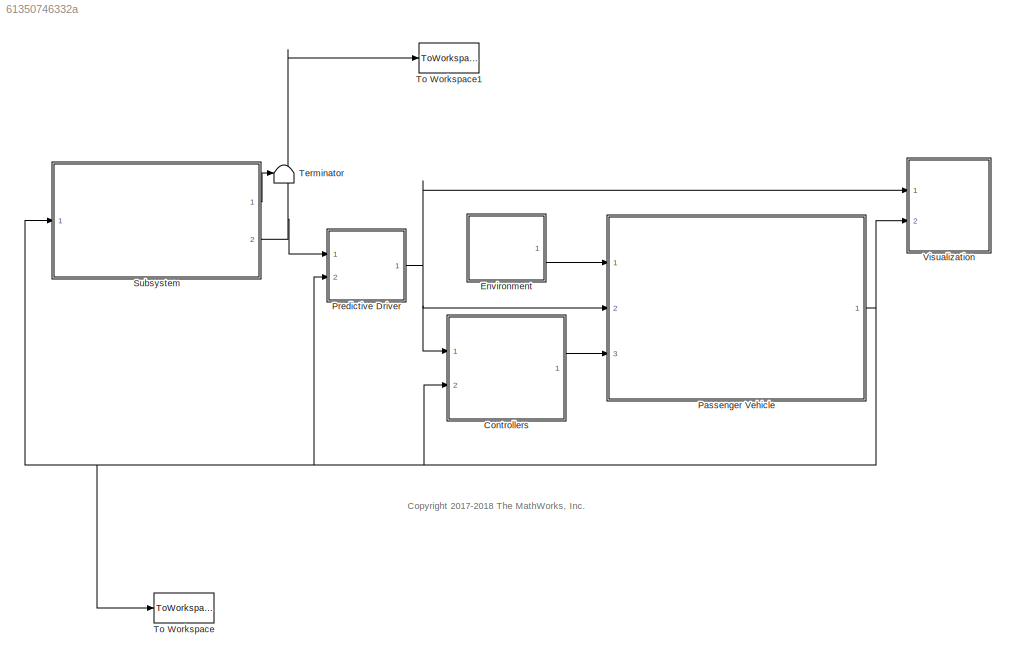
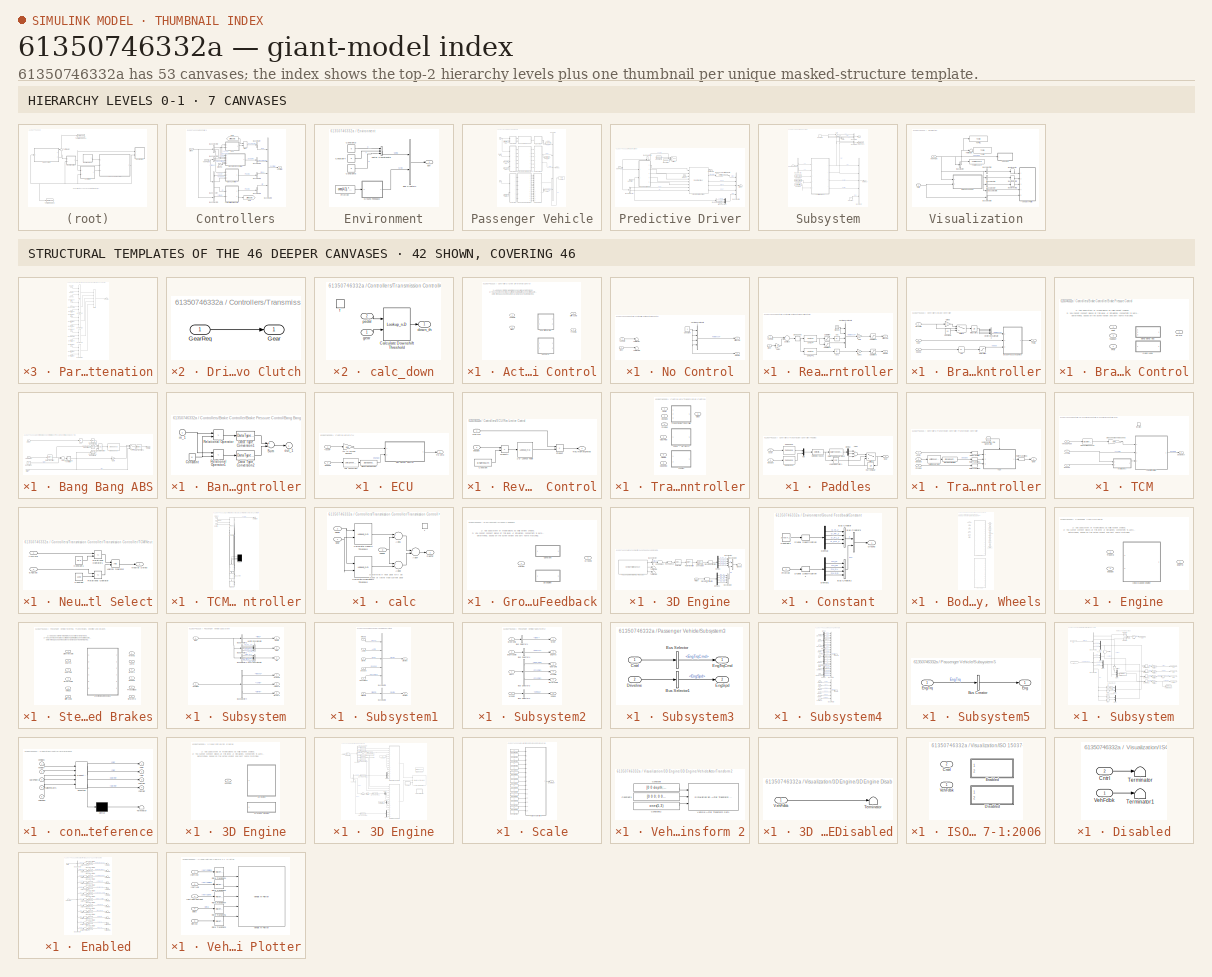
[diagram: thumbnail index - top-2 hierarchy levels (7 canvases) + 42 structural-template representatives of the remaining 46 canvases]
MODEL slx_61350746332a
KIND model
CONFIG AbsTol = auto
CONFIG EnableMultiTasking = on
CONFIG FixedStep = .05
CONFIG MaxStep = auto
CONFIG MinStep = auto
CONFIG RelTol = 1e-3
CONFIG SampleTimeConstraint = Unconstrained
CONFIG Solver = ode23tb
CONFIG SolverName = ode23tb
CONFIG StartFcn = %tic
CONFIG StartTime = 0.0
CONFIG StopFcn = %toc
CONFIG StopTime = inf
WORKSPACE source: mxarray member
WORKSPACE A_mu = 10
WORKSPACE B_reff = 8.386
WORKSPACE Cz = 7766.25
WORKSPACE DCT_Param: object (value not decoded)
WORKSPACE DLCXref = [0 6 7 14 33.5 34 42 50 60]
WORKSPACE DLCYref = [0 0 -4.5 -4 -3.75 1.5 0.5 0 0]
WORKSPACE D_reff = 0.25826
WORKSPACE Downshift_Speeds = [9.5625 12.9375 16.3125 19.6875 23.0625 26.4375 29.8125 33.1875 36.5625 39.9375 43.3125 46.6875 ... (28 elements, 4x7)]
WORKSPACE EngRevLim = 7000
WORKSPACE Pedal_Positions = [0.1 0.4 0.5 0.9]
WORKSPACE SUS: object (value not decoded)
WORKSPACE Upshift_Speeds = [12.9375 16.3125 19.6875 33 26.4375 29.8125 33.1875 52.5 39.9375 43.3125 46.6875 77.25 ... (28 elements, 4x7)]
WORKSPACE VEH: object (value not decoded)
WORKSPACE V_o = 16.7
WORKSPACE V_xlow = 1
WORKSPACE WH: object (value not decoded)
WORKSPACE a = 1.4
WORKSPACE alpha_max = 1.5
WORKSPACE alpha_min = -1.5
WORKSPACE b = 1.8
WORKSPACE c_zo = 209651
WORKSPACE epsilon = 0.1
WORKSPACE h = 0.134
WORKSPACE path: object (value not decoded)
WORKSPACE pio = 220000
WORKSPACE q_Fcx = 0
WORKSPACE q_Fz2 = 15.4
WORKSPACE q_Fzy = 0
WORKSPACE q_reo = 0.9974
WORKSPACE q_sx1 = -0.007764
WORKSPACE q_sx10 = 0.2824
WORKSPACE q_sx11 = 5.349
WORKSPACE q_sx12 = 0
WORKSPACE q_sx13 = 0
WORKSPACE q_sx14 = 0
WORKSPACE q_sx2 = 1.1915
WORKSPACE q_sx3 = 0.013948
WORKSPACE q_sx4 = 4.912
WORKSPACE q_sx5 = 1.02
WORKSPACE q_sx6 = 22.83
WORKSPACE q_sx7 = 0.7104
WORKSPACE q_sx8 = -0.023393
WORKSPACE q_sx9 = 0.6581
WORKSPACE q_sy1 = 0.00702
WORKSPACE q_sy2 = 0
WORKSPACE q_sy3 = 0.001515
WORKSPACE q_sy4 = 8.514e-05
WORKSPACE q_sy5 = 0
WORKSPACE q_sy6 = 0
WORKSPACE q_sy7 = 0.9008
WORKSPACE q_sy8 = -0.4089
WORKSPACE q_v1 = 0.0007742
WORKSPACE q_v2 = 0.04667
WORKSPACE r_Bx1 = 12.531
WORKSPACE r_Bx2 = 9.532
WORKSPACE r_Bx3 = 0
WORKSPACE r_By1 = 10.615
WORKSPACE r_By2 = 7.705
WORKSPACE r_By3 = 3.433e-06
WORKSPACE r_By4 = 0
WORKSPACE r_Cx1 = 1.019
WORKSPACE r_Cy1 = 1.0585
WORKSPACE r_Ex1 = -0.4487
WORKSPACE r_Ex2 = -0.4726
WORKSPACE r_Ey1 = 0.3132
WORKSPACE r_Ey2 = 7.63e-06
WORKSPACE r_Hx1 = 0.0002374
WORKSPACE r_Hy1 = 0.011646
WORKSPACE r_Hy2 = 7.63e-06
WORKSPACE r_Vy1 = 0.05654
WORKSPACE r_Vy2 = 7.63e-06
WORKSPACE r_Vy3 = 0
WORKSPACE r_Vy4 = 99.9
WORKSPACE r_Vy5 = 2
WORKSPACE r_Vy6 = 15.814
WORKSPACE r_o = 0.3135
WORKSPACE vehWidth = 2
WORKSPACE w = 1
BLOCK [SubSystem] Controllers
  Ports = [2, 1]
  RequestExecContextInheritance = off
BLOCK [SubSystem] Controllers/Active Differential Control
  LabelModeActiveChoice = 0
  Ports = [2, 2]
  RequestExecContextInheritance = off
  Variant = on
  VariantControlMode = Label
BLOCK [Outport] Controllers/Active Differential Control/DiffPrsCmd
  IconDisplay = Port number
  VectorParamsAs1DForOutWhenUnconnected = off
BLOCK [SubSystem] Controllers/Active Differential Control/No Control
  Ports = [2, 2]
  RequestExecContextInheritance = off
  VariantControl = 0
BLOCK [Constant] Controllers/Active Differential Control/No Control/Constant
  Value = 0
BLOCK [Outport] Controllers/Active Differential Control/No Control/DiffPrsCmd
  IconDisplay = Port number
  VectorParamsAs1DForOutWhenUnconnected = off
BLOCK [Inport] Controllers/Active Differential Control/No Control/Steer
  IconDisplay = Port number
  Port = 2
BLOCK [Terminator] Controllers/Active Differential Control/No Control/Terminator
BLOCK [Terminator] Controllers/Active Differential Control/No Control/Terminator1
BLOCK [Outport] Controllers/Active Differential Control/No Control/TrqCmd
  IconDisplay = Port number
  Port = 2
  VectorParamsAs1DForOutWhenUnconnected = off
BLOCK [Concatenate] Controllers/Active Differential Control/No Control/Vector Concatenate2
  NumInputs = 4
  Ports = [4, 1]
BLOCK [Inport] Controllers/Active Differential Control/No Control/YawRate
  IconDisplay = Port number
BLOCK [SubSystem] Controllers/Active Differential Control/Rear Diff Controller
  Ports = [2, 2]
  RequestExecContextInheritance = off
  VariantControl = 1
BLOCK [Abs] Controllers/Active Differential Control/Rear Diff Controller/Abs
  SaturateOnIntegerOverflow = off
  ZeroCross = off
BLOCK [Abs] Controllers/Active Differential Control/Rear Diff Controller/Abs1
  SaturateOnIntegerOverflow = off
  ZeroCross = off
BLOCK [Reference] Controllers/Active Differential Control/Rear Diff Controller/Cont LPF  REF=autolibutils/Cont LPF
  Ports = [1, 1]
  SourceBlock = autolibutils/Cont LPF
  SourceProductBaseCode = PW
  SourceProductName = Powertrain Blockset
BLOCK [Reference] Controllers/Active Differential Control/Rear Diff Controller/Cont LPF1  REF=autolibutils/Cont LPF
  Ports = [1, 1]
  SourceBlock = autolibutils/Cont LPF
  SourceProductBaseCode = PW
  SourceProductName = Powertrain Blockset
BLOCK [DeadZone] Controllers/Active Differential Control/Rear Diff Controller/Dead Zone
  LowerValue = -.01
  UpperValue = .01
  ZeroCross = off
BLOCK [Outport] Controllers/Active Differential Control/Rear Diff Controller/DiffPrsCmd
  IconDisplay = Port number
  VectorParamsAs1DForOutWhenUnconnected = off
BLOCK [Gain] Controllers/Active Differential Control/Rear Diff Controller/Gain
  Gain = 1e6
  OutDataTypeStr = Inherit: Inherit via internal rule
  ParamDataTypeStr = Inherit: Inherit via internal rule
  SaturateOnIntegerOverflow = off
BLOCK [Gain] Controllers/Active Differential Control/Rear Diff Controller/Gain2
  Gain = 1/4
  OutDataTypeStr = Inherit: Inherit via internal rule
  ParamDataTypeStr = Inherit: Inherit via internal rule
  SaturateOnIntegerOverflow = off
BLOCK [Gain] Controllers/Active Differential Control/Rear Diff Controller/Gain3
  Gain = 2e3
  OutDataTypeStr = Inherit: Inherit via internal rule
  ParamDataTypeStr = Inherit: Inherit via internal rule
  SaturateOnIntegerOverflow = off
BLOCK [Ground] Controllers/Active Differential Control/Rear Diff Controller/Ground
BLOCK [Saturate] Controllers/Active Differential Control/Rear Diff Controller/Saturation
  InputPortMap = u0
  LowerLimit = -inf
  Ports = [1, 1]
  UpperLimit = 0
  ZeroCross = off
BLOCK [Saturate] Controllers/Active Differential Control/Rear Diff Controller/Saturation1
  InputPortMap = u0
  LowerLimit = 0
  Ports = [1, 1]
  UpperLimit = inf
  ZeroCross = off
BLOCK [Saturate] Controllers/Active Differential Control/Rear Diff Controller/Saturation2
  InputPortMap = u0
  LowerLimit = 0
  Ports = [1, 1]
  UpperLimit = 1e7
  ZeroCross = off
BLOCK [Saturate] Controllers/Active Differential Control/Rear Diff Controller/Saturation3
  InputPortMap = u0
  LowerLimit = 0
  Ports = [1, 1]
  UpperLimit = 200
  ZeroCross = off
BLOCK [Inport] Controllers/Active Differential Control/Rear Diff Controller/Steer
  IconDisplay = Port number
  Port = 2
BLOCK [Sum] Controllers/Active Differential Control/Rear Diff Controller/Subtract
  InputSameDT = off
  Inputs = +-
  OutDataTypeStr = Inherit: Inherit via internal rule
  Ports = [2, 1]
  SaturateOnIntegerOverflow = off
BLOCK [Outport] Controllers/Active Differential Control/Rear Diff Controller/TrqCmd
  IconDisplay = Port number
  Port = 2
  VectorParamsAs1DForOutWhenUnconnected = off
BLOCK [Concatenate] Controllers/Active Differential Control/Rear Diff Controller/Vector Concatenate2
  NumInputs = 4
  Ports = [4, 1]
BLOCK [Inport] Controllers/Active Differential Control/Rear Diff Controller/YawRate
  IconDisplay = Port number
BLOCK [Inport] Controllers/Active Differential Control/Steer
  IconDisplay = Port number
  Port = 2
BLOCK [Outport] Controllers/Active Differential Control/TrqCmd
  IconDisplay = Port number
  Port = 2
  VectorParamsAs1DForOutWhenUnconnected = off
BLOCK [Inport] Controllers/Active Differential Control/YawRate
  IconDisplay = Port number
BLOCK [SubSystem] Controllers/Brake Controller
  Ports = [3, 1]
  RequestExecContextInheritance = off
BLOCK [Abs] Controllers/Brake Controller/Abs
  SaturateOnIntegerOverflow = off
  ZeroCross = off
BLOCK [SubSystem] Controllers/Brake Controller/Brake Pressure Control
  LabelModeActiveChoice = 0
  Ports = [3, 1]
  RequestExecContextInheritance = off
  Variant = on
  VariantControlMode = Label
BLOCK [Inport] Controllers/Brake Controller/Brake Pressure Control/<Kappa>
  IconDisplay = Port number
  Port = 3
BLOCK [SubSystem] Controllers/Brake Controller/Brake Pressure Control/Bang Bang ABS
  Ports = [3, 1]
  RequestExecContextInheritance = off
  VariantControl = 1
BLOCK [Inport] Controllers/Brake Controller/Brake Pressure Control/Bang Bang ABS/<Kappa>
  IconDisplay = Port number
  Port = 3
BLOCK [Abs] Controllers/Brake Controller/Brake Pressure Control/Bang Bang ABS/Abs
  SaturateOnIntegerOverflow = off
BLOCK [Sum] Controllers/Brake Controller/Brake Pressure Control/Bang Bang ABS/Add
  InputSameDT = off
  Inputs = -+
  OutDataTypeStr = Inherit: Inherit via internal rule
  Ports = [2, 1]
  SaturateOnIntegerOverflow = off
BLOCK [SubSystem] Controllers/Brake Controller/Brake Pressure Control/Bang Bang ABS/Bang-bang controller
  Ports = [1, 1]
  RequestExecContextInheritance = off
  ShowPortLabels = none
BLOCK [Constant] Controllers/Brake Controller/Brake Pressure Control/Bang Bang ABS/Bang-bang controller/Constant
  Value = 0
BLOCK [DataTypeConversion] Controllers/Brake Controller/Brake Pressure Control/Bang Bang ABS/Bang-bang controller/Data Type Conversion1
  OutDataTypeStr = double
BLOCK [DataTypeConversion] Controllers/Brake Controller/Brake Pressure Control/Bang Bang ABS/Bang-bang controller/Data Type Conversion2
  OutDataTypeStr = double
BLOCK [RelationalOperator] Controllers/Brake Controller/Brake Pressure Control/Bang Bang ABS/Bang-bang controller/Relational Operator
  Operator = >
  OutDataTypeStr = boolean
  Ports = [2, 1]
BLOCK [RelationalOperator] Controllers/Brake Controller/Brake Pressure Control/Bang Bang ABS/Bang-bang controller/Relational Operator1
  Operator = <
  OutDataTypeStr = boolean
  Ports = [2, 1]
BLOCK [Sum] Controllers/Brake Controller/Brake Pressure Control/Bang Bang ABS/Bang-bang controller/Sum
  Inputs = +-
  Ports = [2, 1]
BLOCK [Inport] Controllers/Brake Controller/Brake Pressure Control/Bang Bang ABS/Bang-bang controller/in_1
  IconDisplay = Port number
BLOCK [Outport] Controllers/Brake Controller/Brake Pressure Control/Bang Bang ABS/Bang-bang controller/out_1
  IconDisplay = Port number
  InitialOutput = 0
  VectorParamsAs1DForOutWhenUnconnected = off
BLOCK [Reference] Controllers/Brake Controller/Brake Pressure Control/Bang Bang ABS/Compare To Constant  REF=simulink/Logic and Bit
Operations/Compare
To Constant
  Ports = [1, 1]
  SourceBlock = simulink/Logic and Bit\nOperations/Compare\nTo Constant
  SourceProductBaseCode = SL
  SourceProductName = Simulink
  SourceType = Compare To Constant
BLOCK [Reference] Controllers/Brake Controller/Brake Pressure Control/Bang Bang ABS/Compare To Constant1  REF=simulink/Logic and Bit
Operations/Compare
To Constant
  Ports = [1, 1]
  SourceBlock = simulink/Logic and Bit\nOperations/Compare\nTo Constant
  SourceProductBaseCode = SL
  SourceProductName = Simulink
  SourceType = Compare To Constant
BLOCK [Reference] Controllers/Brake Controller/Brake Pressure Control/Bang Bang ABS/Compare To Constant2  REF=simulink/Logic and Bit
Operations/Compare
To Constant
  Ports = [1, 1]
  SourceBlock = simulink/Logic and Bit\nOperations/Compare\nTo Constant
  SourceProductBaseCode = SL
  SourceProductName = Simulink
  SourceType = Compare To Constant
BLOCK [Constant] Controllers/Brake Controller/Brake Pressure Control/Bang Bang ABS/Constant
  Value = .25
BLOCK [Reference] Controllers/Brake Controller/Brake Pressure Control/Bang Bang ABS/Debounce  REF=autolibutils/Debounce
  Ports = [1, 1]
  SourceBlock = autolibutils/Debounce
  SourceProductBaseCode = PW
  SourceProductName = Powertrain Blockset
BLOCK [Gain] Controllers/Brake Controller/Brake Pressure Control/Bang Bang ABS/Gain
  Gain = 200
  OutDataTypeStr = Inherit: Inherit via internal rule
  ParamDataTypeStr = Inherit: Inherit via internal rule
  SaturateOnIntegerOverflow = off
BLOCK [Logic] Controllers/Brake Controller/Brake Pressure Control/Bang Bang ABS/Logical Operator
  AllPortsSameDT = off
  Inputs = 3
  OutDataTypeStr = boolean
  Ports = [3, 1]
BLOCK [Outport] Controllers/Brake Controller/Brake Pressure Control/Bang Bang ABS/PCmd
  IconDisplay = Port number
  VectorParamsAs1DForOutWhenUnconnected = off
BLOCK [Inport] Controllers/Brake Controller/Brake Pressure Control/Bang Bang ABS/Pref
  IconDisplay = Port number
BLOCK [RateTransition] Controllers/Brake Controller/Brake Pressure Control/Bang Bang ABS/Rate Transition
  Deterministic = off
  OutPortSampleTime = .001
BLOCK [RateTransition] Controllers/Brake Controller/Brake Pressure Control/Bang Bang ABS/Rate Transition1
  Deterministic = off
BLOCK [Switch] Controllers/Brake Controller/Brake Pressure Control/Bang Bang ABS/Switch
  Criteria = u2 > Threshold
  InputSameDT = off
  SaturateOnIntegerOverflow = off
  ZeroCross = off
BLOCK [Inport] Controllers/Brake Controller/Brake Pressure Control/Bang Bang ABS/xdot
  IconDisplay = Port number
  Port = 2
BLOCK [SubSystem] Controllers/Brake Controller/Brake Pressure Control/Open Loop
  Ports = [1, 1]
  RequestExecContextInheritance = off
  VariantControl = 0
BLOCK [Outport] Controllers/Brake Controller/Brake Pressure Control/Open Loop/PCmd
  IconDisplay = Port number
  VectorParamsAs1DForOutWhenUnconnected = off
BLOCK [Inport] Controllers/Brake Controller/Brake Pressure Control/Open Loop/Pref
  IconDisplay = Port number
BLOCK [Outport] Controllers/Brake Controller/Brake Pressure Control/PCmd
  IconDisplay = Port number
  VectorParamsAs1DForOutWhenUnconnected = off
BLOCK [Inport] Controllers/Brake Controller/Brake Pressure Control/Pref
  IconDisplay = Port number
BLOCK [Inport] Controllers/Brake Controller/Brake Pressure Control/xdot
  IconDisplay = Port number
  Port = 2
BLOCK [Inport] Controllers/Brake Controller/BrkCmd
  IconDisplay = Port number
BLOCK [Constant] Controllers/Brake Controller/Constant1
  Value = -20
BLOCK [Gain] Controllers/Brake Controller/Gain3
  OutDataTypeStr = Inherit: Inherit via internal rule
  ParamDataTypeStr = Inherit: Inherit via internal rule
  SaturateOnIntegerOverflow = off
BLOCK [Integrator] Controllers/Brake Controller/Integrator2
  LimitOutput = on
  LowerSaturationLimit = 0
  Ports = [1, 1]
  UpperSaturationLimit = 1
BLOCK [Outport] Controllers/Brake Controller/PCmd
  IconDisplay = Port number
  VectorParamsAs1DForOutWhenUnconnected = off
BLOCK [Saturate] Controllers/Brake Controller/Saturation
  InputPortMap = u0
  LowerLimit = 0
  Ports = [1, 1]
  UpperLimit = 1
  ZeroCross = off
BLOCK [Switch] Controllers/Brake Controller/Switch1
  Criteria = u2 > Threshold
  InputSameDT = off
  SaturateOnIntegerOverflow = off
  Threshold = .1
BLOCK [Concatenate] Controllers/Brake Controller/Vector Concatenate2
  NumInputs = 4
  Ports = [4, 1]
BLOCK [Inport] Controllers/Brake Controller/kappa
  IconDisplay = Port number
  Port = 3
BLOCK [Inport] Controllers/Brake Controller/xdot
  IconDisplay = Port number
  Port = 2
BLOCK [BusCreator] Controllers/Bus Creator
  DisplayOption = bar
  InheritFromInputs = on
  Inputs = 1
  Ports = [1, 1]
BLOCK [BusCreator] Controllers/Bus Creator1
  DisplayOption = bar
  InheritFromInputs = on
  Inputs = 1
  Ports = [1, 1]
BLOCK [BusCreator] Controllers/Bus Creator2
  DisplayOption = bar
  InheritFromInputs = on
  Inputs = 1
  Ports = [1, 1]
BLOCK [BusCreator] Controllers/Bus Creator3
  DisplayOption = bar
  InheritFromInputs = on
  Inputs = 4
  Ports = [4, 1]
BLOCK [BusCreator] Controllers/Bus Creator4
  DisplayOption = bar
  InheritFromInputs = on
  Inputs = 1
  Ports = [1, 1]
BLOCK [BusSelector] Controllers/Bus Selector
  OutputAsBus = off
  OutputSignals = Body.xdot,Wheels.kappa,Body.r
  Ports = [1, 3]
BLOCK [BusSelector] Controllers/Bus Selector1
  OutputAsBus = off
  OutputSignals = Driveline.EngSpd,Driveline.PropShftSpd
  Ports = [1, 2]
BLOCK [BusSelector] Controllers/Bus Selector2
  OutputAsBus = off
  OutputSignals = Accel,Gear,Brake
  Ports = [1, 3]
BLOCK [BusSelector] Controllers/Bus Selector3
  OutputAsBus = off
  OutputSignals = Steer
  Ports = [1, 1]
BLOCK [Outport] Controllers/Controller
  IconDisplay = Port number
  VectorParamsAs1DForOutWhenUnconnected = off
BLOCK [Inport] Controllers/Driver
  IconDisplay = Port number
BLOCK [SubSystem] Controllers/ECU
  Ports = [2, 1]
  RequestExecContextInheritance = off
BLOCK [Inport] Controllers/ECU/<Accel>
  IconDisplay = Port number
BLOCK [Gain] Controllers/ECU/Acc to Torque Request
  Gain = 150
  OutDataTypeStr = Inherit: Inherit via internal rule
  ParamDataTypeStr = Inherit: Inherit via internal rule
  SaturateOnIntegerOverflow = off
BLOCK [Inport] Controllers/ECU/EngSpd
  IconDisplay = Port number
  Port = 2
BLOCK [SubSystem] Controllers/ECU/Rev Limiter Control
  Ports = [2, 1]
  RequestExecContextInheritance = off
BLOCK [Lookup_n-D] Controllers/ECU/Rev Limiter Control/1-D Lookup Table
  BreakpointsForDimension1 = [1 1.01]
  ExtrapMethod = Clip
  InternalRulePriority = Speed
  NumberOfTableDimensions = 1
  Ports = [1, 1]
  RndMeth = Simplest
  Table = [1 0]
BLOCK [Constant] Controllers/ECU/Rev Limiter Control/Constant
  Value = EngRevLim
BLOCK [Inport] Controllers/ECU/Rev Limiter Control/EngSpd
  IconDisplay = Port number
  Port = 2
BLOCK [Product] Controllers/ECU/Rev Limiter Control/Product
  InputSameDT = off
  OutDataTypeStr = Inherit: Inherit via internal rule
  Ports = [2, 1]
  RndMeth = Floor
  SaturateOnIntegerOverflow = off
BLOCK [Product] Controllers/ECU/Rev Limiter Control/Product1
  InputSameDT = off
  Inputs = */
  OutDataTypeStr = Inherit: Inherit via internal rule
  Ports = [2, 1]
  RndMeth = Floor
  SaturateOnIntegerOverflow = off
BLOCK [Inport] Controllers/ECU/Rev Limiter Control/TrqCmd
  IconDisplay = Port number
BLOCK [Outport] Controllers/ECU/Rev Limiter Control/TrqCmdRevLimited
  IconDisplay = Port number
  VectorParamsAs1DForOutWhenUnconnected = off
BLOCK [SignalSpecification] Controllers/ECU/Signal Specification
  Unit = rpm
BLOCK [Outport] Controllers/ECU/Trq Cmd
  IconDisplay = Port number
  VectorParamsAs1DForOutWhenUnconnected = off
BLOCK [UnitConversion] Controllers/ECU/Unit Conversion
BLOCK [From] Controllers/From
  GotoTag = DiffTrqCmd
BLOCK [Goto] Controllers/Goto
  GotoTag = DiffTrqCmd
BLOCK [Ground] Controllers/Ground
BLOCK [MinMax] Controllers/Max
  Function = max
  InputSameDT = off
  Inputs = 2
  Ports = [2, 1]
  SaturateOnIntegerOverflow = off
BLOCK [SubSystem] Controllers/Transmission Controller
  LabelModeActiveChoice = 0
  Ports = [6, 1]
  RequestExecContextInheritance = off
  Variant = on
  VariantControl = Variant1
  VariantControlMode = Label
BLOCK [Outport] Controllers/Transmission Controller/ Gear
  IconDisplay = Port number
  VectorParamsAs1DForOutWhenUnconnected = off
BLOCK [Inport] Controllers/Transmission Controller/Accel
  IconDisplay = Port number
BLOCK [Inport] Controllers/Transmission Controller/DownReq
  IconDisplay = Port number
  Port = 6
  Unit = rad/s
BLOCK [SubSystem] Controllers/Transmission Controller/Driver - No Clutch
  Ports = [1, 1]
  RequestExecContextInheritance = off
  VariantControl = 1
BLOCK [Outport] Controllers/Transmission Controller/Driver - No Clutch/Gear
  IconDisplay = Port number
  VectorParamsAs1DForOutWhenUnconnected = off
BLOCK [Inport] Controllers/Transmission Controller/Driver - No Clutch/GearReq
  IconDisplay = Port number
BLOCK [Inport] Controllers/Transmission Controller/EngSpd
  IconDisplay = Port number
  Port = 3
BLOCK [Inport] Controllers/Transmission Controller/GearReq
  IconDisplay = Port number
  Port = 2
BLOCK [SubSystem] Controllers/Transmission Controller/Paddles
  Ports = [2, 1]
  RequestExecContextInheritance = off
  VariantControl = 2
BLOCK [Inport] Controllers/Transmission Controller/Paddles/Accel
  IconDisplay = Port number
BLOCK [Sum] Controllers/Transmission Controller/Paddles/Add1
  InputSameDT = off
  Inputs = +-+
  OutDataTypeStr = Inherit: Inherit via internal rule
  Ports = [3, 1]
  SaturateOnIntegerOverflow = off
BLOCK [UnitDelay] Controllers/Transmission Controller/Paddles/Current Gear
  HasFrameUpgradeWarning = on
  SampleTime = -1
BLOCK [DataTypeConversion] Controllers/Transmission Controller/Paddles/Data Type Conversion2
  OutDataTypeStr = double
  RndMeth = Floor
  SaturateOnIntegerOverflow = off
BLOCK [Reference] Controllers/Transmission Controller/Paddles/Debounce  REF=autolibutils/Debounce
  Ports = [1, 1]
  SourceBlock = autolibutils/Debounce
  SourceProductBaseCode = PW
  SourceProductName = Powertrain Blockset
BLOCK [Reference] Controllers/Transmission Controller/Paddles/Debounce1  REF=autolibutils/Debounce
  Ports = [1, 1]
  SourceBlock = autolibutils/Debounce
  SourceProductBaseCode = PW
  SourceProductName = Powertrain Blockset
BLOCK [Demux] Controllers/Transmission Controller/Paddles/Demux
  DisplayOption = bar
  Outputs = 2
  Ports = [1, 2]
BLOCK [Reference] Controllers/Transmission Controller/Paddles/Detect Increase2  REF=simulink/Logic and Bit
Operations/Detect
Increase
  Ports = [1, 1]
  SourceBlock = simulink/Logic and Bit\nOperations/Detect\nIncrease
  SourceProductBaseCode = SL
  SourceProductName = Simulink
  SourceType = Detect Increase
BLOCK [Inport] Controllers/Transmission Controller/Paddles/EngSpd
  IconDisplay = Port number
  Port = 2
  Unit = rad/s
BLOCK [Outport] Controllers/Transmission Controller/Paddles/Gear
  IconDisplay = Port number
  VectorParamsAs1DForOutWhenUnconnected = off
BLOCK [Logic] Controllers/Transmission Controller/Paddles/Logical Operator1
  AllPortsSameDT = off
  Inputs = 1
  Operator = XOR
  OutDataTypeStr = boolean
  Ports = [1, 1]
BLOCK [Mux] Controllers/Transmission Controller/Paddles/Mux
  DisplayOption = bar
  Inputs = 2
  Ports = [2, 1]
BLOCK [Switch] Controllers/Transmission Controller/Paddles/Switch2
  Criteria = u2 > Threshold
  InputSameDT = off
  SaturateOnIntegerOverflow = off
BLOCK [Inport] Controllers/Transmission Controller/PrpSpd
  IconDisplay = Port number
  Port = 4
BLOCK [SubSystem] Controllers/Transmission Controller/Transmission Controller
  Ports = [3, 1]
  RequestExecContextInheritance = off
  VariantControl = 0
BLOCK [Reference] Controllers/Transmission Controller/Transmission Controller/10ms Function-Call Generator  REF=simulink/Ports &
Subsystems/Function-Call
Generator
  Ports = [0, 1]
  SourceBlock = simulink/Ports &\nSubsystems/Function-Call\nGenerator
  SourceProductBaseCode = SL
  SourceProductName = Simulink
  SourceType = Function-Call Generator
BLOCK [Inport] Controllers/Transmission Controller/Transmission Controller/Accel
  IconDisplay = Port number
BLOCK [Inport] Controllers/Transmission Controller/Transmission Controller/EngSpd
  IconDisplay = Port number
  Port = 2
  Unit = rad/s
BLOCK [Outport] Controllers/Transmission Controller/Transmission Controller/Gear
  IconDisplay = Port number
  VectorParamsAs1DForOutWhenUnconnected = off
BLOCK [Inport] Controllers/Transmission Controller/Transmission Controller/PrpSpd
  IconDisplay = Port number
  Port = 3
BLOCK [RateTransition] Controllers/Transmission Controller/Transmission Controller/Rate Transition
  Deterministic = off
BLOCK [RateTransition] Controllers/Transmission Controller/Transmission Controller/Rate Transition1
  Deterministic = off
BLOCK [RateTransition] Controllers/Transmission Controller/Transmission Controller/Rate Transition2
  Deterministic = off
BLOCK [RateTransition] Controllers/Transmission Controller/Transmission Controller/Rate Transition3
BLOCK [SignalSpecification] Controllers/Transmission Controller/Transmission Controller/Signal Specification
  Unit = rpm
BLOCK [SubSystem] Controllers/Transmission Controller/Transmission Controller/TCM
  Ports = [3, 1, 0, 1]
  RequestExecContextInheritance = off
BLOCK [Inport] Controllers/Transmission Controller/Transmission Controller/TCM/AccCmd
  IconDisplay = Port number
BLOCK [Inport] Controllers/Transmission Controller/Transmission Controller/TCM/EngSpd
  IconDisplay = Port number
  Port = 2
BLOCK [Outport] Controllers/Transmission Controller/Transmission Controller/TCM/Gear Select
  IconDisplay = Port number
  VectorParamsAs1DForOutWhenUnconnected = off
BLOCK [SubSystem] Controllers/Transmission Controller/Transmission Controller/TCM/Neutral Select
  Ports = [2, 1]
  RequestExecContextInheritance = off
BLOCK [Inport] Controllers/Transmission Controller/Transmission Controller/TCM/Neutral Select/AccCmd
  IconDisplay = Port number
BLOCK [Constant] Controllers/Transmission Controller/Transmission Controller/TCM/Neutral Select/Constant
  Value = 1200
BLOCK [Constant] Controllers/Transmission Controller/Transmission Controller/TCM/Neutral Select/Constant1
  Value = 1e-6
BLOCK [Inport] Controllers/Transmission Controller/Transmission Controller/TCM/Neutral Select/EngSpd
  IconDisplay = Port number
  Port = 2
BLOCK [Logic] Controllers/Transmission Controller/Transmission Controller/TCM/Neutral Select/Logical Operator
  AllPortsSameDT = off
  OutDataTypeStr = boolean
  Ports = [2, 1]
BLOCK [Outport] Controllers/Transmission Controller/Transmission Controller/TCM/Neutral Select/Neutral Select
  IconDisplay = Port number
  VectorParamsAs1DForOutWhenUnconnected = off
BLOCK [RelationalOperator] Controllers/Transmission Controller/Transmission Controller/TCM/Neutral Select/Relational Operator
  InputSameDT = off
  Operator = <=
  OutDataTypeStr = boolean
  Ports = [2, 1]
  RndMeth = Simplest
BLOCK [RelationalOperator] Controllers/Transmission Controller/Transmission Controller/TCM/Neutral Select/Relational Operator1
  InputSameDT = off
  Operator = <=
  OutDataTypeStr = boolean
  Ports = [2, 1]
  RndMeth = Simplest
BLOCK [DiscreteTransferFcn] Controllers/Transmission Controller/Transmission Controller/TCM/Prop Shaft Speed LPF
  Denominator = [1.000000000000000 -0.990049833749168 ]
  InputPortMap = u0
  Numerator = [0.000000000000000 0.009950166250832 ]
  Ports = [1, 1]
BLOCK [SubSystem] Controllers/Transmission Controller/Transmission Controller/TCM/TCM Shift Controller
  ErrorFcn = Stateflow.Translate.translate
  PermitHierarchicalResolution = ExplicitOnly
  Ports = [3, 1]
  RequestExecContextInheritance = off
  SFBlockType = Chart
  TreatAsAtomicUnit = on
BLOCK [Demux] Controllers/Transmission Controller/Transmission Controller/TCM/TCM Shift Controller/ Demux 
  Outputs = 3
  Ports = [1, 3]
BLOCK [S-Function] Controllers/Transmission Controller/Transmission Controller/TCM/TCM Shift Controller/ SFunction 
  EnableBusSupport = on
  FunctionName = sf_sfun
  PortCounts = [6 9]
  Ports = [6, 9]
  SFcnIsStateOwnerBlock = off
  SFunctionDeploymentMode = off
  Tag = Stateflow S-Function 1
BLOCK [Outport] Controllers/Transmission Controller/Transmission Controller/TCM/TCM Shift Controller/GearState
  IconDisplay = Port number
  VectorParamsAs1DForOutWhenUnconnected = off
BLOCK [Inport] Controllers/Transmission Controller/Transmission Controller/TCM/TCM Shift Controller/Neutral
  IconDisplay = Port number
  Port = 3
BLOCK [SubSystem] Controllers/Transmission Controller/Transmission Controller/TCM/TCM Shift Controller/calc
  Ports = [3, 1, 0, 1]
  PreDeleteFcn = Stateflow.SLINSF.SimulinkMan.removePreDeleteFcn
  RequestExecContextInheritance = off
  UndoDeleteFcn = Stateflow.SLINSF.SimulinkMan.restorePreDeleteFcn
BLOCK [Sum] Controllers/Transmission Controller/Transmission Controller/TCM/TCM Shift Controller/calc/Add1
  InputSameDT = off
  Inputs = +-
  OutDataTypeStr = Inherit: Inherit via internal rule
  Ports = [2, 1]
  SaturateOnIntegerOverflow = off
BLOCK [Sum] Controllers/Transmission Controller/Transmission Controller/TCM/TCM Shift Controller/calc/Add3
  InputSameDT = off
  Inputs = +-
  OutDataTypeStr = Inherit: Inherit via internal rule
  Ports = [2, 1]
  SaturateOnIntegerOverflow = off
BLOCK [Sum] Controllers/Transmission Controller/Transmission Controller/TCM/TCM Shift Controller/calc/Add4
  InputSameDT = off
  Inputs = +-
  OutDataTypeStr = Inherit: Inherit via internal rule
  Ports = [2, 1]
  SaturateOnIntegerOverflow = off
BLOCK [Lookup_n-D] Controllers/Transmission Controller/Transmission Controller/TCM/TCM Shift Controller/calc/Calculate Downshift Threshold
  BreakpointsForDimension1 = Pedal_Positions
  BreakpointsForDimension2 = 2:8
  ExtrapMethod = Clip
  InternalRulePriority = Speed
  Ports = [2, 1]
  RndMeth = Simplest
  Table = Downshift_Speeds
  UseLastTableValue = on
BLOCK [Lookup_n-D] Controllers/Transmission Controller/Transmission Controller/TCM/TCM Shift Controller/calc/Calculate Upshift Threshold
  BreakpointsForDimension1 = Pedal_Positions
  BreakpointsForDimension2 = 1:7
  ExtrapMethod = Clip
  InternalRulePriority = Speed
  Ports = [2, 1]
  RndMeth = Simplest
  Table = Upshift_Speeds
  UseLastTableValue = on
BLOCK [Outport] Controllers/Transmission Controller/Transmission Controller/TCM/TCM Shift Controller/calc/SpdThr
  IconDisplay = Port number
  VectorParamsAs1DForOutWhenUnconnected = off
BLOCK [TriggerPort] Controllers/Transmission Controller/Transmission Controller/TCM/TCM Shift Controller/calc/f
  CopyFcn = Stateflow.SLINSF.SimulinkMan.removeBlockPreDeleteFcn
  Ports = []
  PreDeleteFcn = Stateflow.SLINSF.SimulinkMan.unsafePredeleteFcn
  StatesWhenEnabling = reset
  TriggerType = function-call
  VariantControl = Variant
BLOCK [Inport] Controllers/Transmission Controller/Transmission Controller/TCM/TCM Shift Controller/calc/gear
  IconDisplay = Port number
BLOCK [Inport] Controllers/Transmission Controller/Transmission Controller/TCM/TCM Shift Controller/calc/pedal
  IconDisplay = Port number
  Port = 2
BLOCK [Inport] Controllers/Transmission Controller/Transmission Controller/TCM/TCM Shift Controller/calc/speed
  IconDisplay = Port number
  Port = 3
BLOCK [SubSystem] Controllers/Transmission Controller/Transmission Controller/TCM/TCM Shift Controller/calc_down
  Ports = [2, 1, 0, 1]
  PreDeleteFcn = Stateflow.SLINSF.SimulinkMan.removePreDeleteFcn
  RequestExecContextInheritance = off
  UndoDeleteFcn = Stateflow.SLINSF.SimulinkMan.restorePreDeleteFcn
BLOCK [Lookup_n-D] Controllers/Transmission Controller/Transmission Controller/TCM/TCM Shift Controller/calc_down/Calculate Downshift Threshold
  BreakpointsForDimension1 = Pedal_Positions
  BreakpointsForDimension2 = 2:8
  ExtrapMethod = Clip
  InternalRulePriority = Speed
  Ports = [2, 1]
  RndMeth = Simplest
  Table = Downshift_Speeds
  UseLastTableValue = on
BLOCK [Outport] Controllers/Transmission Controller/Transmission Controller/TCM/TCM Shift Controller/calc_down/down_th
  IconDisplay = Port number
  VectorParamsAs1DForOutWhenUnconnected = off
BLOCK [TriggerPort] Controllers/Transmission Controller/Transmission Controller/TCM/TCM Shift Controller/calc_down/f
  CopyFcn = Stateflow.SLINSF.SimulinkMan.removeBlockPreDeleteFcn
  Ports = []
  PreDeleteFcn = Stateflow.SLINSF.SimulinkMan.unsafePredeleteFcn
  StatesWhenEnabling = reset
  TriggerType = function-call
  VariantControl = Variant
BLOCK [Inport] Controllers/Transmission Controller/Transmission Controller/TCM/TCM Shift Controller/calc_down/gear
  IconDisplay = Port number
BLOCK [Inport] Controllers/Transmission Controller/Transmission Controller/TCM/TCM Shift Controller/calc_down/pedal
  IconDisplay = Port number
  Port = 2
BLOCK [SubSystem] Controllers/Transmission Controller/Transmission Controller/TCM/TCM Shift Controller/calc_up
  Ports = [2, 1, 0, 1]
  PreDeleteFcn = Stateflow.SLINSF.SimulinkMan.removePreDeleteFcn
  RequestExecContextInheritance = off
  UndoDeleteFcn = Stateflow.SLINSF.SimulinkMan.restorePreDeleteFcn
BLOCK [Lookup_n-D] Controllers/Transmission Controller/Transmission Controller/TCM/TCM Shift Controller/calc_up/Calculate Upshift Threshold
  BreakpointsForDimension1 = Pedal_Positions
  BreakpointsForDimension2 = 1:7
  ExtrapMethod = Clip
  InternalRulePriority = Speed
  Ports = [2, 1]
  RndMeth = Simplest
  Table = Upshift_Speeds
  UseLastTableValue = on
BLOCK [TriggerPort] Controllers/Transmission Controller/Transmission Controller/TCM/TCM Shift Controller/calc_up/f
  CopyFcn = Stateflow.SLINSF.SimulinkMan.removeBlockPreDeleteFcn
  Ports = []
  PreDeleteFcn = Stateflow.SLINSF.SimulinkMan.unsafePredeleteFcn
  StatesWhenEnabling = reset
  TriggerType = function-call
  VariantControl = Variant
BLOCK [Inport] Controllers/Transmission Controller/Transmission Controller/TCM/TCM Shift Controller/calc_up/gear
  IconDisplay = Port number
BLOCK [Inport] Controllers/Transmission Controller/Transmission Controller/TCM/TCM Shift Controller/calc_up/pedal
  IconDisplay = Port number
  Port = 2
BLOCK [Outport] Controllers/Transmission Controller/Transmission Controller/TCM/TCM Shift Controller/calc_up/up_th
  IconDisplay = Port number
  VectorParamsAs1DForOutWhenUnconnected = off
BLOCK [Inport] Controllers/Transmission Controller/Transmission Controller/TCM/TCM Shift Controller/pedal
  IconDisplay = Port number
  Port = 2
BLOCK [Inport] Controllers/Transmission Controller/Transmission Controller/TCM/TCM Shift Controller/speed
  IconDisplay = Port number
BLOCK [Inport] Controllers/Transmission Controller/Transmission Controller/TCM/VehSpdFdbk
  IconDisplay = Port number
  Port = 3
BLOCK [TriggerPort] Controllers/Transmission Controller/Transmission Controller/TCM/function
  Ports = []
  StatesWhenEnabling = held
  TriggerType = function-call
  VariantControl = Variant
BLOCK [Gain] Controllers/Transmission Controller/Transmission Controller/TCM/prop speed to vehicle speed
  Gain = 0.45
  OutDataTypeStr = Inherit: Inherit via internal rule
  ParamDataTypeStr = Inherit: Inherit via internal rule
  SaturateOnIntegerOverflow = off
BLOCK [UnitConversion] Controllers/Transmission Controller/Transmission Controller/Unit Conversion
BLOCK [Inport] Controllers/Transmission Controller/UpReq
  IconDisplay = Port number
  Port = 5
BLOCK [Inport] Controllers/VehFdbk
  IconDisplay = Port number
  Port = 2
BLOCK [SubSystem] Environment
  Ports = [0, 1]
  RequestExecContextInheritance = off
BLOCK [BusCreator] Environment/Bus Creator1
  DisplayOption = bar
  InheritFromInputs = on
  Inputs = 2
  Ports = [2, 1]
BLOCK [Constant] Environment/Constant3
  Value = 0
BLOCK [Constant] Environment/Constant4
  Value = 0
BLOCK [Constant] Environment/Constant5
  Value = 0
BLOCK [Outport] Environment/Env
  IconDisplay = Port number
  VectorParamsAs1DForOutWhenUnconnected = off
BLOCK [Constant] Environment/Friction
  Value = ones(4,1).*1.0
BLOCK [SubSystem] Environment/Ground Feedback
  LabelModeActiveChoice = 0
  Ports = [1, 1]
  RequestExecContextInheritance = off
  Variant = on
  VariantControlMode = Label
BLOCK [SubSystem] Environment/Ground Feedback/3D Engine
  Ports = [1, 1]
  RequestExecContextInheritance = off
  VariantControl = 1
BLOCK [BusCreator] Environment/Ground Feedback/3D Engine/Bus Creator
  DisplayOption = bar
  InheritFromInputs = on
  Inputs = 4
  Ports = [4, 1]
BLOCK [BusCreator] Environment/Ground Feedback/3D Engine/Bus Creator2
  DisplayOption = bar
  InheritFromInputs = on
  Inputs = 4
  Ports = [4, 1]
BLOCK [BusCreator] Environment/Ground Feedback/3D Engine/Bus Creator3
  DisplayOption = bar
  InheritFromInputs = on
  Inputs = 2
  Ports = [2, 1]
BLOCK [BusSelector] Environment/Ground Feedback/3D Engine/Bus Selector
  OutputAsBus = off
  OutputSignals = HitLoc
  Ports = [1, 1]
BLOCK [DataTypeConversion] Environment/Ground Feedback/3D Engine/Data Type Conversion
  RndMeth = Floor
  SaturateOnIntegerOverflow = off
BLOCK [Demux] Environment/Ground Feedback/3D Engine/Demux
  DisplayOption = bar
  Ports = [1, 4]
BLOCK [Demux] Environment/Ground Feedback/3D Engine/Demux1
  DisplayOption = bar
  Ports = [1, 4]
BLOCK [Inport] Environment/Ground Feedback/3D Engine/Friction
  IconDisplay = Port number
BLOCK [Outport] Environment/Ground Feedback/3D Engine/Ground
  IconDisplay = Port number
  VectorParamsAs1DForOutWhenUnconnected = off
BLOCK [Reference] Environment/Ground Feedback/3D Engine/Passenger Vehicle Ray Trace Set  REF=sim3dlib/Vehicle Terrain Sensor
  Ports = [0, 3]
  SourceBlock = sim3dlib/Vehicle Terrain Sensor
  SourceProductBaseCode = VE
  SourceProductName = Vehicle Dynamics Blockset
  SourceType = Vehicle Terrain Sensor
BLOCK [RateTransition] Environment/Ground Feedback/3D Engine/Rate Transition
BLOCK [Reshape] Environment/Ground Feedback/3D Engine/Reshape10
  OutputDimensionality = Row vector (2-D)
  Ports = [1, 1]
BLOCK [Selector] Environment/Ground Feedback/3D Engine/Selector1
  IndexOptions = Index vector (dialog)
  Indices = [2:5]
  InputPortWidth = 5
  OutputSizes = 1
  Ports = [1, 1]
BLOCK [SignalSpecification] Environment/Ground Feedback/3D Engine/Signal Specification
  Unit = m
BLOCK [SignalSpecification] Environment/Ground Feedback/3D Engine/Signal Specification1
  Unit = 1
BLOCK [Terminator] Environment/Ground Feedback/3D Engine/Terminator1
BLOCK [Terminator] Environment/Ground Feedback/3D Engine/Terminator2
BLOCK [Selector] Environment/Ground Feedback/3D Engine/Zend Select
  IndexOptions = Select all,Index vector (dialog)
  Indices = [1 3],3
  InputPortWidth = 3
  NumberOfDimensions = 2
  OutputSizes = 1,1
  Ports = [1, 1]
BLOCK [SubSystem] Environment/Ground Feedback/Constant
  Ports = [1, 1]
  RequestExecContextInheritance = off
  VariantControl = 0
BLOCK [BusCreator] Environment/Ground Feedback/Constant/Bus Creator
  DisplayOption = bar
  InheritFromInputs = on
  Inputs = 4
  Ports = [4, 1]
BLOCK [BusCreator] Environment/Ground Feedback/Constant/Bus Creator2
  DisplayOption = bar
  InheritFromInputs = on
  Inputs = 4
  Ports = [4, 1]
BLOCK [BusCreator] Environment/Ground Feedback/Constant/Bus Creator3
  DisplayOption = bar
  InheritFromInputs = on
  Inputs = 2
  Ports = [2, 1]
BLOCK [Constant] Environment/Ground Feedback/Constant/Constant1
  Value = zeros(4,1)
BLOCK [Demux] Environment/Ground Feedback/Constant/Demux
  DisplayOption = bar
  Ports = [1, 4]
BLOCK [Demux] Environment/Ground Feedback/Constant/Demux1
  DisplayOption = bar
  Ports = [1, 4]
BLOCK [Inport] Environment/Ground Feedback/Constant/Friction
  IconDisplay = Port number
BLOCK [Outport] Environment/Ground Feedback/Constant/Ground
  IconDisplay = Port number
  VectorParamsAs1DForOutWhenUnconnected = off
BLOCK [SignalSpecification] Environment/Ground Feedback/Constant/Signal Specification
  Unit = m
BLOCK [SignalSpecification] Environment/Ground Feedback/Constant/Signal Specification1
  Unit = 1
BLOCK [Inport] Environment/Ground Feedback/Friction
  IconDisplay = Port number
BLOCK [Outport] Environment/Ground Feedback/Ground
  IconDisplay = Port number
  VectorParamsAs1DForOutWhenUnconnected = off
BLOCK [Concatenate] Environment/Vector Concatenate
  NumInputs = 3
  Ports = [3, 1]
BLOCK [SubSystem] Passenger Vehicle
  Ports = [3, 1]
  RequestExecContextInheritance = off
BLOCK [SubSystem] Passenger Vehicle/Body, Suspension, Wheels
  LabelModeActiveChoice = 1
  Ports = [6, 15]
  RequestExecContextInheritance = off
  Variant = on
  VariantControlMode = Label
BLOCK [Inport] Passenger Vehicle/Body, Suspension, Wheels/AxleTrq
  IconDisplay = Port number
  Port = 5
BLOCK [Outport] Passenger Vehicle/Body, Suspension, Wheels/Beta
  IconDisplay = Port number
  Port = 7
  VectorParamsAs1DForOutWhenUnconnected = off
BLOCK [Inport] Passenger Vehicle/Body, Suspension, Wheels/BrkPrs
  IconDisplay = Port number
  Port = 6
BLOCK [Outport] Passenger Vehicle/Body, Suspension, Wheels/CgXYZ
  IconDisplay = Port number
  Port = 2
  VectorParamsAs1DForOutWhenUnconnected = off
BLOCK [Outport] Passenger Vehicle/Body, Suspension, Wheels/CgXYZdot
  IconDisplay = Port number
  Port = 3
  VectorParamsAs1DForOutWhenUnconnected = off
BLOCK [Outport] Passenger Vehicle/Body, Suspension, Wheels/Cgaxyz
  IconDisplay = Port number
  Port = 6
  VectorParamsAs1DForOutWhenUnconnected = off
BLOCK [Outport] Passenger Vehicle/Body, Suspension, Wheels/Cgxyzdot
  IconDisplay = Port number
  VectorParamsAs1DForOutWhenUnconnected = off
BLOCK [Inport] Passenger Vehicle/Body, Suspension, Wheels/Friction
  IconDisplay = Port number
  Port = 3
  PortDimensions = 4
BLOCK [Outport] Passenger Vehicle/Body, Suspension, Wheels/GeomXYZ
  IconDisplay = Port number
  Port = 8
  VectorParamsAs1DForOutWhenUnconnected = off
BLOCK [Outport] Passenger Vehicle/Body, Suspension, Wheels/GeomXYZdot
  IconDisplay = Port number
  Port = 9
  VectorParamsAs1DForOutWhenUnconnected = off
BLOCK [Inport] Passenger Vehicle/Body, Suspension, Wheels/Ground
  IconDisplay = Port number
  Port = 2
  PortDimensions = 4
BLOCK [ModelReference] Passenger Vehicle/Body, Suspension, Wheels/PassVeh14DOF
  DisableCoverage = on
  ModelNameDialog = PassVeh14DOF
  ModelReferenceVersion = 1.287
  Ports = [6, 15]
  VariantControl = 3
BLOCK [ModelReference] Passenger Vehicle/Body, Suspension, Wheels/PassVeh7DOF
  DisableCoverage = on
  ModelNameDialog = PassVeh7DOF
  ModelReferenceVersion = 1.137
  Ports = [6, 15]
  VariantControl = 1
BLOCK [Inport] Passenger Vehicle/Body, Suspension, Wheels/WheelAngle
  IconDisplay = Port number
  Port = 4
BLOCK [Inport] Passenger Vehicle/Body, Suspension, Wheels/WindXYZ
  IconDisplay = Port number
BLOCK [Outport] Passenger Vehicle/Body, Suspension, Wheels/XWheel
  IconDisplay = Port number
  Port = 13
  VectorParamsAs1DForOutWhenUnconnected = off
BLOCK [Outport] Passenger Vehicle/Body, Suspension, Wheels/YWheel
  IconDisplay = Port number
  Port = 14
  VectorParamsAs1DForOutWhenUnconnected = off
BLOCK [Outport] Passenger Vehicle/Body, Suspension, Wheels/alpha
  IconDisplay = Port number
  Port = 12
  PortDimensions = 4
  VectorParamsAs1DForOutWhenUnconnected = off
BLOCK [Outport] Passenger Vehicle/Body, Suspension, Wheels/angles
  IconDisplay = Port number
  Port = 4
  VectorParamsAs1DForOutWhenUnconnected = off
BLOCK [Outport] Passenger Vehicle/Body, Suspension, Wheels/dzWheel
  IconDisplay = Port number
  Port = 15
  VectorParamsAs1DForOutWhenUnconnected = off
BLOCK [Outport] Passenger Vehicle/Body, Suspension, Wheels/kappa
  IconDisplay = Port number
  Port = 11
  PortDimensions = 4
  VectorParamsAs1DForOutWhenUnconnected = off
BLOCK [Outport] Passenger Vehicle/Body, Suspension, Wheels/omega
  IconDisplay = Port number
  Port = 10
  PortDimensions = 4
  VectorParamsAs1DForOutWhenUnconnected = off
BLOCK [Outport] Passenger Vehicle/Body, Suspension, Wheels/pqr
  IconDisplay = Port number
  Port = 5
  VectorParamsAs1DForOutWhenUnconnected = off
BLOCK [BusCreator] Passenger Vehicle/Bus Creator2
  DisplayOption = bar
  InheritFromInputs = on
  Inputs = 5
  Ports = [5, 1]
BLOCK [Inport] Passenger Vehicle/Cntrl
  IconDisplay = Port number
  Port = 3
BLOCK [SubSystem] Passenger Vehicle/Engine
  LabelModeActiveChoice = 0
  Ports = [2, 1]
  RequestExecContextInheritance = off
  Variant = on
  VariantControlMode = Label
BLOCK [Inport] Passenger Vehicle/Engine/EngSpd
  IconDisplay = Port number
  Port = 2
  Unit = rad/s
BLOCK [Outport] Passenger Vehicle/Engine/EngTrq
  IconDisplay = Port number
  VectorParamsAs1DForOutWhenUnconnected = off
BLOCK [ModelReference] Passenger Vehicle/Engine/Ideal Mapped Engine
  DisableCoverage = on
  ModelNameDialog = SiMappedEngineV
  ModelReferenceVersion = 1.324
  Ports = [2, 1]
  VariantControl = 0
BLOCK [Inport] Passenger Vehicle/Engine/TrqCmd
  IconDisplay = Port number
BLOCK [Inport] Passenger Vehicle/Env
  IconDisplay = Port number
BLOCK [From] Passenger Vehicle/From
  GotoTag = Driveline
BLOCK [From] Passenger Vehicle/From1
  GotoTag = Wheels
BLOCK [From] Passenger Vehicle/From2
  GotoTag = EngTrq
BLOCK [From] Passenger Vehicle/From3
  GotoTag = Driveline
BLOCK [Goto] Passenger Vehicle/Goto
  GotoTag = Driveline
BLOCK [Goto] Passenger Vehicle/Goto1
  GotoTag = Wheels
BLOCK [Goto] Passenger Vehicle/Goto2
  GotoTag = EngTrq
BLOCK [Inport] Passenger Vehicle/Operator
  IconDisplay = Port number
  Port = 2
BLOCK [SubSystem] Passenger Vehicle/Steering, Transmission, Driveline and Brakes
  LabelModeActiveChoice = 0
  Ports = [6, 6]
  RequestExecContextInheritance = off
  Variant = on
  VariantControlMode = Label
BLOCK [Outport] Passenger Vehicle/Steering, Transmission, Driveline and Brakes/AxlTrq
  IconDisplay = Port number
  Port = 2
  VectorParamsAs1DForOutWhenUnconnected = off
BLOCK [Outport] Passenger Vehicle/Steering, Transmission, Driveline and Brakes/BrkPrs
  IconDisplay = Port number
  Port = 3
  PortDimensions = 4
  VectorParamsAs1DForOutWhenUnconnected = off
BLOCK [Inport] Passenger Vehicle/Steering, Transmission, Driveline and Brakes/BrkPrsCmd
  IconDisplay = Port number
  Port = 4
  PortDimensions = 4
BLOCK [Inport] Passenger Vehicle/Steering, Transmission, Driveline and Brakes/DiffPrsCmd
  IconDisplay = Port number
  Port = 6
BLOCK [ModelReference] Passenger Vehicle/Steering, Transmission, Driveline and Brakes/Driveline Ideal Fixed Gear
  DisableCoverage = on
  ModelNameDialog = Driveline
  ModelReferenceVersion = 1.207
  Ports = [6, 6]
  VariantControl = 0
BLOCK [Outport] Passenger Vehicle/Steering, Transmission, Driveline and Brakes/EngSpd
  IconDisplay = Port number
  Port = 4
  Unit = rad/s
  VectorParamsAs1DForOutWhenUnconnected = off
BLOCK [Inport] Passenger Vehicle/Steering, Transmission, Driveline and Brakes/EngTrq
  IconDisplay = Port number
  Port = 2
BLOCK [Inport] Passenger Vehicle/Steering, Transmission, Driveline and Brakes/GearCmd
  IconDisplay = Port number
  OutDataTypeStr = int8
  Port = 3
BLOCK [Outport] Passenger Vehicle/Steering, Transmission, Driveline and Brakes/PropShftSpd
  IconDisplay = Port number
  Port = 5
  VectorParamsAs1DForOutWhenUnconnected = off
BLOCK [Inport] Passenger Vehicle/Steering, Transmission, Driveline and Brakes/SteerHWCmd
  IconDisplay = Port number
BLOCK [Outport] Passenger Vehicle/Steering, Transmission, Driveline and Brakes/StrWhlTrq
  IconDisplay = Port number
  Port = 6
  VectorParamsAs1DForOutWhenUnconnected = off
BLOCK [Outport] Passenger Vehicle/Steering, Transmission, Driveline and Brakes/WhlAng
  IconDisplay = Port number
  VectorParamsAs1DForOutWhenUnconnected = off
BLOCK [Inport] Passenger Vehicle/Steering, Transmission, Driveline and Brakes/omega
  IconDisplay = Port number
  Port = 5
BLOCK [SubSystem] Passenger Vehicle/Subsystem
  Ports = [2, 6]
  RequestExecContextInheritance = off
BLOCK [Outport] Passenger Vehicle/Subsystem/AxleTrq
  IconDisplay = Port number
  Port = 5
  VectorParamsAs1DForOutWhenUnconnected = off
BLOCK [Outport] Passenger Vehicle/Subsystem/BrkPrs
  IconDisplay = Port number
  Port = 6
  VectorParamsAs1DForOutWhenUnconnected = off
BLOCK [BusSelector] Passenger Vehicle/Subsystem/Bus Selector1
  OutputAsBus = off
  OutputSignals = Gnd.z.G_FL_z,Gnd.z.G_FR_z,Gnd.z.G_RL_z,Gnd.z.G_RR_z
  Ports = [1, 4]
BLOCK [BusSelector] Passenger Vehicle/Subsystem/Bus Selector2
  OutputAsBus = off
  OutputSignals = Wind
  Ports = [1, 1]
BLOCK [BusSelector] Passenger Vehicle/Subsystem/Bus Selector3
  OutputAsBus = off
  OutputSignals = Gnd.mu.mu_FL,Gnd.mu.mu_FR,Gnd.mu.mu_RL,Gnd.mu.mu_RR
  Ports = [1, 4]
BLOCK [BusSelector] Passenger Vehicle/Subsystem/Bus Selector4
  OutputAsBus = off
  OutputSignals = WhlAng,AxlTrq,BrkPrs
  Ports = [1, 3]
BLOCK [Inport] Passenger Vehicle/Subsystem/Driveline
  IconDisplay = Port number
  Port = 2
BLOCK [Inport] Passenger Vehicle/Subsystem/Env
  IconDisplay = Port number
BLOCK [Outport] Passenger Vehicle/Subsystem/Gnd
  IconDisplay = Port number
  Port = 2
  VectorParamsAs1DForOutWhenUnconnected = off
BLOCK [Concatenate] Passenger Vehicle/Subsystem/Vector Concatenate
  NumInputs = 4
  Ports = [4, 1]
BLOCK [Concatenate] Passenger Vehicle/Subsystem/Vector Concatenate1
  NumInputs = 4
  Ports = [4, 1]
BLOCK [Outport] Passenger Vehicle/Subsystem/WhlAng
  IconDisplay = Port number
  Port = 4
  VectorParamsAs1DForOutWhenUnconnected = off
BLOCK [Outport] Passenger Vehicle/Subsystem/Wind
  IconDisplay = Port number
  VectorParamsAs1DForOutWhenUnconnected = off
BLOCK [Outport] Passenger Vehicle/Subsystem/mu
  IconDisplay = Port number
  Port = 3
  VectorParamsAs1DForOutWhenUnconnected = off
BLOCK [SubSystem] Passenger Vehicle/Subsystem1
  Ports = [6, 2]
  RequestExecContextInheritance = off
BLOCK [Inport] Passenger Vehicle/Subsystem1/AxlTrq
  IconDisplay = Port number
  Port = 2
BLOCK [Inport] Passenger Vehicle/Subsystem1/BrkPrs
  IconDisplay = Port number
  Port = 3
BLOCK [BusCreator] Passenger Vehicle/Subsystem1/Bus Creator1
  DisplayOption = bar
  InheritFromInputs = on
  Inputs = 5
  Ports = [5, 1]
BLOCK [BusCreator] Passenger Vehicle/Subsystem1/Bus Creator2
  DisplayOption = bar
  InheritFromInputs = on
  Inputs = 1
  Ports = [1, 1]
BLOCK [Outport] Passenger Vehicle/Subsystem1/Driveline
  IconDisplay = Port number
  VectorParamsAs1DForOutWhenUnconnected = off
BLOCK [Inport] Passenger Vehicle/Subsystem1/EngSpd
  IconDisplay = Port number
  Port = 4
BLOCK [Inport] Passenger Vehicle/Subsystem1/PropShftSpd
  IconDisplay = Port number
  Port = 5
BLOCK [Outport] Passenger Vehicle/Subsystem1/Steering
  IconDisplay = Port number
  Port = 2
  VectorParamsAs1DForOutWhenUnconnected = off
BLOCK [Inport] Passenger Vehicle/Subsystem1/StrWhlTrq
  IconDisplay = Port number
  Port = 6
BLOCK [Inport] Passenger Vehicle/Subsystem1/WhlAng
  IconDisplay = Port number
BLOCK [SubSystem] Passenger Vehicle/Subsystem2
  Ports = [4, 6]
  RequestExecContextInheritance = off
BLOCK [BusSelector] Passenger Vehicle/Subsystem2/Bus Selector1
  OutputAsBus = off
  OutputSignals = Steer
  Ports = [1, 1]
BLOCK [BusSelector] Passenger Vehicle/Subsystem2/Bus Selector2
  OutputAsBus = off
  OutputSignals = omega
  Ports = [1, 1]
BLOCK [BusSelector] Passenger Vehicle/Subsystem2/Bus Selector3
  OutputAsBus = off
  OutputSignals = Transmission.GearCmd,Brake.PrsCmd,Diff.PrsCmd
  Ports = [1, 3]
BLOCK [BusSelector] Passenger Vehicle/Subsystem2/Bus Selector4
  OutputAsBus = off
  OutputSignals = EngTrq
  Ports = [1, 1]
BLOCK [Inport] Passenger Vehicle/Subsystem2/Cntrl
  IconDisplay = Port number
BLOCK [Outport] Passenger Vehicle/Subsystem2/DiffPrsCmd
  IconDisplay = Port number
  Port = 6
  VectorParamsAs1DForOutWhenUnconnected = off
BLOCK [Outport] Passenger Vehicle/Subsystem2/EngTrq
  IconDisplay = Port number
  Port = 2
  VectorParamsAs1DForOutWhenUnconnected = off
BLOCK [Inport] Passenger Vehicle/Subsystem2/EngTrqCmd
  IconDisplay = Port number
  Port = 3
BLOCK [Outport] Passenger Vehicle/Subsystem2/GearCmd
  IconDisplay = Port number
  Port = 3
  VectorParamsAs1DForOutWhenUnconnected = off
BLOCK [Outport] Passenger Vehicle/Subsystem2/PrsCmd
  IconDisplay = Port number
  Port = 4
  VectorParamsAs1DForOutWhenUnconnected = off
BLOCK [Outport] Passenger Vehicle/Subsystem2/Steer
  IconDisplay = Port number
  VectorParamsAs1DForOutWhenUnconnected = off
BLOCK [Inport] Passenger Vehicle/Subsystem2/SteerCmd
  IconDisplay = Port number
  Port = 2
BLOCK [Inport] Passenger Vehicle/Subsystem2/Wheels
  IconDisplay = Port number
  Port = 4
BLOCK [Outport] Passenger Vehicle/Subsystem2/omega
  IconDisplay = Port number
  Port = 5
  VectorParamsAs1DForOutWhenUnconnected = off
BLOCK [SubSystem] Passenger Vehicle/Subsystem3
  Ports = [2, 2]
  RequestExecContextInheritance = off
BLOCK [BusSelector] Passenger Vehicle/Subsystem3/Bus Selector
  OutputAsBus = off
  OutputSignals = ECU.EngTrqCmd
  Ports = [1, 1]
BLOCK [BusSelector] Passenger Vehicle/Subsystem3/Bus Selector1
  OutputAsBus = off
  OutputSignals = EngSpd
  Ports = [1, 1]
BLOCK [Inport] Passenger Vehicle/Subsystem3/Cntrl
  IconDisplay = Port number
BLOCK [Inport] Passenger Vehicle/Subsystem3/Driveline
  IconDisplay = Port number
  Port = 2
BLOCK [Outport] Passenger Vehicle/Subsystem3/EngSpd
  IconDisplay = Port number
  Port = 2
  VectorParamsAs1DForOutWhenUnconnected = off
BLOCK [Outport] Passenger Vehicle/Subsystem3/EngTrqCmd
  IconDisplay = Port number
  VectorParamsAs1DForOutWhenUnconnected = off
BLOCK [SubSystem] Passenger Vehicle/Subsystem4
  Ports = [15, 2]
  RequestExecContextInheritance = off
BLOCK [Inport] Passenger Vehicle/Subsystem4/Beta
  IconDisplay = Port number
  Port = 7
BLOCK [BusCreator] Passenger Vehicle/Subsystem4/Bus Creator
  DisplayOption = bar
  InheritFromInputs = on
  Inputs = 25
  Ports = [25, 1]
BLOCK [BusCreator] Passenger Vehicle/Subsystem4/Bus Creator3
  DisplayOption = bar
  InheritFromInputs = on
  Inputs = 6
  Ports = [6, 1]
BLOCK [Inport] Passenger Vehicle/Subsystem4/CgXYZ
  IconDisplay = Port number
  Port = 2
BLOCK [Inport] Passenger Vehicle/Subsystem4/CgXYZdot
  IconDisplay = Port number
  Port = 3
BLOCK [Inport] Passenger Vehicle/Subsystem4/Cgaxyz
  IconDisplay = Port number
  Port = 6
BLOCK [Inport] Passenger Vehicle/Subsystem4/Cgxyzdot
  IconDisplay = Port number
BLOCK [Outport] Passenger Vehicle/Subsystem4/Chassis
  IconDisplay = Port number
  VectorParamsAs1DForOutWhenUnconnected = off
BLOCK [Demux] Passenger Vehicle/Subsystem4/Demux
  DisplayOption = bar
  Outputs = 3
  Ports = [1, 3]
BLOCK [Demux] Passenger Vehicle/Subsystem4/Demux1
  DisplayOption = bar
  Outputs = 3
  Ports = [1, 3]
BLOCK [Demux] Passenger Vehicle/Subsystem4/Demux2
  DisplayOption = bar
  Outputs = 3
  Ports = [1, 3]
BLOCK [Demux] Passenger Vehicle/Subsystem4/Demux3
  DisplayOption = bar
  Outputs = 3
  Ports = [1, 3]
BLOCK [Demux] Passenger Vehicle/Subsystem4/Demux4
  DisplayOption = bar
  Outputs = 3
  Ports = [1, 3]
BLOCK [Demux] Passenger Vehicle/Subsystem4/Demux5
  DisplayOption = bar
  Outputs = 3
  Ports = [1, 3]
BLOCK [Demux] Passenger Vehicle/Subsystem4/Demux6
  DisplayOption = bar
  Outputs = 3
  Ports = [1, 3]
BLOCK [Demux] Passenger Vehicle/Subsystem4/Demux7
  DisplayOption = bar
  Outputs = 3
  Ports = [1, 3]
BLOCK [Inport] Passenger Vehicle/Subsystem4/GeomXYZ
  IconDisplay = Port number
  Port = 8
BLOCK [Inport] Passenger Vehicle/Subsystem4/GeomXYZdot
  IconDisplay = Port number
  Port = 9
BLOCK [Outport] Passenger Vehicle/Subsystem4/Wheels
  IconDisplay = Port number
  Port = 2
  VectorParamsAs1DForOutWhenUnconnected = off
BLOCK [Inport] Passenger Vehicle/Subsystem4/XWheel
  IconDisplay = Port number
  Port = 13
BLOCK [Inport] Passenger Vehicle/Subsystem4/YWheel
  IconDisplay = Port number
  Port = 14
BLOCK [Inport] Passenger Vehicle/Subsystem4/alpha
  IconDisplay = Port number
  Port = 12
BLOCK [Inport] Passenger Vehicle/Subsystem4/angles
  IconDisplay = Port number
  Port = 4
BLOCK [Inport] Passenger Vehicle/Subsystem4/dzWheel
  IconDisplay = Port number
  Port = 15
BLOCK [Inport] Passenger Vehicle/Subsystem4/kappa
  IconDisplay = Port number
  Port = 11
BLOCK [Inport] Passenger Vehicle/Subsystem4/omega
  IconDisplay = Port number
  Port = 10
BLOCK [Inport] Passenger Vehicle/Subsystem4/pqr
  IconDisplay = Port number
  Port = 5
BLOCK [SubSystem] Passenger Vehicle/Subsystem5
  Ports = [1, 1]
  RequestExecContextInheritance = off
BLOCK [BusCreator] Passenger Vehicle/Subsystem5/Bus Creator
  DisplayOption = bar
  InheritFromInputs = on
  Inputs = 1
  Ports = [1, 1]
BLOCK [Outport] Passenger Vehicle/Subsystem5/Eng
  IconDisplay = Port number
  VectorParamsAs1DForOutWhenUnconnected = off
BLOCK [Inport] Passenger Vehicle/Subsystem5/EngTrq 
  IconDisplay = Port number
BLOCK [ToFile] Passenger Vehicle/To File
  Filename = actualVelocities
  Ports = [1]
  SaveFormat = Timeseries
BLOCK [Outport] Passenger Vehicle/VehFdbk
  IconDisplay = Port number
  VectorParamsAs1DForOutWhenUnconnected = off
BLOCK [SubSystem] Predictive Driver
  Ports = [2, 1]
  RequestExecContextInheritance = off
  VariantControl = 0
BLOCK [BusCreator] Predictive Driver/Bus Creator1
  DisplayOption = bar
  InheritFromInputs = on
  Inputs = 5
  Ports = [5, 1]
BLOCK [BusSelector] Predictive Driver/Bus Selector
  OutputAsBus = off
  OutputSignals = Body.psi,Body.r
  Ports = [1, 2]
BLOCK [BusSelector] Predictive Driver/Bus Selector1
  OutputAsBus = off
  OutputSignals = xRef,yRef
  Ports = [1, 2]
BLOCK [BusSelector] Predictive Driver/Bus Selector2
  OutputAsBus = off
  OutputSignals = Body.Xdot
  Ports = [1, 1]
BLOCK [Constant] Predictive Driver/Constant
  Commented = on
  Value = 90000
BLOCK [Constant] Predictive Driver/Constant1
  Commented = on
  Value = 0.00001
BLOCK [Outport] Predictive Driver/Driver
  IconDisplay = Port number
  VectorParamsAs1DForOutWhenUnconnected = off
BLOCK [Ground] Predictive Driver/Ground
BLOCK [Ground] Predictive Driver/Ground1
BLOCK [Reference] Predictive Driver/Linear Predictive Driver  REF=vehdynlibdriver/Predictive Driver
  Ports = [8, 5]
  SourceBlock = vehdynlibdriver/Predictive Driver
  SourceProductBaseCode = VE
  SourceProductName = Vehicle Dynamics Blockset
  SourceType = Predictive Driver
BLOCK [Mux] Predictive Driver/Mux
  DisplayOption = bar
  Inputs = 3
  Ports = [3, 1]
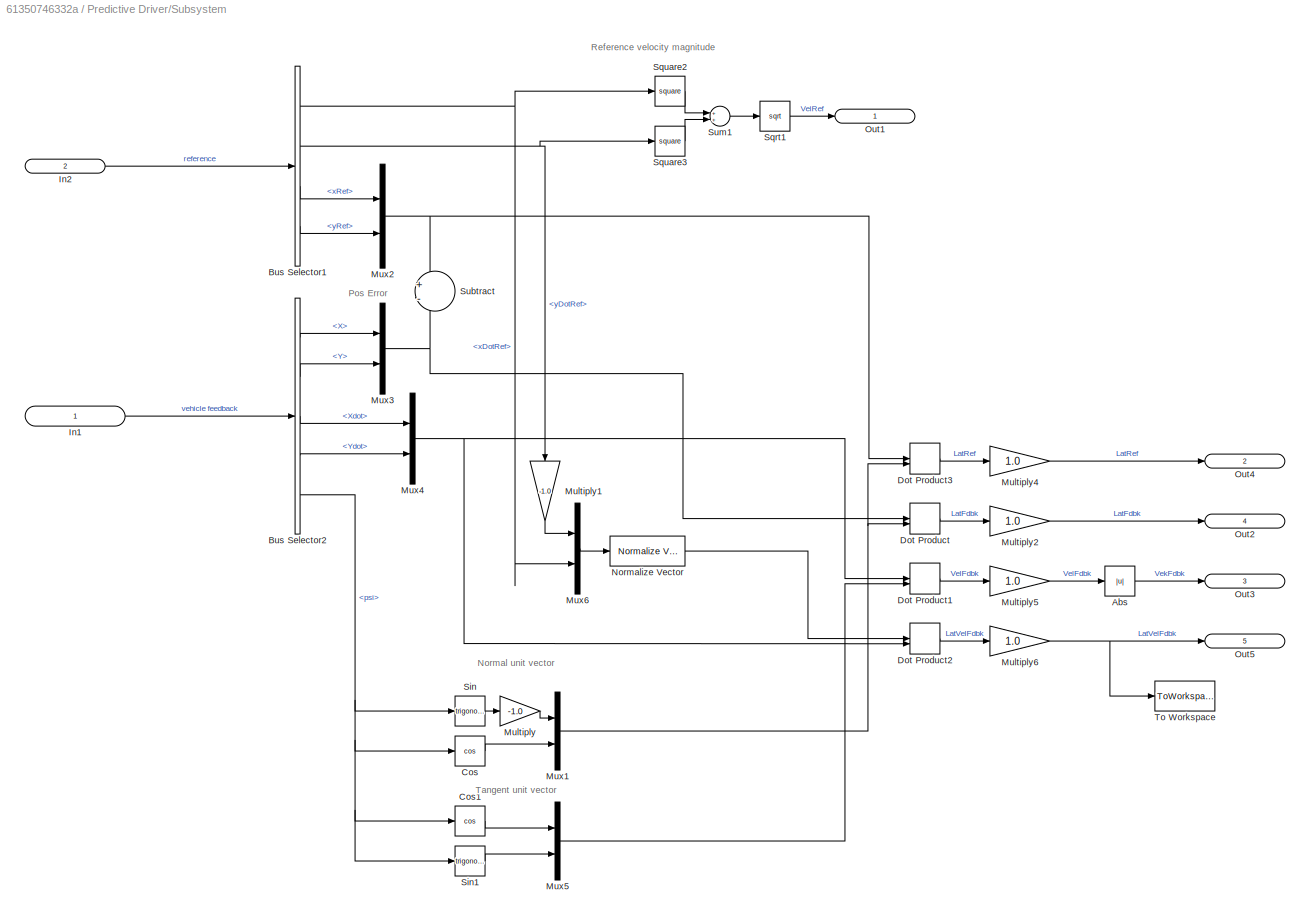
BLOCK [SubSystem] Predictive Driver/Subsystem
  Ports = [2, 5]
  RequestExecContextInheritance = off
BLOCK [Abs] Predictive Driver/Subsystem/Abs
  SaturateOnIntegerOverflow = off
BLOCK [BusSelector] Predictive Driver/Subsystem/Bus Selector1
  OutputAsBus = off
  OutputSignals = xDotRef,yDotRef,xRef,yRef
  Ports = [1, 4]
BLOCK [BusSelector] Predictive Driver/Subsystem/Bus Selector2
  OutputAsBus = off
  OutputSignals = Body.X,Body.Y,Body.Xdot,Body.Ydot,Body.psi
  Ports = [1, 5]
BLOCK [Trigonometry] Predictive Driver/Subsystem/Cos
  Operator = cos
  Ports = [1, 1]
BLOCK [Trigonometry] Predictive Driver/Subsystem/Cos1
  Operator = cos
  Ports = [1, 1]
BLOCK [DotProduct] Predictive Driver/Subsystem/Dot Product
  OutDataTypeStr = Inherit: Inherit via internal rule
BLOCK [DotProduct] Predictive Driver/Subsystem/Dot Product1
  OutDataTypeStr = Inherit: Inherit via internal rule
BLOCK [DotProduct] Predictive Driver/Subsystem/Dot Product2
  OutDataTypeStr = Inherit: Inherit via internal rule
BLOCK [DotProduct] Predictive Driver/Subsystem/Dot Product3
  OutDataTypeStr = Inherit: Inherit via internal rule
BLOCK [Inport] Predictive Driver/Subsystem/In1
  IconDisplay = Signal name
BLOCK [Inport] Predictive Driver/Subsystem/In2
  IconDisplay = Signal name
  Port = 2
BLOCK [Gain] Predictive Driver/Subsystem/Multiply
  Gain = -1.0
  OutDataTypeStr = Inherit: Inherit via internal rule
  ParamDataTypeStr = Inherit: Inherit via internal rule
  SaturateOnIntegerOverflow = off
BLOCK [Gain] Predictive Driver/Subsystem/Multiply1
  Gain = -1.0
  OutDataTypeStr = Inherit: Inherit via internal rule
  ParamDataTypeStr = Inherit: Inherit via internal rule
  SaturateOnIntegerOverflow = off
BLOCK [Gain] Predictive Driver/Subsystem/Multiply2
  Gain = 1.0
  OutDataTypeStr = Inherit: Inherit via internal rule
  ParamDataTypeStr = Inherit: Inherit via internal rule
  SaturateOnIntegerOverflow = off
BLOCK [Gain] Predictive Driver/Subsystem/Multiply4
  Gain = 1.0
  OutDataTypeStr = Inherit: Inherit via internal rule
  ParamDataTypeStr = Inherit: Inherit via internal rule
  SaturateOnIntegerOverflow = off
BLOCK [Gain] Predictive Driver/Subsystem/Multiply5
  Gain = 1.0
  OutDataTypeStr = Inherit: Inherit via internal rule
  ParamDataTypeStr = Inherit: Inherit via internal rule
  SaturateOnIntegerOverflow = off
BLOCK [Gain] Predictive Driver/Subsystem/Multiply6
  Gain = 1.0
  OutDataTypeStr = Inherit: Inherit via internal rule
  ParamDataTypeStr = Inherit: Inherit via internal rule
  SaturateOnIntegerOverflow = off
BLOCK [Mux] Predictive Driver/Subsystem/Mux1
  DisplayOption = bar
  Inputs = 2
  Ports = [2, 1]
BLOCK [Mux] Predictive Driver/Subsystem/Mux2
  DisplayOption = bar
  Inputs = 2
  Ports = [2, 1]
BLOCK [Mux] Predictive Driver/Subsystem/Mux3
  DisplayOption = bar
  Inputs = 2
  Ports = [2, 1]
BLOCK [Mux] Predictive Driver/Subsystem/Mux4
  DisplayOption = bar
  Inputs = 2
  Ports = [2, 1]
BLOCK [Mux] Predictive Driver/Subsystem/Mux5
  DisplayOption = bar
  Inputs = 2
  Ports = [2, 1]
BLOCK [Mux] Predictive Driver/Subsystem/Mux6
  DisplayOption = bar
  Inputs = 2
  Ports = [2, 1]
BLOCK [Reference] Predictive Driver/Subsystem/Normalize Vector  REF=vrlib/Utilities/Normalize Vector
  Ports = [1, 1]
  SourceBlock = vrlib/Utilities/Normalize Vector
  SourceProductBaseCode = SL
  SourceProductName = Simulink
  SourceType = Normalize Vector
BLOCK [Outport] Predictive Driver/Subsystem/Out1
  IconDisplay = Signal name
  VectorParamsAs1DForOutWhenUnconnected = off
BLOCK [Outport] Predictive Driver/Subsystem/Out2
  IconDisplay = Signal name
  Port = 4
  VectorParamsAs1DForOutWhenUnconnected = off
BLOCK [Outport] Predictive Driver/Subsystem/Out3
  IconDisplay = Signal name
  Port = 3
  VectorParamsAs1DForOutWhenUnconnected = off
BLOCK [Outport] Predictive Driver/Subsystem/Out4
  IconDisplay = Signal name
  Port = 2
  VectorParamsAs1DForOutWhenUnconnected = off
BLOCK [Outport] Predictive Driver/Subsystem/Out5
  IconDisplay = Signal name
  Port = 5
  VectorParamsAs1DForOutWhenUnconnected = off
BLOCK [Trigonometry] Predictive Driver/Subsystem/Sin
  Ports = [1, 1]
BLOCK [Trigonometry] Predictive Driver/Subsystem/Sin1
  Ports = [1, 1]
BLOCK [Sqrt] Predictive Driver/Subsystem/Sqrt1
BLOCK [Math] Predictive Driver/Subsystem/Square2
  Operator = square
  Ports = [1, 1]
BLOCK [Math] Predictive Driver/Subsystem/Square3
  Operator = square
  Ports = [1, 1]
BLOCK [Sum] Predictive Driver/Subsystem/Subtract
  IconShape = round
  InputSameDT = off
  Inputs = +-
  OutDataTypeStr = Inherit: Inherit via internal rule
  Ports = [2, 1]
  SaturateOnIntegerOverflow = off
BLOCK [Sum] Predictive Driver/Subsystem/Sum1
  IconShape = round
  InputSameDT = off
  OutDataTypeStr = Inherit: Inherit via internal rule
  Ports = [2, 1]
  SaturateOnIntegerOverflow = off
BLOCK [ToWorkspace] Predictive Driver/Subsystem/To Workspace
  FixptAsFi = on
  MaxDataPoints = inf
  Ports = [1]
  SampleTime = -1
  SaveFormat = Timeseries
  VariableName = LatVelFdbk
BLOCK [Switch] Predictive Driver/Switch
  Commented = on
  Criteria = u2 > Threshold
  InputSameDT = off
  SaturateOnIntegerOverflow = off
  Threshold = 10
BLOCK [Terminator] Predictive Driver/Terminator
BLOCK [Inport] Predictive Driver/VehFdbk
  IconDisplay = Port number
  Port = 2
BLOCK [Inport] Predictive Driver/VehRef
  IconDisplay = Port number
BLOCK [Gain] Predictive Driver/Wheel Angle Limit * Steer Ratio
  Gain = 20*pi/180*18
  OutDataTypeStr = Inherit: Inherit via internal rule
  ParamDataTypeStr = Inherit: Inherit via internal rule
  SaturateOnIntegerOverflow = off
BLOCK [SubSystem] Subsystem
  Ports = [1, 2]
  RequestExecContextInheritance = off
BLOCK [BusCreator] Subsystem/Bus Creator
  DisplayOption = bar
  InheritFromInputs = on
  Inputs = 5
  Ports = [5, 1]
BLOCK [BusCreator] Subsystem/Bus Creator1
  DisplayOption = bar
  InheritFromInputs = on
  Inputs = 3
  Ports = [3, 1]
BLOCK [BusCreator] Subsystem/Bus Creator2
  DisplayOption = bar
  InheritFromInputs = on
  Inputs = 2
  Ports = [2, 1]
BLOCK [BusSelector] Subsystem/Bus Selector1
  OutputAsBus = off
  OutputSignals = Body.X,Body.Y
  Ports = [1, 2]
BLOCK [Constant] Subsystem/Constant
  Value = 0
BLOCK [Constant] Subsystem/Constant1
  Value = 0
BLOCK [Constant] Subsystem/Constant3
  Value = pathPoints
BLOCK [Constant] Subsystem/Constant4
  Value = velocities
BLOCK [Constant] Subsystem/Constant5
  Value = splineParams
BLOCK [Outport] Subsystem/Lane
  IconDisplay = Port number
  VectorParamsAs1DForOutWhenUnconnected = off
BLOCK [Outport] Subsystem/Reference
  IconDisplay = Port number
  Port = 2
  VectorParamsAs1DForOutWhenUnconnected = off
BLOCK [Sum] Subsystem/Sum
  IconShape = round
  InputSameDT = off
  Inputs = |++
  OutDataTypeStr = Inherit: Inherit via internal rule
  Ports = [2, 1]
  SaturateOnIntegerOverflow = off
BLOCK [Sum] Subsystem/Sum1
  IconShape = round
  InputSameDT = off
  Inputs = |++
  OutDataTypeStr = Inherit: Inherit via internal rule
  Ports = [2, 1]
  SaturateOnIntegerOverflow = off
BLOCK [Sum] Subsystem/Sum2
  IconShape = round
  InputSameDT = off
  Inputs = |++
  OutDataTypeStr = Inherit: Inherit via internal rule
  Ports = [2, 1]
  SaturateOnIntegerOverflow = off
BLOCK [ToWorkspace] Subsystem/To Workspace
  FixptAsFi = on
  MaxDataPoints = inf
  Ports = [1]
  SampleTime = -1
  Save2DSignal = 2-D array (concatenate along first dimension)
  VariableName = path
BLOCK [SubSystem] Subsystem/controllerReference
  ErrorFcn = Stateflow.Translate.translate
  PermitHierarchicalResolution = ExplicitOnly
  Ports = [5, 4]
  RequestExecContextInheritance = off
  SFBlockType = MATLAB Function
  TreatAsAtomicUnit = on
BLOCK [Demux] Subsystem/controllerReference/ Demux 
  Outputs = 1
  Ports = [1, 1]
BLOCK [S-Function] Subsystem/controllerReference/ SFunction 
  EnableBusSupport = on
  FunctionName = sf_sfun
  PortCounts = [5 5]
  Ports = [5, 5]
  SFcnIsStateOwnerBlock = off
  SFunctionDeploymentMode = off
  Tag = Stateflow S-Function 2
BLOCK [Terminator] Subsystem/controllerReference/ Terminator 
BLOCK [Inport] Subsystem/controllerReference/pathPoints
  IconDisplay = Port number
  Port = 3
BLOCK [Inport] Subsystem/controllerReference/splineParams
  IconDisplay = Port number
  Port = 4
BLOCK [Inport] Subsystem/controllerReference/vehicleX
  IconDisplay = Port number
BLOCK [Inport] Subsystem/controllerReference/vehicleY
  IconDisplay = Port number
  Port = 2
BLOCK [Inport] Subsystem/controllerReference/velocities
  IconDisplay = Port number
  Port = 5
BLOCK [Outport] Subsystem/controllerReference/xDotRef
  IconDisplay = Port number
  Port = 3
  VectorParamsAs1DForOutWhenUnconnected = off
BLOCK [Outport] Subsystem/controllerReference/xRef
  IconDisplay = Port number
  VectorParamsAs1DForOutWhenUnconnected = off
BLOCK [Outport] Subsystem/controllerReference/yDotRef
  IconDisplay = Port number
  Port = 4
  VectorParamsAs1DForOutWhenUnconnected = off
BLOCK [Outport] Subsystem/controllerReference/yRef
  IconDisplay = Port number
  Port = 2
  VectorParamsAs1DForOutWhenUnconnected = off
BLOCK [Inport] Subsystem/vehicleFeedback
  IconDisplay = Port number
BLOCK [Terminator] Terminator
BLOCK [ToWorkspace] To Workspace
  FixptAsFi = on
  MaxDataPoints = inf
  Ports = [1]
  SampleTime = -1
  SaveFormat = Timeseries
  VariableName = vehicle
BLOCK [ToWorkspace] To Workspace1
  FixptAsFi = on
  MaxDataPoints = inf
  Ports = [1]
  SampleTime = -1
  SaveFormat = Timeseries
  VariableName = reference
BLOCK [SubSystem] Visualization
  Ports = [2]
  RequestExecContextInheritance = off
BLOCK [SubSystem] Visualization/3D Engine
  AttributesFormatString = %<SceneDesc>\n%<engine3D>
  LabelModeActiveChoice = 0
  Ports = [1]
  RequestExecContextInheritance = off
  Variant = on
  VariantControlMode = Label
BLOCK [SubSystem] Visualization/3D Engine/3D Engine
  Ports = [1]
  RequestExecContextInheritance = off
  VariantControl = 1
BLOCK [SubSystem] Visualization/3D Engine/3D Engine Disabled
  Ports = [1]
  RequestExecContextInheritance = off
  VariantControl = 0
BLOCK [Terminator] Visualization/3D Engine/3D Engine Disabled/Terminator
BLOCK [Inport] Visualization/3D Engine/3D Engine Disabled/VehFdbk
  IconDisplay = Port number
BLOCK [BusSelector] Visualization/3D Engine/3D Engine/Bus Selector
  OutputAsBus = off
  OutputSignals = Body.GeomX,Body.GeomY,Body.GeomZ,Body.phi,Body.theta,Body.psi
  Ports = [1, 6]
BLOCK [BusSelector] Visualization/3D Engine/3D Engine/Bus Selector2
  OutputAsBus = off
  OutputSignals = Wheels.dZWheel,Wheels.omega,Driveline.WhlAng
  Ports = [1, 3]
BLOCK [Constant] Visualization/3D Engine/3D Engine/Constant1
  OutDataTypeStr = single
  Value = zeros(4,1)
BLOCK [Constant] Visualization/3D Engine/3D Engine/Constant2
  OutDataTypeStr = single
  Value = 0
BLOCK [DataTypeConversion] Visualization/3D Engine/3D Engine/Data Type Conversion1
  OutDataTypeStr = single
  RndMeth = Floor
  SaturateOnIntegerOverflow = off
BLOCK [DataTypeConversion] Visualization/3D Engine/3D Engine/Data Type Conversion10
  OutDataTypeStr = single
  RndMeth = Floor
  SaturateOnIntegerOverflow = off
BLOCK [DataTypeConversion] Visualization/3D Engine/3D Engine/Data Type Conversion12
  OutDataTypeStr = single
  RndMeth = Floor
  SaturateOnIntegerOverflow = off
BLOCK [DataTypeConversion] Visualization/3D Engine/3D Engine/Data Type Conversion4
  OutDataTypeStr = single
  RndMeth = Floor
  SaturateOnIntegerOverflow = off
BLOCK [DataTypeConversion] Visualization/3D Engine/3D Engine/Data Type Conversion5
  OutDataTypeStr = single
  RndMeth = Floor
  SaturateOnIntegerOverflow = off
BLOCK [DataTypeConversion] Visualization/3D Engine/3D Engine/Data Type Conversion6
  OutDataTypeStr = single
  RndMeth = Floor
  SaturateOnIntegerOverflow = off
BLOCK [DataTypeConversion] Visualization/3D Engine/3D Engine/Data Type Conversion7
  OutDataTypeStr = single
  RndMeth = Floor
  SaturateOnIntegerOverflow = off
BLOCK [DataTypeConversion] Visualization/3D Engine/3D Engine/Data Type Conversion8
  OutDataTypeStr = single
  RndMeth = Floor
  SaturateOnIntegerOverflow = off
BLOCK [DataTypeConversion] Visualization/3D Engine/3D Engine/Data Type Conversion9
  OutDataTypeStr = single
  RndMeth = Floor
  SaturateOnIntegerOverflow = off
BLOCK [Demux] Visualization/3D Engine/3D Engine/Demux
  DisplayOption = bar
  Ports = [1, 4]
BLOCK [Demux] Visualization/3D Engine/3D Engine/Demux1
  DisplayOption = bar
  Ports = [1, 4]
BLOCK [Demux] Visualization/3D Engine/3D Engine/Demux2
  DisplayOption = bar
  Ports = [1, 4]
BLOCK [Demux] Visualization/3D Engine/3D Engine/Demux3
  DisplayOption = bar
  Ports = [1, 4]
BLOCK [Integrator] Visualization/3D Engine/3D Engine/Integrator
  Ports = [1, 1]
  WrapState = on
  WrappedStateLowerValue = 0
  WrappedStateUpperValue = 2*pi
  ZeroCross = off
BLOCK [SubSystem] Visualization/3D Engine/3D Engine/Part Rotation Concatenation
  Ports = [15, 1]
  RequestExecContextInheritance = off
BLOCK [Concatenate] Visualization/3D Engine/3D Engine/Part Rotation Concatenation/AllParts
  Mode = Multidimensional array
  NumInputs = 5
  Ports = [5, 1]
BLOCK [Concatenate] Visualization/3D Engine/3D Engine/Part Rotation Concatenation/Body
  ConcatenateDimension = 2
  Mode = Multidimensional array
  NumInputs = 3
  Ports = [3, 1]
BLOCK [Inport] Visualization/3D Engine/3D Engine/Part Rotation Concatenation/Body Ptich
  IconDisplay = Port number
  Port = 2
BLOCK [Inport] Visualization/3D Engine/3D Engine/Part Rotation Concatenation/Body Roll
  IconDisplay = Port number
BLOCK [Inport] Visualization/3D Engine/3D Engine/Part Rotation Concatenation/Body Yaw
  IconDisplay = Port number
  Port = 3
BLOCK [Outport] Visualization/3D Engine/3D Engine/Part Rotation Concatenation/ConcatOut
  IconDisplay = Port number
  VectorParamsAs1DForOutWhenUnconnected = off
BLOCK [Concatenate] Visualization/3D Engine/3D Engine/Part Rotation Concatenation/WheelFrontLeft
  ConcatenateDimension = 2
  Mode = Multidimensional array
  NumInputs = 3
  Ports = [3, 1]
BLOCK [Inport] Visualization/3D Engine/3D Engine/Part Rotation Concatenation/WheelFrontLeft Pitch
  IconDisplay = Port number
  Port = 4
BLOCK [Inport] Visualization/3D Engine/3D Engine/Part Rotation Concatenation/WheelFrontLeft Roll
  IconDisplay = Port number
  Port = 8
BLOCK [Inport] Visualization/3D Engine/3D Engine/Part Rotation Concatenation/WheelFrontLeft Yaw
  IconDisplay = Port number
  Port = 12
BLOCK [Concatenate] Visualization/3D Engine/3D Engine/Part Rotation Concatenation/WheelFrontRight
  ConcatenateDimension = 2
  Mode = Multidimensional array
  NumInputs = 3
  Ports = [3, 1]
BLOCK [Inport] Visualization/3D Engine/3D Engine/Part Rotation Concatenation/WheelFrontRight Pitch
  IconDisplay = Port number
  Port = 5
BLOCK [Inport] Visualization/3D Engine/3D Engine/Part Rotation Concatenation/WheelFrontRight Roll
  IconDisplay = Port number
  Port = 9
BLOCK [Inport] Visualization/3D Engine/3D Engine/Part Rotation Concatenation/WheelFrontRight Yaw
  IconDisplay = Port number
  Port = 13
BLOCK [Concatenate] Visualization/3D Engine/3D Engine/Part Rotation Concatenation/WheelRearLeft
  ConcatenateDimension = 2
  Mode = Multidimensional array
  NumInputs = 3
  Ports = [3, 1]
BLOCK [Inport] Visualization/3D Engine/3D Engine/Part Rotation Concatenation/WheelRearLeft Pitch
  IconDisplay = Port number
  Port = 6
BLOCK [Inport] Visualization/3D Engine/3D Engine/Part Rotation Concatenation/WheelRearLeft Roll
  IconDisplay = Port number
  Port = 10
BLOCK [Inport] Visualization/3D Engine/3D Engine/Part Rotation Concatenation/WheelRearLeft Yaw
  IconDisplay = Port number
  Port = 14
BLOCK [Concatenate] Visualization/3D Engine/3D Engine/Part Rotation Concatenation/WheelRearRight
  ConcatenateDimension = 2
  Mode = Multidimensional array
  NumInputs = 3
  Ports = [3, 1]
BLOCK [Inport] Visualization/3D Engine/3D Engine/Part Rotation Concatenation/WheelRearRight Ptich
  IconDisplay = Port number
  Port = 7
BLOCK [Inport] Visualization/3D Engine/3D Engine/Part Rotation Concatenation/WheelRearRight Roll
  IconDisplay = Port number
  Port = 11
BLOCK [Inport] Visualization/3D Engine/3D Engine/Part Rotation Concatenation/WheelRearRight Yaw
  IconDisplay = Port number
  Port = 15
BLOCK [SubSystem] Visualization/3D Engine/3D Engine/Part Translation Concatenation
  Ports = [15, 1]
  RequestExecContextInheritance = off
BLOCK [Concatenate] Visualization/3D Engine/3D Engine/Part Translation Concatenation/AllParts
  Mode = Multidimensional array
  NumInputs = 5
  Ports = [5, 1]
BLOCK [Concatenate] Visualization/3D Engine/3D Engine/Part Translation Concatenation/Body
  ConcatenateDimension = 2
  Mode = Multidimensional array
  NumInputs = 3
  Ports = [3, 1]
BLOCK [Inport] Visualization/3D Engine/3D Engine/Part Translation Concatenation/BodyX
  IconDisplay = Port number
BLOCK [Inport] Visualization/3D Engine/3D Engine/Part Translation Concatenation/BodyY
  IconDisplay = Port number
  Port = 2
BLOCK [Inport] Visualization/3D Engine/3D Engine/Part Translation Concatenation/BodyZ
  IconDisplay = Port number
  Port = 3
BLOCK [Outport] Visualization/3D Engine/3D Engine/Part Translation Concatenation/ConcatOut
  IconDisplay = Port number
  VectorParamsAs1DForOutWhenUnconnected = off
BLOCK [Concatenate] Visualization/3D Engine/3D Engine/Part Translation Concatenation/WheelFrontLeft
  ConcatenateDimension = 2
  Mode = Multidimensional array
  NumInputs = 3
  Ports = [3, 1]
BLOCK [Inport] Visualization/3D Engine/3D Engine/Part Translation Concatenation/WheelFrontLeftX
  IconDisplay = Port number
  Port = 4
BLOCK [Inport] Visualization/3D Engine/3D Engine/Part Translation Concatenation/WheelFrontLeftY
  IconDisplay = Port number
  Port = 8
BLOCK [Inport] Visualization/3D Engine/3D Engine/Part Translation Concatenation/WheelFrontLeftZ
  IconDisplay = Port number
  Port = 12
BLOCK [Concatenate] Visualization/3D Engine/3D Engine/Part Translation Concatenation/WheelFrontRight
  ConcatenateDimension = 2
  Mode = Multidimensional array
  NumInputs = 3
  Ports = [3, 1]
BLOCK [Inport] Visualization/3D Engine/3D Engine/Part Translation Concatenation/WheelFrontRightX
  IconDisplay = Port number
  Port = 5
BLOCK [Inport] Visualization/3D Engine/3D Engine/Part Translation Concatenation/WheelFrontRightY
  IconDisplay = Port number
  Port = 9
BLOCK [Inport] Visualization/3D Engine/3D Engine/Part Translation Concatenation/WheelFrontRightZ
  IconDisplay = Port number
  Port = 13
BLOCK [Concatenate] Visualization/3D Engine/3D Engine/Part Translation Concatenation/WheelRearLeft
  ConcatenateDimension = 2
  Mode = Multidimensional array
  NumInputs = 3
  Ports = [3, 1]
BLOCK [Inport] Visualization/3D Engine/3D Engine/Part Translation Concatenation/WheelRearLeftX
  IconDisplay = Port number
  Port = 6
BLOCK [Inport] Visualization/3D Engine/3D Engine/Part Translation Concatenation/WheelRearLeftY
  IconDisplay = Port number
  Port = 10
BLOCK [Inport] Visualization/3D Engine/3D Engine/Part Translation Concatenation/WheelRearLeftZ
  IconDisplay = Port number
  Port = 14
BLOCK [Concatenate] Visualization/3D Engine/3D Engine/Part Translation Concatenation/WheelRearRight
  ConcatenateDimension = 2
  Mode = Multidimensional array
  NumInputs = 3
  Ports = [3, 1]
BLOCK [Inport] Visualization/3D Engine/3D Engine/Part Translation Concatenation/WheelRearRightX
  IconDisplay = Port number
  Port = 7
BLOCK [Inport] Visualization/3D Engine/3D Engine/Part Translation Concatenation/WheelRearRightY
  IconDisplay = Port number
  Port = 11
BLOCK [Inport] Visualization/3D Engine/3D Engine/Part Translation Concatenation/WheelRearRightZ
  IconDisplay = Port number
  Port = 15
BLOCK [RateTransition] Visualization/3D Engine/3D Engine/Rate Transition
  OutPortSampleTime = dt3D
BLOCK [SubSystem] Visualization/3D Engine/3D Engine/Scale
  Ports = [0, 1]
  RequestExecContextInheritance = off
BLOCK [Constant] Visualization/3D Engine/3D Engine/Scale/Constant1
  OutDataTypeStr = single
BLOCK [Constant] Visualization/3D Engine/3D Engine/Scale/Constant10
  OutDataTypeStr = single
BLOCK [Constant] Visualization/3D Engine/3D Engine/Scale/Constant11
  OutDataTypeStr = single
BLOCK [Constant] Visualization/3D Engine/3D Engine/Scale/Constant12
  OutDataTypeStr = single
BLOCK [Constant] Visualization/3D Engine/3D Engine/Scale/Constant17
  OutDataTypeStr = single
BLOCK [Constant] Visualization/3D Engine/3D Engine/Scale/Constant2
  OutDataTypeStr = single
BLOCK [Constant] Visualization/3D Engine/3D Engine/Scale/Constant3
  OutDataTypeStr = single
BLOCK [Constant] Visualization/3D Engine/3D Engine/Scale/Constant32
  OutDataTypeStr = single
BLOCK [Constant] Visualization/3D Engine/3D Engine/Scale/Constant33
  OutDataTypeStr = single
BLOCK [Constant] Visualization/3D Engine/3D Engine/Scale/Constant4
  OutDataTypeStr = single
BLOCK [Constant] Visualization/3D Engine/3D Engine/Scale/Constant5
  OutDataTypeStr = single
BLOCK [Constant] Visualization/3D Engine/3D Engine/Scale/Constant6
  OutDataTypeStr = single
BLOCK [Constant] Visualization/3D Engine/3D Engine/Scale/Constant7
  OutDataTypeStr = single
BLOCK [Constant] Visualization/3D Engine/3D Engine/Scale/Constant8
  OutDataTypeStr = single
BLOCK [Constant] Visualization/3D Engine/3D Engine/Scale/Constant9
  OutDataTypeStr = single
BLOCK [SubSystem] Visualization/3D Engine/3D Engine/Scale/PartConcatenation
  Ports = [15, 1]
  RequestExecContextInheritance = off
BLOCK [Concatenate] Visualization/3D Engine/3D Engine/Scale/PartConcatenation/AllParts
  Mode = Multidimensional array
  NumInputs = 5
  Ports = [5, 1]
BLOCK [Concatenate] Visualization/3D Engine/3D Engine/Scale/PartConcatenation/Body
  ConcatenateDimension = 2
  Mode = Multidimensional array
  NumInputs = 3
  Ports = [3, 1]
BLOCK [Inport] Visualization/3D Engine/3D Engine/Scale/PartConcatenation/BodyX
  IconDisplay = Port number
BLOCK [Inport] Visualization/3D Engine/3D Engine/Scale/PartConcatenation/BodyY
  IconDisplay = Port number
  Port = 2
BLOCK [Inport] Visualization/3D Engine/3D Engine/Scale/PartConcatenation/BodyZ
  IconDisplay = Port number
  Port = 3
BLOCK [Outport] Visualization/3D Engine/3D Engine/Scale/PartConcatenation/ConcatOut
  IconDisplay = Port number
  VectorParamsAs1DForOutWhenUnconnected = off
BLOCK [Concatenate] Visualization/3D Engine/3D Engine/Scale/PartConcatenation/WheelFrontLeft
  ConcatenateDimension = 2
  Mode = Multidimensional array
  NumInputs = 3
  Ports = [3, 1]
BLOCK [Inport] Visualization/3D Engine/3D Engine/Scale/PartConcatenation/WheelFrontLeftX
  IconDisplay = Port number
  Port = 4
BLOCK [Inport] Visualization/3D Engine/3D Engine/Scale/PartConcatenation/WheelFrontLeftY
  IconDisplay = Port number
  Port = 5
BLOCK [Inport] Visualization/3D Engine/3D Engine/Scale/PartConcatenation/WheelFrontLeftZ
  IconDisplay = Port number
  Port = 6
BLOCK [Concatenate] Visualization/3D Engine/3D Engine/Scale/PartConcatenation/WheelFrontRight
  ConcatenateDimension = 2
  Mode = Multidimensional array
  NumInputs = 3
  Ports = [3, 1]
BLOCK [Inport] Visualization/3D Engine/3D Engine/Scale/PartConcatenation/WheelFrontRightX
  IconDisplay = Port number
  Port = 7
BLOCK [Inport] Visualization/3D Engine/3D Engine/Scale/PartConcatenation/WheelFrontRightY
  IconDisplay = Port number
  Port = 8
BLOCK [Inport] Visualization/3D Engine/3D Engine/Scale/PartConcatenation/WheelFrontRightZ
  IconDisplay = Port number
  Port = 9
BLOCK [Concatenate] Visualization/3D Engine/3D Engine/Scale/PartConcatenation/WheelRearLeft
  ConcatenateDimension = 2
  Mode = Multidimensional array
  NumInputs = 3
  Ports = [3, 1]
BLOCK [Inport] Visualization/3D Engine/3D Engine/Scale/PartConcatenation/WheelRearLeftX
  IconDisplay = Port number
  Port = 10
BLOCK [Inport] Visualization/3D Engine/3D Engine/Scale/PartConcatenation/WheelRearLeftY
  IconDisplay = Port number
  Port = 11
BLOCK [Inport] Visualization/3D Engine/3D Engine/Scale/PartConcatenation/WheelRearLeftZ
  IconDisplay = Port number
  Port = 12
BLOCK [Concatenate] Visualization/3D Engine/3D Engine/Scale/PartConcatenation/WheelRearRight
  ConcatenateDimension = 2
  Mode = Multidimensional array
  NumInputs = 3
  Ports = [3, 1]
BLOCK [Inport] Visualization/3D Engine/3D Engine/Scale/PartConcatenation/WheelRearRightX
  IconDisplay = Port number
  Port = 13
BLOCK [Inport] Visualization/3D Engine/3D Engine/Scale/PartConcatenation/WheelRearRightY
  IconDisplay = Port number
  Port = 14
BLOCK [Inport] Visualization/3D Engine/3D Engine/Scale/PartConcatenation/WheelRearRightZ
  IconDisplay = Port number
  Port = 15
BLOCK [Outport] Visualization/3D Engine/3D Engine/Scale/ScaleOut
  IconDisplay = Port number
  VectorParamsAs1DForOutWhenUnconnected = off
BLOCK [Reference] Visualization/3D Engine/3D Engine/Simulation 3D Engine 1  REF=sim3dlib/Simulation 3D Scene Configuration
  AttributesFormatString = Priority: %<Priority>
  Ports = []
  Priority = 1
  SourceBlock = sim3dlib/Simulation 3D Scene Configuration
  SourceProductBaseCode = VE
  SourceProductName = Vehicle Dynamics Blockset
  SourceType = Simulation 3D Scene Configuration
BLOCK [UnaryMinus] Visualization/3D Engine/3D Engine/Unary Minus
BLOCK [UnaryMinus] Visualization/3D Engine/3D Engine/Unary Minus1
BLOCK [Inport] Visualization/3D Engine/3D Engine/VehFdbk
  IconDisplay = Port number
BLOCK [Reference] Visualization/3D Engine/3D Engine/Vehicle Actor Transform Set  REF=sim3dlib/Simulation 3D Actor Transform Set
  Ports = [3]
  SourceBlock = sim3dlib/Simulation 3D Actor Transform Set
  SourceProductBaseCode = VE
  SourceProductName = Vehicle Dynamics Blockset
  SourceType = Simulation 3D Actor Transform Set
BLOCK [SubSystem] Visualization/3D Engine/3D Engine/VehicleActorTransform 2
  Ports = []
  RequestExecContextInheritance = off
BLOCK [Constant] Visualization/3D Engine/3D Engine/VehicleActorTransform 2/Constant
  Value = [0 0 depth; 0 0 0; 0 0 0; 0 0 0; 0 0 0]
BLOCK [Constant] Visualization/3D Engine/3D Engine/VehicleActorTransform 2/Constant1
  Value = [0 0 0; 0 0 0; 0 0 0; 0 0 0; 0 0 0]
BLOCK [Constant] Visualization/3D Engine/3D Engine/VehicleActorTransform 2/Constant2
  Value = ones(5,3)
BLOCK [Reference] Visualization/3D Engine/3D Engine/VehicleActorTransform 2/Vehicle Actor Transform Set1  REF=sim3dlib/Simulation 3D Actor Transform Set
  Ports = [3]
  SourceBlock = sim3dlib/Simulation 3D Actor Transform Set
  SourceProductBaseCode = VE
  SourceProductName = Vehicle Dynamics Blockset
  SourceType = Transform Set
BLOCK [Inport] Visualization/3D Engine/VehFdbk
  IconDisplay = Port number
BLOCK [BusCreator] Visualization/Bus Creator
  DisplayOption = bar
  InheritFromInputs = on
  Inputs = 1
  Ports = [1, 1]
BLOCK [BusSelector] Visualization/Bus Selector1
  OutputAsBus = on
  OutputSignals = Body.phi,Body.theta,Body.psi
  Ports = [1, 1]
BLOCK [BusSelector] Visualization/Bus Selector5
  OutputAsBus = on
  OutputSignals = Driveline.WhlAng
  Ports = [1, 1]
BLOCK [BusSelector] Visualization/Bus Selector6
  OutputAsBus = on
  OutputSignals = Body.GeomX,Body.GeomY,Body.GeomZ
  Ports = [1, 1]
BLOCK [BusSelector] Visualization/Bus Selector7
  OutputAsBus = on
  OutputSignals = Body.GeomXdot,Body.GeomYdot,Body.GeomZdot
  Ports = [1, 1]
BLOCK [BusSelector] Visualization/Bus Selector8
  OutputAsBus = on
  OutputSignals = Ref
  Ports = [1, 1]
BLOCK [BusToVector] Visualization/Bus to Vector
BLOCK [BusToVector] Visualization/Bus to Vector1
BLOCK [BusToVector] Visualization/Bus to Vector2
BLOCK [Inport] Visualization/Cntrl
  IconDisplay = Port number
BLOCK [SubSystem] Visualization/ISO 15037-1:2006
  AttributesFormatString = %<Measurement>
  LabelModeActiveChoice = 0
  Ports = [2]
  RequestExecContextInheritance = off
  StopFcn = switch get_param(gcb,'Measurement')\n    case 'Enabled'\n       p=slproject.getCurrentProject;\n       projectRoot=p.RootFolder;\n       SySFolder=fullfile(projectRoot, 'System');\n       Simulink.sdi.loadView([SySFolder filesep 'ISO15037_1_2006E.mldatx']);\n       Simulink.sdi.view;\nend
  Variant = on
  VariantControlMode = Label
BLOCK [Inport] Visualization/ISO 15037-1:2006/Cntrl
  IconDisplay = Port number
  Port = 2
BLOCK [SubSystem] Visualization/ISO 15037-1:2006/Disabled
  Ports = [2]
  RequestExecContextInheritance = off
  VariantControl = 0
BLOCK [Inport] Visualization/ISO 15037-1:2006/Disabled/Cntrl
  IconDisplay = Port number
  Port = 2
BLOCK [Terminator] Visualization/ISO 15037-1:2006/Disabled/Terminator
BLOCK [Terminator] Visualization/ISO 15037-1:2006/Disabled/Terminator1
BLOCK [Inport] Visualization/ISO 15037-1:2006/Disabled/VehFdbk
  IconDisplay = Port number
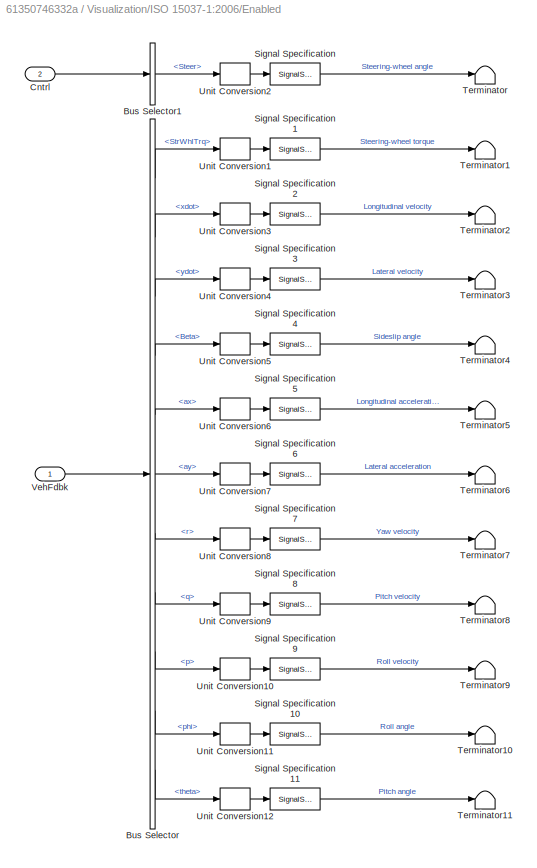
BLOCK [SubSystem] Visualization/ISO 15037-1:2006/Enabled
  Ports = [2]
  RequestExecContextInheritance = off
  VariantControl = 1
BLOCK [BusSelector] Visualization/ISO 15037-1:2006/Enabled/Bus Selector
  OutputAsBus = off
  OutputSignals = Steering.StrWhlTrq,Body.xdot,Body.ydot,Body.Beta,Body.ax,Body.ay,Body.r,Body.q,Body.p,Body.phi,Body.theta
  Ports = [1, 11]
BLOCK [BusSelector] Visualization/ISO 15037-1:2006/Enabled/Bus Selector1
  OutputAsBus = off
  OutputSignals = Steer
  Ports = [1, 1]
BLOCK [Inport] Visualization/ISO 15037-1:2006/Enabled/Cntrl
  IconDisplay = Port number
  Port = 2
BLOCK [SignalSpecification] Visualization/ISO 15037-1:2006/Enabled/Signal Specification
  Unit = deg
BLOCK [SignalSpecification] Visualization/ISO 15037-1:2006/Enabled/Signal Specification1
  Unit = N*m
BLOCK [SignalSpecification] Visualization/ISO 15037-1:2006/Enabled/Signal Specification10
  Unit = deg
BLOCK [SignalSpecification] Visualization/ISO 15037-1:2006/Enabled/Signal Specification11
  Unit = deg
BLOCK [SignalSpecification] Visualization/ISO 15037-1:2006/Enabled/Signal Specification2
  Unit = km/h
BLOCK [SignalSpecification] Visualization/ISO 15037-1:2006/Enabled/Signal Specification3
  Unit = m/s
BLOCK [SignalSpecification] Visualization/ISO 15037-1:2006/Enabled/Signal Specification4
  Unit = deg
BLOCK [SignalSpecification] Visualization/ISO 15037-1:2006/Enabled/Signal Specification5
  Unit = m/s^2
BLOCK [SignalSpecification] Visualization/ISO 15037-1:2006/Enabled/Signal Specification6
  Unit = m/s^2
BLOCK [SignalSpecification] Visualization/ISO 15037-1:2006/Enabled/Signal Specification7
  Unit = deg/s
BLOCK [SignalSpecification] Visualization/ISO 15037-1:2006/Enabled/Signal Specification8
  Unit = deg/s
BLOCK [SignalSpecification] Visualization/ISO 15037-1:2006/Enabled/Signal Specification9
  Unit = deg/s
BLOCK [Terminator] Visualization/ISO 15037-1:2006/Enabled/Terminator
BLOCK [Terminator] Visualization/ISO 15037-1:2006/Enabled/Terminator1
BLOCK [Terminator] Visualization/ISO 15037-1:2006/Enabled/Terminator10
BLOCK [Terminator] Visualization/ISO 15037-1:2006/Enabled/Terminator11
BLOCK [Terminator] Visualization/ISO 15037-1:2006/Enabled/Terminator2
BLOCK [Terminator] Visualization/ISO 15037-1:2006/Enabled/Terminator3
BLOCK [Terminator] Visualization/ISO 15037-1:2006/Enabled/Terminator4
BLOCK [Terminator] Visualization/ISO 15037-1:2006/Enabled/Terminator5
BLOCK [Terminator] Visualization/ISO 15037-1:2006/Enabled/Terminator6
BLOCK [Terminator] Visualization/ISO 15037-1:2006/Enabled/Terminator7
BLOCK [Terminator] Visualization/ISO 15037-1:2006/Enabled/Terminator8
BLOCK [Terminator] Visualization/ISO 15037-1:2006/Enabled/Terminator9
BLOCK [UnitConversion] Visualization/ISO 15037-1:2006/Enabled/Unit Conversion1
BLOCK [UnitConversion] Visualization/ISO 15037-1:2006/Enabled/Unit Conversion10
BLOCK [UnitConversion] Visualization/ISO 15037-1:2006/Enabled/Unit Conversion11
BLOCK [UnitConversion] Visualization/ISO 15037-1:2006/Enabled/Unit Conversion12
BLOCK [UnitConversion] Visualization/ISO 15037-1:2006/Enabled/Unit Conversion2
BLOCK [UnitConversion] Visualization/ISO 15037-1:2006/Enabled/Unit Conversion3
BLOCK [UnitConversion] Visualization/ISO 15037-1:2006/Enabled/Unit Conversion4
BLOCK [UnitConversion] Visualization/ISO 15037-1:2006/Enabled/Unit Conversion5
BLOCK [UnitConversion] Visualization/ISO 15037-1:2006/Enabled/Unit Conversion6
BLOCK [UnitConversion] Visualization/ISO 15037-1:2006/Enabled/Unit Conversion7
BLOCK [UnitConversion] Visualization/ISO 15037-1:2006/Enabled/Unit Conversion8
BLOCK [UnitConversion] Visualization/ISO 15037-1:2006/Enabled/Unit Conversion9
BLOCK [Inport] Visualization/ISO 15037-1:2006/Enabled/VehFdbk
  IconDisplay = Port number
BLOCK [Inport] Visualization/ISO 15037-1:2006/VehFdbk
  IconDisplay = Port number
BLOCK [Terminator] Visualization/Terminator
BLOCK [ToFile] Visualization/To File
  Commented = on
  Filename = fullThrottleResults.mat
  MatrixName = results
  Ports = [1]
  SaveFormat = Timeseries
BLOCK [ToFile] Visualization/To File1
  Filename = decelerationResults.mat
  MatrixName = deceResults
  Ports = [1]
  SaveFormat = Timeseries
BLOCK [ToWorkspace] Visualization/To Workspace
  Commented = on
  FixptAsFi = on
  MaxDataPoints = inf
  Ports = [1]
  SampleTime = -1
  SaveFormat = Timeseries
  VariableName = results
BLOCK [Inport] Visualization/VehFdbk
  IconDisplay = Port number
  Port = 2
BLOCK [SubSystem] Visualization/Vehicle XY Plotter
  Ports = [5]
  RequestExecContextInheritance = off
BLOCK [Inport] Visualization/Vehicle XY Plotter/InertAng
  IconDisplay = Port number
  Port = 2
BLOCK [Inport] Visualization/Vehicle XY Plotter/InertXYZ
  IconDisplay = Port number
BLOCK [Inport] Visualization/Vehicle XY Plotter/InertXdotYdotZdot
  IconDisplay = Port number
  Port = 3
BLOCK [RateTransition] Visualization/Vehicle XY Plotter/Rate Transition1
  Deterministic = off
  OutPortSampleTime = pltDT
BLOCK [RateTransition] Visualization/Vehicle XY Plotter/Rate Transition2
  Deterministic = off
  OutPortSampleTime = pltDT
BLOCK [RateTransition] Visualization/Vehicle XY Plotter/Rate Transition3
  Deterministic = off
  OutPortSampleTime = pltDT
BLOCK [RateTransition] Visualization/Vehicle XY Plotter/Rate Transition4
  Deterministic = off
  OutPortSampleTime = pltDT
BLOCK [RateTransition] Visualization/Vehicle XY Plotter/Rate Transition5
  Deterministic = off
  OutPortSampleTime = pltDT
BLOCK [Inport] Visualization/Vehicle XY Plotter/RefXYZ
  IconDisplay = Port number
  Port = 5
BLOCK [Reference] Visualization/Vehicle XY Plotter/Vehicle XY Plotter  REF=vehdynlibviscommon/Vehicle XY Plotter
  Ports = [5]
  SourceBlock = vehdynlibviscommon/Vehicle XY Plotter
  SourceProductBaseCode = VE
  SourceProductName = Vehicle Dynamics Blockset
  SourceType = Vehicle XY Plotter
BLOCK [Inport] Visualization/Vehicle XY Plotter/delta
  IconDisplay = Port number
  Port = 4
ANNOTATION (root): <copyright redacted>
ANNOTATION Controllers/Active Differential Control: 1) Add Subsystem or Model blocks as valid variant choices. 2) You cannot connect blocks at this level. At simulation, connectivity is automatically determined, based on the active variant and port name matching.
ANNOTATION Controllers/Brake Controller/Brake Pressure Control: 1) Add Subsystem or Model blocks as valid variant choices. 2) You cannot connect blocks at this level. At simulation, connectivity is automatically determined, based on the active variant and port name matching.
ANNOTATION Controllers/Transmission Controller/Transmission Controller/TCM/TCM Shift Controller/calc: Determine if next gear will be higher or lower than current gear
ANNOTATION Environment/Ground Feedback: 1) Add Subsystem or Model blocks as valid variant choices. 2) You cannot connect blocks at this level. At simulation, connectivity is automatically determined, based on the active variant and port name matching.
ANNOTATION Passenger Vehicle/Body, Suspension, Wheels: 1) Add Subsystem or Model blocks as valid variant choices. 2) You cannot connect blocks at this level. At simulation, connectivity is automatically determined, based on the active variant and port name matching.
ANNOTATION Passenger Vehicle/Engine: 1) Add Subsystem or Model blocks as valid variant choices. 2) You cannot connect blocks at this level. At simulation, connectivity is automatically determined, based on the active variant and port name matching.
ANNOTATION Passenger Vehicle/Steering, Transmission, Driveline and Brakes: 1) Add Subsystem or Model blocks as valid variant choices. 2) You cannot connect blocks at this level. At simulation, connectivity is automatically determined, based on the active variant and port name matching.
ANNOTATION Predictive Driver/Subsystem: Normal unit vector
ANNOTATION Predictive Driver/Subsystem: Pos Error
ANNOTATION Predictive Driver/Subsystem: Reference velocity magnitude
ANNOTATION Predictive Driver/Subsystem: Tangent unit vector
ANNOTATION Visualization/3D Engine: 1) Add Subsystem or Model blocks as valid variant choices. 2) You cannot connect blocks at this level. At simulation, connectivity is automatically determined, based on the active variant and port name matching.
NET Controllers/Active Differential Control/No Control/Constant:1 -> Controllers/Active Differential Control/No Control/TrqCmd:1, Controllers/Active Differential Control/No Control/Vector Concatenate2:1, Controllers/Active Differential Control/No Control/Vector Concatenate2:2, Controllers/Active Differential Control/No Control/Vector Concatenate2:3, Controllers/Active Differential Control/No Control/Vector Concatenate2:4
LINE Controllers/Active Differential Control/No Control/Steer:1 -> Controllers/Active Differential Control/No Control/Terminator1:1
LINE Controllers/Active Differential Control/No Control/Vector Concatenate2:1 -> Controllers/Active Differential Control/No Control/DiffPrsCmd:1
LINE Controllers/Active Differential Control/No Control/YawRate:1 -> Controllers/Active Differential Control/No Control/Terminator:1
LINE Controllers/Active Differential Control/Rear Diff Controller/Abs1:1 -> Controllers/Active Differential Control/Rear Diff Controller/Gain3:1
LINE Controllers/Active Differential Control/Rear Diff Controller/Abs:1 -> Controllers/Active Differential Control/Rear Diff Controller/Vector Concatenate2:3
LINE Controllers/Active Differential Control/Rear Diff Controller/Cont LPF1:1 -> Controllers/Active Differential Control/Rear Diff Controller/Abs1:1
NET Controllers/Active Differential Control/Rear Diff Controller/Cont LPF:1 -> Controllers/Active Differential Control/Rear Diff Controller/Saturation1:1, Controllers/Active Differential Control/Rear Diff Controller/Saturation:1
NET Controllers/Active Differential Control/Rear Diff Controller/Dead Zone:1 -> Controllers/Active Differential Control/Rear Diff Controller/Cont LPF1:1, Controllers/Active Differential Control/Rear Diff Controller/Cont LPF:1
LINE Controllers/Active Differential Control/Rear Diff Controller/Gain2:1 -> Controllers/Active Differential Control/Rear Diff Controller/Subtract:2
LINE Controllers/Active Differential Control/Rear Diff Controller/Gain3:1 -> Controllers/Active Differential Control/Rear Diff Controller/Saturation3:1
LINE Controllers/Active Differential Control/Rear Diff Controller/Gain:1 -> Controllers/Active Differential Control/Rear Diff Controller/Saturation2:1
NET Controllers/Active Differential Control/Rear Diff Controller/Ground:1 -> Controllers/Active Differential Control/Rear Diff Controller/Vector Concatenate2:1, Controllers/Active Differential Control/Rear Diff Controller/Vector Concatenate2:2
LINE Controllers/Active Differential Control/Rear Diff Controller/Saturation1:1 -> Controllers/Active Differential Control/Rear Diff Controller/Vector Concatenate2:4
LINE Controllers/Active Differential Control/Rear Diff Controller/Saturation2:1 -> Controllers/Active Differential Control/Rear Diff Controller/DiffPrsCmd:1
LINE Controllers/Active Differential Control/Rear Diff Controller/Saturation3:1 -> Controllers/Active Differential Control/Rear Diff Controller/TrqCmd:1
LINE Controllers/Active Differential Control/Rear Diff Controller/Saturation:1 -> Controllers/Active Differential Control/Rear Diff Controller/Abs:1
LINE Controllers/Active Differential Control/Rear Diff Controller/Steer:1 -> Controllers/Active Differential Control/Rear Diff Controller/Gain2:1
LINE Controllers/Active Differential Control/Rear Diff Controller/Subtract:1 -> Controllers/Active Differential Control/Rear Diff Controller/Dead Zone:1
LINE Controllers/Active Differential Control/Rear Diff Controller/Vector Concatenate2:1 -> Controllers/Active Differential Control/Rear Diff Controller/Gain:1
LINE Controllers/Active Differential Control/Rear Diff Controller/YawRate:1 -> Controllers/Active Differential Control/Rear Diff Controller/Subtract:1
LINE Controllers/Active Differential Control:1 -> Controllers/Bus Creator4:1
LINE Controllers/Active Differential Control:2 -> Controllers/Goto:1
LINE Controllers/Brake Controller/Abs:1 -> Controllers/Brake Controller/Saturation:1
LINE Controllers/Brake Controller/Brake Pressure Control/Bang Bang ABS/<Kappa>:1 -> Controllers/Brake Controller/Brake Pressure Control/Bang Bang ABS/Rate Transition:1
LINE Controllers/Brake Controller/Brake Pressure Control/Bang Bang ABS/Abs:1 -> Controllers/Brake Controller/Brake Pressure Control/Bang Bang ABS/Compare To Constant2:1
LINE Controllers/Brake Controller/Brake Pressure Control/Bang Bang ABS/Add:1 -> Controllers/Brake Controller/Brake Pressure Control/Bang Bang ABS/Bang-bang controller:1
NET Controllers/Brake Controller/Brake Pressure Control/Bang Bang ABS/Bang-bang controller/Constant:1 -> Controllers/Brake Controller/Brake Pressure Control/Bang Bang ABS/Bang-bang controller/Relational Operator1:2, Controllers/Brake Controller/Brake Pressure Control/Bang Bang ABS/Bang-bang controller/Relational Operator:2
LINE Controllers/Brake Controller/Brake Pressure Control/Bang Bang ABS/Bang-bang controller/Data Type Conversion1:1 -> Controllers/Brake Controller/Brake Pressure Control/Bang Bang ABS/Bang-bang controller/Sum:1
LINE Controllers/Brake Controller/Brake Pressure Control/Bang Bang ABS/Bang-bang controller/Data Type Conversion2:1 -> Controllers/Brake Controller/Brake Pressure Control/Bang Bang ABS/Bang-bang controller/Sum:2
LINE Controllers/Brake Controller/Brake Pressure Control/Bang Bang ABS/Bang-bang controller/Relational Operator1:1 -> Controllers/Brake Controller/Brake Pressure Control/Bang Bang ABS/Bang-bang controller/Data Type Conversion2:1
LINE Controllers/Brake Controller/Brake Pressure Control/Bang Bang ABS/Bang-bang controller/Relational Operator:1 -> Controllers/Brake Controller/Brake Pressure Control/Bang Bang ABS/Bang-bang controller/Data Type Conversion1:1
LINE Controllers/Brake Controller/Brake Pressure Control/Bang Bang ABS/Bang-bang controller/Sum:1 -> Controllers/Brake Controller/Brake Pressure Control/Bang Bang ABS/Bang-bang controller/out_1:1
NET Controllers/Brake Controller/Brake Pressure Control/Bang Bang ABS/Bang-bang controller/in_1:1 -> Controllers/Brake Controller/Brake Pressure Control/Bang Bang ABS/Bang-bang controller/Relational Operator1:1, Controllers/Brake Controller/Brake Pressure Control/Bang Bang ABS/Bang-bang controller/Relational Operator:1
LINE Controllers/Brake Controller/Brake Pressure Control/Bang Bang ABS/Bang-bang controller:1 -> Controllers/Brake Controller/Brake Pressure Control/Bang Bang ABS/Gain:1
LINE Controllers/Brake Controller/Brake Pressure Control/Bang Bang ABS/Compare To Constant1:1 -> Controllers/Brake Controller/Brake Pressure Control/Bang Bang ABS/Logical Operator:3
LINE Controllers/Brake Controller/Brake Pressure Control/Bang Bang ABS/Compare To Constant2:1 -> Controllers/Brake Controller/Brake Pressure Control/Bang Bang ABS/Logical Operator:1
LINE Controllers/Brake Controller/Brake Pressure Control/Bang Bang ABS/Compare To Constant:1 -> Controllers/Brake Controller/Brake Pressure Control/Bang Bang ABS/Logical Operator:2
LINE Controllers/Brake Controller/Brake Pressure Control/Bang Bang ABS/Constant:1 -> Controllers/Brake Controller/Brake Pressure Control/Bang Bang ABS/Add:2
LINE Controllers/Brake Controller/Brake Pressure Control/Bang Bang ABS/Debounce:1 -> Controllers/Brake Controller/Brake Pressure Control/Bang Bang ABS/Switch:2
LINE Controllers/Brake Controller/Brake Pressure Control/Bang Bang ABS/Gain:1 -> Controllers/Brake Controller/Brake Pressure Control/Bang Bang ABS/Switch:1
LINE Controllers/Brake Controller/Brake Pressure Control/Bang Bang ABS/Logical Operator:1 -> Controllers/Brake Controller/Brake Pressure Control/Bang Bang ABS/Debounce:1
NET Controllers/Brake Controller/Brake Pressure Control/Bang Bang ABS/Pref:1 -> Controllers/Brake Controller/Brake Pressure Control/Bang Bang ABS/Compare To Constant1:1, Controllers/Brake Controller/Brake Pressure Control/Bang Bang ABS/Switch:3
LINE Controllers/Brake Controller/Brake Pressure Control/Bang Bang ABS/Rate Transition1:1 -> Controllers/Brake Controller/Brake Pressure Control/Bang Bang ABS/PCmd:1
NET Controllers/Brake Controller/Brake Pressure Control/Bang Bang ABS/Rate Transition:1 -> Controllers/Brake Controller/Brake Pressure Control/Bang Bang ABS/Add:1, Controllers/Brake Controller/Brake Pressure Control/Bang Bang ABS/Compare To Constant:1
LINE Controllers/Brake Controller/Brake Pressure Control/Bang Bang ABS/Switch:1 -> Controllers/Brake Controller/Brake Pressure Control/Bang Bang ABS/Rate Transition1:1
LINE Controllers/Brake Controller/Brake Pressure Control/Bang Bang ABS/xdot:1 -> Controllers/Brake Controller/Brake Pressure Control/Bang Bang ABS/Abs:1
LINE Controllers/Brake Controller/Brake Pressure Control/Open Loop/Pref:1 -> Controllers/Brake Controller/Brake Pressure Control/Open Loop/PCmd:1
LINE Controllers/Brake Controller/Brake Pressure Control:1 -> Controllers/Brake Controller/PCmd:1
NET Controllers/Brake Controller/BrkCmd:1 -> Controllers/Brake Controller/Gain3:1, Controllers/Brake Controller/Switch1:2
LINE Controllers/Brake Controller/Constant1:1 -> Controllers/Brake Controller/Switch1:3
LINE Controllers/Brake Controller/Gain3:1 -> Controllers/Brake Controller/Switch1:1
NET Controllers/Brake Controller/Integrator2:1 -> Controllers/Brake Controller/Vector Concatenate2:1, Controllers/Brake Controller/Vector Concatenate2:2, Controllers/Brake Controller/Vector Concatenate2:3, Controllers/Brake Controller/Vector Concatenate2:4
LINE Controllers/Brake Controller/Saturation:1 -> Controllers/Brake Controller/Brake Pressure Control:3
LINE Controllers/Brake Controller/Switch1:1 -> Controllers/Brake Controller/Integrator2:1
LINE Controllers/Brake Controller/Vector Concatenate2:1 -> Controllers/Brake Controller/Brake Pressure Control:1
LINE Controllers/Brake Controller/kappa:1 -> Controllers/Brake Controller/Abs:1
LINE Controllers/Brake Controller/xdot:1 -> Controllers/Brake Controller/Brake Pressure Control:2
LINE Controllers/Brake Controller:1 -> Controllers/Bus Creator2:1
LINE Controllers/Bus Creator1:1 -> Controllers/Bus Creator3:2
LINE Controllers/Bus Creator2:1 -> Controllers/Bus Creator3:3
LINE Controllers/Bus Creator3:1 -> Controllers/Controller:1
LINE Controllers/Bus Creator4:1 -> Controllers/Bus Creator3:4
LINE Controllers/Bus Creator:1 -> Controllers/Bus Creator3:1
NET Controllers/Bus Selector1:1 -> Controllers/ECU:2, Controllers/Transmission Controller:3
LINE Controllers/Bus Selector1:2 -> Controllers/Transmission Controller:4
NET Controllers/Bus Selector2:1 -> Controllers/ECU:1, Controllers/Transmission Controller:1
LINE Controllers/Bus Selector2:2 -> Controllers/Transmission Controller:2
LINE Controllers/Bus Selector2:3 -> Controllers/Brake Controller:1
LINE Controllers/Bus Selector3:1 -> Controllers/Active Differential Control:2
LINE Controllers/Bus Selector:1 -> Controllers/Brake Controller:2
LINE Controllers/Bus Selector:2 -> Controllers/Brake Controller:3
LINE Controllers/Bus Selector:3 -> Controllers/Active Differential Control:1
NET Controllers/Driver:1 -> Controllers/Bus Selector2:1, Controllers/Bus Selector3:1
LINE Controllers/ECU/<Accel>:1 -> Controllers/ECU/Acc to Torque Request:1
LINE Controllers/ECU/Acc to Torque Request:1 -> Controllers/ECU/Rev Limiter Control:1
LINE Controllers/ECU/EngSpd:1 -> Controllers/ECU/Unit Conversion:1
LINE Controllers/ECU/Rev Limiter Control/1-D Lookup Table:1 -> Controllers/ECU/Rev Limiter Control/Product:2
LINE Controllers/ECU/Rev Limiter Control/Constant:1 -> Controllers/ECU/Rev Limiter Control/Product1:2
LINE Controllers/ECU/Rev Limiter Control/EngSpd:1 -> Controllers/ECU/Rev Limiter Control/Product1:1
LINE Controllers/ECU/Rev Limiter Control/Product1:1 -> Controllers/ECU/Rev Limiter Control/1-D Lookup Table:1
LINE Controllers/ECU/Rev Limiter Control/Product:1 -> Controllers/ECU/Rev Limiter Control/TrqCmdRevLimited:1
LINE Controllers/ECU/Rev Limiter Control/TrqCmd:1 -> Controllers/ECU/Rev Limiter Control/Product:1
LINE Controllers/ECU/Rev Limiter Control:1 -> Controllers/ECU/Trq Cmd:1
LINE Controllers/ECU/Signal Specification:1 -> Controllers/ECU/Rev Limiter Control:2
LINE Controllers/ECU/Unit Conversion:1 -> Controllers/ECU/Signal Specification:1
LINE Controllers/ECU:1 -> Controllers/Max:2
LINE Controllers/From:1 -> Controllers/Max:1
NET Controllers/Ground:1 -> Controllers/Transmission Controller:5, Controllers/Transmission Controller:6
LINE Controllers/Max:1 -> Controllers/Bus Creator:1
LINE Controllers/Transmission Controller/Driver - No Clutch/GearReq:1 -> Controllers/Transmission Controller/Driver - No Clutch/Gear:1
LINE Controllers/Transmission Controller/Paddles/Accel:1 -> Controllers/Transmission Controller/Paddles/Debounce:1
LINE Controllers/Transmission Controller/Paddles/Add1:1 -> Controllers/Transmission Controller/Paddles/Switch2:1
NET Controllers/Transmission Controller/Paddles/Current Gear:1 -> Controllers/Transmission Controller/Paddles/Add1:3, Controllers/Transmission Controller/Paddles/Switch2:3
LINE Controllers/Transmission Controller/Paddles/Data Type Conversion2:1 -> Controllers/Transmission Controller/Paddles/Demux:1
LINE Controllers/Transmission Controller/Paddles/Debounce1:1 -> Controllers/Transmission Controller/Paddles/Mux:2
LINE Controllers/Transmission Controller/Paddles/Debounce:1 -> Controllers/Transmission Controller/Paddles/Mux:1
LINE Controllers/Transmission Controller/Paddles/Demux:1 -> Controllers/Transmission Controller/Paddles/Add1:1
LINE Controllers/Transmission Controller/Paddles/Demux:2 -> Controllers/Transmission Controller/Paddles/Add1:2
NET Controllers/Transmission Controller/Paddles/Detect Increase2:1 -> Controllers/Transmission Controller/Paddles/Data Type Conversion2:1, Controllers/Transmission Controller/Paddles/Logical Operator1:1
LINE Controllers/Transmission Controller/Paddles/EngSpd:1 -> Controllers/Transmission Controller/Paddles/Debounce1:1
LINE Controllers/Transmission Controller/Paddles/Logical Operator1:1 -> Controllers/Transmission Controller/Paddles/Switch2:2
LINE Controllers/Transmission Controller/Paddles/Mux:1 -> Controllers/Transmission Controller/Paddles/Detect Increase2:1
NET Controllers/Transmission Controller/Paddles/Switch2:1 -> Controllers/Transmission Controller/Paddles/Current Gear:1, Controllers/Transmission Controller/Paddles/Gear:1
LINE Controllers/Transmission Controller/Transmission Controller/10ms Function-Call Generator:1 -> Controllers/Transmission Controller/Transmission Controller/TCM:trigger
LINE Controllers/Transmission Controller/Transmission Controller/Accel:1 -> Controllers/Transmission Controller/Transmission Controller/Rate Transition:1
LINE Controllers/Transmission Controller/Transmission Controller/EngSpd:1 -> Controllers/Transmission Controller/Transmission Controller/Unit Conversion:1
LINE Controllers/Transmission Controller/Transmission Controller/PrpSpd:1 -> Controllers/Transmission Controller/Transmission Controller/Rate Transition2:1
LINE Controllers/Transmission Controller/Transmission Controller/Rate Transition1:1 -> Controllers/Transmission Controller/Transmission Controller/TCM:2
LINE Controllers/Transmission Controller/Transmission Controller/Rate Transition2:1 -> Controllers/Transmission Controller/Transmission Controller/TCM:3
LINE Controllers/Transmission Controller/Transmission Controller/Rate Transition3:1 -> Controllers/Transmission Controller/Transmission Controller/Gear:1
LINE Controllers/Transmission Controller/Transmission Controller/Rate Transition:1 -> Controllers/Transmission Controller/Transmission Controller/TCM:1
LINE Controllers/Transmission Controller/Transmission Controller/Signal Specification:1 -> Controllers/Transmission Controller/Transmission Controller/Rate Transition1:1
NET Controllers/Transmission Controller/Transmission Controller/TCM/AccCmd:1 -> Controllers/Transmission Controller/Transmission Controller/TCM/Neutral Select:1, Controllers/Transmission Controller/Transmission Controller/TCM/TCM Shift Controller:2
LINE Controllers/Transmission Controller/Transmission Controller/TCM/EngSpd:1 -> Controllers/Transmission Controller/Transmission Controller/TCM/Neutral Select:2
LINE Controllers/Transmission Controller/Transmission Controller/TCM/Neutral Select/AccCmd:1 -> Controllers/Transmission Controller/Transmission Controller/TCM/Neutral Select/Relational Operator1:1
LINE Controllers/Transmission Controller/Transmission Controller/TCM/Neutral Select/Constant1:1 -> Controllers/Transmission Controller/Transmission Controller/TCM/Neutral Select/Relational Operator1:2
LINE Controllers/Transmission Controller/Transmission Controller/TCM/Neutral Select/Constant:1 -> Controllers/Transmission Controller/Transmission Controller/TCM/Neutral Select/Relational Operator:2
LINE Controllers/Transmission Controller/Transmission Controller/TCM/Neutral Select/EngSpd:1 -> Controllers/Transmission Controller/Transmission Controller/TCM/Neutral Select/Relational Operator:1
LINE Controllers/Transmission Controller/Transmission Controller/TCM/Neutral Select/Logical Operator:1 -> Controllers/Transmission Controller/Transmission Controller/TCM/Neutral Select/Neutral Select:1
LINE Controllers/Transmission Controller/Transmission Controller/TCM/Neutral Select/Relational Operator1:1 -> Controllers/Transmission Controller/Transmission Controller/TCM/Neutral Select/Logical Operator:1
LINE Controllers/Transmission Controller/Transmission Controller/TCM/Neutral Select/Relational Operator:1 -> Controllers/Transmission Controller/Transmission Controller/TCM/Neutral Select/Logical Operator:2
LINE Controllers/Transmission Controller/Transmission Controller/TCM/Neutral Select:1 -> Controllers/Transmission Controller/Transmission Controller/TCM/TCM Shift Controller:3
LINE Controllers/Transmission Controller/Transmission Controller/TCM/Prop Shaft Speed LPF:1 -> Controllers/Transmission Controller/Transmission Controller/TCM/prop speed to vehicle speed:1
LINE Controllers/Transmission Controller/Transmission Controller/TCM/TCM Shift Controller:1 -> Controllers/Transmission Controller/Transmission Controller/TCM/Gear Select:1
LINE Controllers/Transmission Controller/Transmission Controller/TCM/VehSpdFdbk:1 -> Controllers/Transmission Controller/Transmission Controller/TCM/Prop Shaft Speed LPF:1
LINE Controllers/Transmission Controller/Transmission Controller/TCM/prop speed to vehicle speed:1 -> Controllers/Transmission Controller/Transmission Controller/TCM/TCM Shift Controller:1
LINE Controllers/Transmission Controller/Transmission Controller/TCM:1 -> Controllers/Transmission Controller/Transmission Controller/Rate Transition3:1
LINE Controllers/Transmission Controller/Transmission Controller/Unit Conversion:1 -> Controllers/Transmission Controller/Transmission Controller/Signal Specification:1
LINE Controllers/Transmission Controller:1 -> Controllers/Bus Creator1:1
NET Controllers/VehFdbk:1 -> Controllers/Bus Selector1:1, Controllers/Bus Selector:1
LINE Controllers:1 -> Passenger Vehicle:3
LINE Environment/Bus Creator1:1 -> Environment/Env:1
LINE Environment/Constant3:1 -> Environment/Vector Concatenate:1
LINE Environment/Constant4:1 -> Environment/Vector Concatenate:2
LINE Environment/Constant5:1 -> Environment/Vector Concatenate:3
LINE Environment/Friction:1 -> Environment/Ground Feedback:1
LINE Environment/Ground Feedback/3D Engine/Bus Creator2:1 -> Environment/Ground Feedback/3D Engine/Bus Creator3:2
LINE Environment/Ground Feedback/3D Engine/Bus Creator3:1 -> Environment/Ground Feedback/3D Engine/Ground:1
LINE Environment/Ground Feedback/3D Engine/Bus Creator:1 -> Environment/Ground Feedback/3D Engine/Bus Creator3:1
LINE Environment/Ground Feedback/3D Engine/Bus Selector:1 -> Environment/Ground Feedback/3D Engine/Zend Select:1
LINE Environment/Ground Feedback/3D Engine/Data Type Conversion:1 -> Environment/Ground Feedback/3D Engine/Signal Specification:1
LINE Environment/Ground Feedback/3D Engine/Demux1:1 -> Environment/Ground Feedback/3D Engine/Bus Creator2:1
LINE Environment/Ground Feedback/3D Engine/Demux1:2 -> Environment/Ground Feedback/3D Engine/Bus Creator2:2
LINE Environment/Ground Feedback/3D Engine/Demux1:3 -> Environment/Ground Feedback/3D Engine/Bus Creator2:3
LINE Environment/Ground Feedback/3D Engine/Demux1:4 -> Environment/Ground Feedback/3D Engine/Bus Creator2:4
LINE Environment/Ground Feedback/3D Engine/Demux:1 -> Environment/Ground Feedback/3D Engine/Bus Creator:1
LINE Environment/Ground Feedback/3D Engine/Demux:2 -> Environment/Ground Feedback/3D Engine/Bus Creator:2
LINE Environment/Ground Feedback/3D Engine/Demux:3 -> Environment/Ground Feedback/3D Engine/Bus Creator:3
LINE Environment/Ground Feedback/3D Engine/Demux:4 -> Environment/Ground Feedback/3D Engine/Bus Creator:4
LINE Environment/Ground Feedback/3D Engine/Friction:1 -> Environment/Ground Feedback/3D Engine/Signal Specification1:1
LINE Environment/Ground Feedback/3D Engine/Passenger Vehicle Ray Trace Set:1 -> Environment/Ground Feedback/3D Engine/Bus Selector:1
LINE Environment/Ground Feedback/3D Engine/Passenger Vehicle Ray Trace Set:2 -> Environment/Ground Feedback/3D Engine/Terminator1:1
LINE Environment/Ground Feedback/3D Engine/Passenger Vehicle Ray Trace Set:3 -> Environment/Ground Feedback/3D Engine/Terminator2:1
LINE Environment/Ground Feedback/3D Engine/Rate Transition:1 -> Environment/Ground Feedback/3D Engine/Data Type Conversion:1
LINE Environment/Ground Feedback/3D Engine/Reshape10:1 -> Environment/Ground Feedback/3D Engine/Selector1:1
LINE Environment/Ground Feedback/3D Engine/Selector1:1 -> Environment/Ground Feedback/3D Engine/Rate Transition:1
LINE Environment/Ground Feedback/3D Engine/Signal Specification1:1 -> Environment/Ground Feedback/3D Engine/Demux1:1
LINE Environment/Ground Feedback/3D Engine/Signal Specification:1 -> Environment/Ground Feedback/3D Engine/Demux:1
LINE Environment/Ground Feedback/3D Engine/Zend Select:1 -> Environment/Ground Feedback/3D Engine/Reshape10:1
LINE Environment/Ground Feedback/Constant/Bus Creator2:1 -> Environment/Ground Feedback/Constant/Bus Creator3:2
LINE Environment/Ground Feedback/Constant/Bus Creator3:1 -> Environment/Ground Feedback/Constant/Ground:1
LINE Environment/Ground Feedback/Constant/Bus Creator:1 -> Environment/Ground Feedback/Constant/Bus Creator3:1
LINE Environment/Ground Feedback/Constant/Constant1:1 -> Environment/Ground Feedback/Constant/Signal Specification:1
LINE Environment/Ground Feedback/Constant/Demux1:1 -> Environment/Ground Feedback/Constant/Bus Creator2:1
LINE Environment/Ground Feedback/Constant/Demux1:2 -> Environment/Ground Feedback/Constant/Bus Creator2:2
LINE Environment/Ground Feedback/Constant/Demux1:3 -> Environment/Ground Feedback/Constant/Bus Creator2:3
LINE Environment/Ground Feedback/Constant/Demux1:4 -> Environment/Ground Feedback/Constant/Bus Creator2:4
LINE Environment/Ground Feedback/Constant/Demux:1 -> Environment/Ground Feedback/Constant/Bus Creator:1
LINE Environment/Ground Feedback/Constant/Demux:2 -> Environment/Ground Feedback/Constant/Bus Creator:2
LINE Environment/Ground Feedback/Constant/Demux:3 -> Environment/Ground Feedback/Constant/Bus Creator:3
LINE Environment/Ground Feedback/Constant/Demux:4 -> Environment/Ground Feedback/Constant/Bus Creator:4
LINE Environment/Ground Feedback/Constant/Friction:1 -> Environment/Ground Feedback/Constant/Signal Specification1:1
LINE Environment/Ground Feedback/Constant/Signal Specification1:1 -> Environment/Ground Feedback/Constant/Demux1:1
LINE Environment/Ground Feedback/Constant/Signal Specification:1 -> Environment/Ground Feedback/Constant/Demux:1
LINE Environment/Ground Feedback:1 -> Environment/Bus Creator1:2
LINE Environment/Vector Concatenate:1 -> Environment/Bus Creator1:1
LINE Environment:1 -> Passenger Vehicle:1
LINE Passenger Vehicle/Body, Suspension, Wheels:1 -> Passenger Vehicle/Subsystem4:1
LINE Passenger Vehicle/Body, Suspension, Wheels:10 -> Passenger Vehicle/Subsystem4:10
LINE Passenger Vehicle/Body, Suspension, Wheels:11 -> Passenger Vehicle/Subsystem4:11
LINE Passenger Vehicle/Body, Suspension, Wheels:12 -> Passenger Vehicle/Subsystem4:12
LINE Passenger Vehicle/Body, Suspension, Wheels:13 -> Passenger Vehicle/Subsystem4:13
LINE Passenger Vehicle/Body, Suspension, Wheels:14 -> Passenger Vehicle/Subsystem4:14
LINE Passenger Vehicle/Body, Suspension, Wheels:15 -> Passenger Vehicle/Subsystem4:15
LINE Passenger Vehicle/Body, Suspension, Wheels:2 -> Passenger Vehicle/Subsystem4:2
LINE Passenger Vehicle/Body, Suspension, Wheels:3 -> Passenger Vehicle/Subsystem4:3
LINE Passenger Vehicle/Body, Suspension, Wheels:4 -> Passenger Vehicle/Subsystem4:4
LINE Passenger Vehicle/Body, Suspension, Wheels:5 -> Passenger Vehicle/Subsystem4:5
LINE Passenger Vehicle/Body, Suspension, Wheels:6 -> Passenger Vehicle/Subsystem4:6
LINE Passenger Vehicle/Body, Suspension, Wheels:7 -> Passenger Vehicle/Subsystem4:7
LINE Passenger Vehicle/Body, Suspension, Wheels:8 -> Passenger Vehicle/Subsystem4:8
LINE Passenger Vehicle/Body, Suspension, Wheels:9 -> Passenger Vehicle/Subsystem4:9
LINE Passenger Vehicle/Bus Creator2:1 -> Passenger Vehicle/VehFdbk:1
NET Passenger Vehicle/Cntrl:1 -> Passenger Vehicle/Subsystem2:1, Passenger Vehicle/Subsystem3:1
LINE Passenger Vehicle/Engine:1 -> Passenger Vehicle/Subsystem5:1
LINE Passenger Vehicle/Env:1 -> Passenger Vehicle/Subsystem:1
LINE Passenger Vehicle/From1:1 -> Passenger Vehicle/Subsystem2:4
LINE Passenger Vehicle/From2:1 -> Passenger Vehicle/Subsystem2:3
LINE Passenger Vehicle/From3:1 -> Passenger Vehicle/Subsystem3:2
LINE Passenger Vehicle/From:1 -> Passenger Vehicle/Subsystem:2
LINE Passenger Vehicle/Operator:1 -> Passenger Vehicle/Subsystem2:2
LINE Passenger Vehicle/Steering, Transmission, Driveline and Brakes:1 -> Passenger Vehicle/Subsystem1:1
LINE Passenger Vehicle/Steering, Transmission, Driveline and Brakes:2 -> Passenger Vehicle/Subsystem1:2
LINE Passenger Vehicle/Steering, Transmission, Driveline and Brakes:3 -> Passenger Vehicle/Subsystem1:3
LINE Passenger Vehicle/Steering, Transmission, Driveline and Brakes:4 -> Passenger Vehicle/Subsystem1:4
LINE Passenger Vehicle/Steering, Transmission, Driveline and Brakes:5 -> Passenger Vehicle/Subsystem1:5
LINE Passenger Vehicle/Steering, Transmission, Driveline and Brakes:6 -> Passenger Vehicle/Subsystem1:6
LINE Passenger Vehicle/Subsystem/Bus Selector1:1 -> Passenger Vehicle/Subsystem/Vector Concatenate1:1
LINE Passenger Vehicle/Subsystem/Bus Selector1:2 -> Passenger Vehicle/Subsystem/Vector Concatenate1:2
LINE Passenger Vehicle/Subsystem/Bus Selector1:3 -> Passenger Vehicle/Subsystem/Vector Concatenate1:3
LINE Passenger Vehicle/Subsystem/Bus Selector1:4 -> Passenger Vehicle/Subsystem/Vector Concatenate1:4
LINE Passenger Vehicle/Subsystem/Bus Selector2:1 -> Passenger Vehicle/Subsystem/Wind:1
LINE Passenger Vehicle/Subsystem/Bus Selector3:1 -> Passenger Vehicle/Subsystem/Vector Concatenate:1
LINE Passenger Vehicle/Subsystem/Bus Selector3:2 -> Passenger Vehicle/Subsystem/Vector Concatenate:2
LINE Passenger Vehicle/Subsystem/Bus Selector3:3 -> Passenger Vehicle/Subsystem/Vector Concatenate:3
LINE Passenger Vehicle/Subsystem/Bus Selector3:4 -> Passenger Vehicle/Subsystem/Vector Concatenate:4
LINE Passenger Vehicle/Subsystem/Bus Selector4:1 -> Passenger Vehicle/Subsystem/WhlAng:1
LINE Passenger Vehicle/Subsystem/Bus Selector4:2 -> Passenger Vehicle/Subsystem/AxleTrq:1
LINE Passenger Vehicle/Subsystem/Bus Selector4:3 -> Passenger Vehicle/Subsystem/BrkPrs:1
LINE Passenger Vehicle/Subsystem/Driveline:1 -> Passenger Vehicle/Subsystem/Bus Selector4:1
NET Passenger Vehicle/Subsystem/Env:1 -> Passenger Vehicle/Subsystem/Bus Selector1:1, Passenger Vehicle/Subsystem/Bus Selector2:1, Passenger Vehicle/Subsystem/Bus Selector3:1
LINE Passenger Vehicle/Subsystem/Vector Concatenate1:1 -> Passenger Vehicle/Subsystem/Gnd:1
LINE Passenger Vehicle/Subsystem/Vector Concatenate:1 -> Passenger Vehicle/Subsystem/mu:1
LINE Passenger Vehicle/Subsystem1/AxlTrq:1 -> Passenger Vehicle/Subsystem1/Bus Creator1:2
LINE Passenger Vehicle/Subsystem1/BrkPrs:1 -> Passenger Vehicle/Subsystem1/Bus Creator1:3
LINE Passenger Vehicle/Subsystem1/Bus Creator1:1 -> Passenger Vehicle/Subsystem1/Driveline:1
LINE Passenger Vehicle/Subsystem1/Bus Creator2:1 -> Passenger Vehicle/Subsystem1/Steering:1
LINE Passenger Vehicle/Subsystem1/EngSpd:1 -> Passenger Vehicle/Subsystem1/Bus Creator1:4
LINE Passenger Vehicle/Subsystem1/PropShftSpd:1 -> Passenger Vehicle/Subsystem1/Bus Creator1:5
LINE Passenger Vehicle/Subsystem1/StrWhlTrq:1 -> Passenger Vehicle/Subsystem1/Bus Creator2:1
LINE Passenger Vehicle/Subsystem1/WhlAng:1 -> Passenger Vehicle/Subsystem1/Bus Creator1:1
NET Passenger Vehicle/Subsystem1:1 -> Passenger Vehicle/Bus Creator2:2, Passenger Vehicle/Goto:1
LINE Passenger Vehicle/Subsystem1:2 -> Passenger Vehicle/Bus Creator2:3
LINE Passenger Vehicle/Subsystem2/Bus Selector1:1 -> Passenger Vehicle/Subsystem2/Steer:1
LINE Passenger Vehicle/Subsystem2/Bus Selector2:1 -> Passenger Vehicle/Subsystem2/omega:1
LINE Passenger Vehicle/Subsystem2/Bus Selector3:1 -> Passenger Vehicle/Subsystem2/GearCmd:1
LINE Passenger Vehicle/Subsystem2/Bus Selector3:2 -> Passenger Vehicle/Subsystem2/PrsCmd:1
LINE Passenger Vehicle/Subsystem2/Bus Selector3:3 -> Passenger Vehicle/Subsystem2/DiffPrsCmd:1
LINE Passenger Vehicle/Subsystem2/Bus Selector4:1 -> Passenger Vehicle/Subsystem2/EngTrq:1
LINE Passenger Vehicle/Subsystem2/Cntrl:1 -> Passenger Vehicle/Subsystem2/Bus Selector3:1
LINE Passenger Vehicle/Subsystem2/EngTrqCmd:1 -> Passenger Vehicle/Subsystem2/Bus Selector4:1
LINE Passenger Vehicle/Subsystem2/SteerCmd:1 -> Passenger Vehicle/Subsystem2/Bus Selector1:1
LINE Passenger Vehicle/Subsystem2/Wheels:1 -> Passenger Vehicle/Subsystem2/Bus Selector2:1
LINE Passenger Vehicle/Subsystem2:1 -> Passenger Vehicle/Steering, Transmission, Driveline and Brakes:1
LINE Passenger Vehicle/Subsystem2:2 -> Passenger Vehicle/Steering, Transmission, Driveline and Brakes:2
LINE Passenger Vehicle/Subsystem2:3 -> Passenger Vehicle/Steering, Transmission, Driveline and Brakes:3
LINE Passenger Vehicle/Subsystem2:4 -> Passenger Vehicle/Steering, Transmission, Driveline and Brakes:4
LINE Passenger Vehicle/Subsystem2:5 -> Passenger Vehicle/Steering, Transmission, Driveline and Brakes:5
LINE Passenger Vehicle/Subsystem2:6 -> Passenger Vehicle/Steering, Transmission, Driveline and Brakes:6
LINE Passenger Vehicle/Subsystem3/Bus Selector1:1 -> Passenger Vehicle/Subsystem3/EngSpd:1
LINE Passenger Vehicle/Subsystem3/Bus Selector:1 -> Passenger Vehicle/Subsystem3/EngTrqCmd:1
LINE Passenger Vehicle/Subsystem3/Cntrl:1 -> Passenger Vehicle/Subsystem3/Bus Selector:1
LINE Passenger Vehicle/Subsystem3/Driveline:1 -> Passenger Vehicle/Subsystem3/Bus Selector1:1
LINE Passenger Vehicle/Subsystem3:1 -> Passenger Vehicle/Engine:1
LINE Passenger Vehicle/Subsystem3:2 -> Passenger Vehicle/Engine:2
LINE Passenger Vehicle/Subsystem4/Beta:1 -> Passenger Vehicle/Subsystem4/Bus Creator:19
LINE Passenger Vehicle/Subsystem4/Bus Creator3:1 -> Passenger Vehicle/Subsystem4/Wheels:1
LINE Passenger Vehicle/Subsystem4/Bus Creator:1 -> Passenger Vehicle/Subsystem4/Chassis:1
LINE Passenger Vehicle/Subsystem4/CgXYZ:1 -> Passenger Vehicle/Subsystem4/Demux1:1
LINE Passenger Vehicle/Subsystem4/CgXYZdot:1 -> Passenger Vehicle/Subsystem4/Demux2:1
LINE Passenger Vehicle/Subsystem4/Cgaxyz:1 -> Passenger Vehicle/Subsystem4/Demux5:1
LINE Passenger Vehicle/Subsystem4/Cgxyzdot:1 -> Passenger Vehicle/Subsystem4/Demux:1
LINE Passenger Vehicle/Subsystem4/Demux1:1 -> Passenger Vehicle/Subsystem4/Bus Creator:4
LINE Passenger Vehicle/Subsystem4/Demux1:2 -> Passenger Vehicle/Subsystem4/Bus Creator:5
LINE Passenger Vehicle/Subsystem4/Demux1:3 -> Passenger Vehicle/Subsystem4/Bus Creator:6
LINE Passenger Vehicle/Subsystem4/Demux2:1 -> Passenger Vehicle/Subsystem4/Bus Creator:7
LINE Passenger Vehicle/Subsystem4/Demux2:2 -> Passenger Vehicle/Subsystem4/Bus Creator:8
LINE Passenger Vehicle/Subsystem4/Demux2:3 -> Passenger Vehicle/Subsystem4/Bus Creator:9
LINE Passenger Vehicle/Subsystem4/Demux3:1 -> Passenger Vehicle/Subsystem4/Bus Creator:10
LINE Passenger Vehicle/Subsystem4/Demux3:2 -> Passenger Vehicle/Subsystem4/Bus Creator:11
LINE Passenger Vehicle/Subsystem4/Demux3:3 -> Passenger Vehicle/Subsystem4/Bus Creator:12
LINE Passenger Vehicle/Subsystem4/Demux4:1 -> Passenger Vehicle/Subsystem4/Bus Creator:13
LINE Passenger Vehicle/Subsystem4/Demux4:2 -> Passenger Vehicle/Subsystem4/Bus Creator:14
LINE Passenger Vehicle/Subsystem4/Demux4:3 -> Passenger Vehicle/Subsystem4/Bus Creator:15
LINE Passenger Vehicle/Subsystem4/Demux5:1 -> Passenger Vehicle/Subsystem4/Bus Creator:16
LINE Passenger Vehicle/Subsystem4/Demux5:2 -> Passenger Vehicle/Subsystem4/Bus Creator:17
LINE Passenger Vehicle/Subsystem4/Demux5:3 -> Passenger Vehicle/Subsystem4/Bus Creator:18
LINE Passenger Vehicle/Subsystem4/Demux6:1 -> Passenger Vehicle/Subsystem4/Bus Creator:20
LINE Passenger Vehicle/Subsystem4/Demux6:2 -> Passenger Vehicle/Subsystem4/Bus Creator:21
LINE Passenger Vehicle/Subsystem4/Demux6:3 -> Passenger Vehicle/Subsystem4/Bus Creator:22
LINE Passenger Vehicle/Subsystem4/Demux7:1 -> Passenger Vehicle/Subsystem4/Bus Creator:23
LINE Passenger Vehicle/Subsystem4/Demux7:2 -> Passenger Vehicle/Subsystem4/Bus Creator:24
LINE Passenger Vehicle/Subsystem4/Demux7:3 -> Passenger Vehicle/Subsystem4/Bus Creator:25
LINE Passenger Vehicle/Subsystem4/Demux:1 -> Passenger Vehicle/Subsystem4/Bus Creator:1
LINE Passenger Vehicle/Subsystem4/Demux:2 -> Passenger Vehicle/Subsystem4/Bus Creator:2
LINE Passenger Vehicle/Subsystem4/Demux:3 -> Passenger Vehicle/Subsystem4/Bus Creator:3
LINE Passenger Vehicle/Subsystem4/GeomXYZ:1 -> Passenger Vehicle/Subsystem4/Demux6:1
LINE Passenger Vehicle/Subsystem4/GeomXYZdot:1 -> Passenger Vehicle/Subsystem4/Demux7:1
LINE Passenger Vehicle/Subsystem4/XWheel:1 -> Passenger Vehicle/Subsystem4/Bus Creator3:4
LINE Passenger Vehicle/Subsystem4/YWheel:1 -> Passenger Vehicle/Subsystem4/Bus Creator3:5
LINE Passenger Vehicle/Subsystem4/alpha:1 -> Passenger Vehicle/Subsystem4/Bus Creator3:2
LINE Passenger Vehicle/Subsystem4/angles:1 -> Passenger Vehicle/Subsystem4/Demux3:1
LINE Passenger Vehicle/Subsystem4/dzWheel:1 -> Passenger Vehicle/Subsystem4/Bus Creator3:6
LINE Passenger Vehicle/Subsystem4/kappa:1 -> Passenger Vehicle/Subsystem4/Bus Creator3:1
LINE Passenger Vehicle/Subsystem4/omega:1 -> Passenger Vehicle/Subsystem4/Bus Creator3:3
LINE Passenger Vehicle/Subsystem4/pqr:1 -> Passenger Vehicle/Subsystem4/Demux4:1
NET Passenger Vehicle/Subsystem4:1 -> Passenger Vehicle/Bus Creator2:4, Passenger Vehicle/To File:1
NET Passenger Vehicle/Subsystem4:2 -> Passenger Vehicle/Bus Creator2:5, Passenger Vehicle/Goto1:1
LINE Passenger Vehicle/Subsystem5/Bus Creator:1 -> Passenger Vehicle/Subsystem5/Eng:1
LINE Passenger Vehicle/Subsystem5/EngTrq :1 -> Passenger Vehicle/Subsystem5/Bus Creator:1
NET Passenger Vehicle/Subsystem5:1 -> Passenger Vehicle/Bus Creator2:1, Passenger Vehicle/Goto2:1
LINE Passenger Vehicle/Subsystem:1 -> Passenger Vehicle/Body, Suspension, Wheels:1
LINE Passenger Vehicle/Subsystem:2 -> Passenger Vehicle/Body, Suspension, Wheels:2
LINE Passenger Vehicle/Subsystem:3 -> Passenger Vehicle/Body, Suspension, Wheels:3
LINE Passenger Vehicle/Subsystem:4 -> Passenger Vehicle/Body, Suspension, Wheels:4
LINE Passenger Vehicle/Subsystem:5 -> Passenger Vehicle/Body, Suspension, Wheels:5
LINE Passenger Vehicle/Subsystem:6 -> Passenger Vehicle/Body, Suspension, Wheels:6
NET Passenger Vehicle:1 -> Controllers:2, Predictive Driver:2, Subsystem:1, To Workspace:1, Visualization:2
LINE Predictive Driver/Bus Creator1:1 -> Predictive Driver/Driver:1
LINE Predictive Driver/Bus Selector1:1 -> Predictive Driver/Mux:1
LINE Predictive Driver/Bus Selector1:2 -> Predictive Driver/Mux:2
LINE Predictive Driver/Bus Selector2:1 -> Predictive Driver/Switch:2
LINE Predictive Driver/Bus Selector:1 -> Predictive Driver/Linear Predictive Driver:7
LINE Predictive Driver/Bus Selector:2 -> Predictive Driver/Linear Predictive Driver:8
LINE Predictive Driver/Constant1:1 -> Predictive Driver/Switch:1
LINE Predictive Driver/Constant:1 -> Predictive Driver/Switch:3
LINE Predictive Driver/Ground1:1 -> Predictive Driver/Mux:3
LINE Predictive Driver/Ground:1 -> Predictive Driver/Linear Predictive Driver:3
LINE Predictive Driver/Linear Predictive Driver:1 -> Predictive Driver/Terminator:1
LINE Predictive Driver/Linear Predictive Driver:2 -> Predictive Driver/Wheel Angle Limit * Steer Ratio:1
LINE Predictive Driver/Linear Predictive Driver:3 -> Predictive Driver/Bus Creator1:2
LINE Predictive Driver/Linear Predictive Driver:4 -> Predictive Driver/Bus Creator1:3
LINE Predictive Driver/Linear Predictive Driver:5 -> Predictive Driver/Bus Creator1:4
LINE Predictive Driver/Mux:1 -> Predictive Driver/Bus Creator1:5
LINE Predictive Driver/Subsystem/Abs:1 -> Predictive Driver/Subsystem/Out3:1
NET Predictive Driver/Subsystem/Bus Selector1:1 -> Predictive Driver/Subsystem/Mux6:2, Predictive Driver/Subsystem/Square2:1
NET Predictive Driver/Subsystem/Bus Selector1:2 -> Predictive Driver/Subsystem/Multiply1:1, Predictive Driver/Subsystem/Square3:1
LINE Predictive Driver/Subsystem/Bus Selector1:3 -> Predictive Driver/Subsystem/Mux2:1
LINE Predictive Driver/Subsystem/Bus Selector1:4 -> Predictive Driver/Subsystem/Mux2:2
LINE Predictive Driver/Subsystem/Bus Selector2:1 -> Predictive Driver/Subsystem/Mux3:1
LINE Predictive Driver/Subsystem/Bus Selector2:2 -> Predictive Driver/Subsystem/Mux3:2
LINE Predictive Driver/Subsystem/Bus Selector2:3 -> Predictive Driver/Subsystem/Mux4:1
LINE Predictive Driver/Subsystem/Bus Selector2:4 -> Predictive Driver/Subsystem/Mux4:2
NET Predictive Driver/Subsystem/Bus Selector2:5 -> Predictive Driver/Subsystem/Cos1:1, Predictive Driver/Subsystem/Cos:1, Predictive Driver/Subsystem/Sin1:1, Predictive Driver/Subsystem/Sin:1
LINE Predictive Driver/Subsystem/Cos1:1 -> Predictive Driver/Subsystem/Mux5:1
LINE Predictive Driver/Subsystem/Cos:1 -> Predictive Driver/Subsystem/Mux1:2
LINE Predictive Driver/Subsystem/Dot Product1:1 -> Predictive Driver/Subsystem/Multiply5:1
LINE Predictive Driver/Subsystem/Dot Product2:1 -> Predictive Driver/Subsystem/Multiply6:1
LINE Predictive Driver/Subsystem/Dot Product3:1 -> Predictive Driver/Subsystem/Multiply4:1
LINE Predictive Driver/Subsystem/Dot Product:1 -> Predictive Driver/Subsystem/Multiply2:1
LINE Predictive Driver/Subsystem/In1:1 -> Predictive Driver/Subsystem/Bus Selector2:1
LINE Predictive Driver/Subsystem/In2:1 -> Predictive Driver/Subsystem/Bus Selector1:1
LINE Predictive Driver/Subsystem/Multiply1:1 -> Predictive Driver/Subsystem/Mux6:1
LINE Predictive Driver/Subsystem/Multiply2:1 -> Predictive Driver/Subsystem/Out2:1
LINE Predictive Driver/Subsystem/Multiply4:1 -> Predictive Driver/Subsystem/Out4:1
LINE Predictive Driver/Subsystem/Multiply5:1 -> Predictive Driver/Subsystem/Abs:1
NET Predictive Driver/Subsystem/Multiply6:1 -> Predictive Driver/Subsystem/Out5:1, Predictive Driver/Subsystem/To Workspace:1
LINE Predictive Driver/Subsystem/Multiply:1 -> Predictive Driver/Subsystem/Mux1:1
NET Predictive Driver/Subsystem/Mux1:1 -> Predictive Driver/Subsystem/Dot Product3:2, Predictive Driver/Subsystem/Dot Product:2
NET Predictive Driver/Subsystem/Mux2:1 -> Predictive Driver/Subsystem/Dot Product3:1, Predictive Driver/Subsystem/Subtract:1
NET Predictive Driver/Subsystem/Mux3:1 -> Predictive Driver/Subsystem/Dot Product:1, Predictive Driver/Subsystem/Subtract:2
NET Predictive Driver/Subsystem/Mux4:1 -> Predictive Driver/Subsystem/Dot Product1:1, Predictive Driver/Subsystem/Dot Product2:2
LINE Predictive Driver/Subsystem/Mux5:1 -> Predictive Driver/Subsystem/Dot Product1:2
LINE Predictive Driver/Subsystem/Mux6:1 -> Predictive Driver/Subsystem/Normalize Vector:1
LINE Predictive Driver/Subsystem/Normalize Vector:1 -> Predictive Driver/Subsystem/Dot Product2:1
LINE Predictive Driver/Subsystem/Sin1:1 -> Predictive Driver/Subsystem/Mux5:2
LINE Predictive Driver/Subsystem/Sin:1 -> Predictive Driver/Subsystem/Multiply:1
LINE Predictive Driver/Subsystem/Sqrt1:1 -> Predictive Driver/Subsystem/Out1:1
LINE Predictive Driver/Subsystem/Square2:1 -> Predictive Driver/Subsystem/Sum1:1
LINE Predictive Driver/Subsystem/Square3:1 -> Predictive Driver/Subsystem/Sum1:2
LINE Predictive Driver/Subsystem/Sum1:1 -> Predictive Driver/Subsystem/Sqrt1:1
LINE Predictive Driver/Subsystem:1 -> Predictive Driver/Linear Predictive Driver:1
LINE Predictive Driver/Subsystem:2 -> Predictive Driver/Linear Predictive Driver:2
LINE Predictive Driver/Subsystem:3 -> Predictive Driver/Linear Predictive Driver:4
LINE Predictive Driver/Subsystem:4 -> Predictive Driver/Linear Predictive Driver:5
LINE Predictive Driver/Subsystem:5 -> Predictive Driver/Linear Predictive Driver:6
NET Predictive Driver/VehFdbk:1 -> Predictive Driver/Bus Selector2:1, Predictive Driver/Bus Selector:1, Predictive Driver/Subsystem:1
NET Predictive Driver/VehRef:1 -> Predictive Driver/Bus Selector1:1, Predictive Driver/Subsystem:2
LINE Predictive Driver/Wheel Angle Limit * Steer Ratio:1 -> Predictive Driver/Bus Creator1:1
NET Predictive Driver:1 -> Controllers:1, Passenger Vehicle:2, Visualization:1
LINE Subsystem/Bus Creator1:1 -> Subsystem/Lane:1
LINE Subsystem/Bus Creator2:1 -> Subsystem/To Workspace:1
LINE Subsystem/Bus Creator:1 -> Subsystem/Reference:1
LINE Subsystem/Bus Selector1:1 -> Subsystem/controllerReference:1
LINE Subsystem/Bus Selector1:2 -> Subsystem/controllerReference:2
NET Subsystem/Constant1:1 -> Subsystem/Sum1:1, Subsystem/Sum2:1, Subsystem/Sum:1
LINE Subsystem/Constant3:1 -> Subsystem/controllerReference:3
LINE Subsystem/Constant4:1 -> Subsystem/controllerReference:5
LINE Subsystem/Constant5:1 -> Subsystem/controllerReference:4
LINE Subsystem/Constant:1 -> Subsystem/Bus Creator:5
LINE Subsystem/Sum1:1 -> Subsystem/Bus Creator1:2
LINE Subsystem/Sum2:1 -> Subsystem/Bus Creator1:3
LINE Subsystem/Sum:1 -> Subsystem/Bus Creator1:1
NET Subsystem/controllerReference:1 -> Subsystem/Bus Creator2:1, Subsystem/Bus Creator:1, Subsystem/Sum:2
NET Subsystem/controllerReference:2 -> Subsystem/Bus Creator2:2, Subsystem/Bus Creator:2, Subsystem/Sum1:2, Subsystem/Sum2:2
LINE Subsystem/controllerReference:3 -> Subsystem/Bus Creator:3
LINE Subsystem/controllerReference:4 -> Subsystem/Bus Creator:4
LINE Subsystem/vehicleFeedback:1 -> Subsystem/Bus Selector1:1
LINE Subsystem:1 -> Terminator:1
NET Subsystem:2 -> Predictive Driver:1, To Workspace1:1
LINE Visualization/3D Engine/3D Engine Disabled/VehFdbk:1 -> Visualization/3D Engine/3D Engine Disabled/Terminator:1
LINE Visualization/3D Engine/3D Engine/Bus Selector2:1 -> Visualization/3D Engine/3D Engine/Data Type Conversion12:1
LINE Visualization/3D Engine/3D Engine/Bus Selector2:2 -> Visualization/3D Engine/3D Engine/Unary Minus:1
LINE Visualization/3D Engine/3D Engine/Bus Selector2:3 -> Visualization/3D Engine/3D Engine/Data Type Conversion9:1
LINE Visualization/3D Engine/3D Engine/Bus Selector:1 -> Visualization/3D Engine/3D Engine/Data Type Conversion4:1
LINE Visualization/3D Engine/3D Engine/Bus Selector:2 -> Visualization/3D Engine/3D Engine/Data Type Conversion5:1
LINE Visualization/3D Engine/3D Engine/Bus Selector:3 -> Visualization/3D Engine/3D Engine/Unary Minus1:1
LINE Visualization/3D Engine/3D Engine/Bus Selector:4 -> Visualization/3D Engine/3D Engine/Data Type Conversion7:1
LINE Visualization/3D Engine/3D Engine/Bus Selector:5 -> Visualization/3D Engine/3D Engine/Data Type Conversion8:1
LINE Visualization/3D Engine/3D Engine/Bus Selector:6 -> Visualization/3D Engine/3D Engine/Data Type Conversion10:1
LINE Visualization/3D Engine/3D Engine/Constant1:1 -> Visualization/3D Engine/3D Engine/Demux2:1
NET Visualization/3D Engine/3D Engine/Constant2:1 -> Visualization/3D Engine/3D Engine/Part Translation Concatenation:10, Visualization/3D Engine/3D Engine/Part Translation Concatenation:11, Visualization/3D Engine/3D Engine/Part Translation Concatenation:4, Visualization/3D Engine/3D Engine/Part Translation Concatenation:5, Visualization/3D Engine/3D Engine/Part Translation Concatenation:6, Visualization/3D Engine/3D Engine/Part Translation Concatenation:7, Visualization/3D Engine/3D Engine/Part Translation Concatenation:8, Visualization/3D Engine/3D Engine/Part Translation Concatenation:9
LINE Visualization/3D Engine/3D Engine/Data Type Conversion10:1 -> Visualization/3D Engine/3D Engine/Part Rotation Concatenation:3
LINE Visualization/3D Engine/3D Engine/Data Type Conversion12:1 -> Visualization/3D Engine/3D Engine/Demux3:1
LINE Visualization/3D Engine/3D Engine/Data Type Conversion1:1 -> Visualization/3D Engine/3D Engine/Demux:1
LINE Visualization/3D Engine/3D Engine/Data Type Conversion4:1 -> Visualization/3D Engine/3D Engine/Part Translation Concatenation:1
LINE Visualization/3D Engine/3D Engine/Data Type Conversion5:1 -> Visualization/3D Engine/3D Engine/Part Translation Concatenation:2
LINE Visualization/3D Engine/3D Engine/Data Type Conversion6:1 -> Visualization/3D Engine/3D Engine/Part Translation Concatenation:3
LINE Visualization/3D Engine/3D Engine/Data Type Conversion7:1 -> Visualization/3D Engine/3D Engine/Part Rotation Concatenation:1
LINE Visualization/3D Engine/3D Engine/Data Type Conversion8:1 -> Visualization/3D Engine/3D Engine/Part Rotation Concatenation:2
LINE Visualization/3D Engine/3D Engine/Data Type Conversion9:1 -> Visualization/3D Engine/3D Engine/Demux1:1
LINE Visualization/3D Engine/3D Engine/Demux1:1 -> Visualization/3D Engine/3D Engine/Part Rotation Concatenation:12
LINE Visualization/3D Engine/3D Engine/Demux1:2 -> Visualization/3D Engine/3D Engine/Part Rotation Concatenation:13
LINE Visualization/3D Engine/3D Engine/Demux1:3 -> Visualization/3D Engine/3D Engine/Part Rotation Concatenation:14
LINE Visualization/3D Engine/3D Engine/Demux1:4 -> Visualization/3D Engine/3D Engine/Part Rotation Concatenation:15
LINE Visualization/3D Engine/3D Engine/Demux2:1 -> Visualization/3D Engine/3D Engine/Part Rotation Concatenation:8
LINE Visualization/3D Engine/3D Engine/Demux2:2 -> Visualization/3D Engine/3D Engine/Part Rotation Concatenation:9
LINE Visualization/3D Engine/3D Engine/Demux2:3 -> Visualization/3D Engine/3D Engine/Part Rotation Concatenation:10
LINE Visualization/3D Engine/3D Engine/Demux2:4 -> Visualization/3D Engine/3D Engine/Part Rotation Concatenation:11
LINE Visualization/3D Engine/3D Engine/Demux3:1 -> Visualization/3D Engine/3D Engine/Part Translation Concatenation:12
LINE Visualization/3D Engine/3D Engine/Demux3:2 -> Visualization/3D Engine/3D Engine/Part Translation Concatenation:13
LINE Visualization/3D Engine/3D Engine/Demux3:3 -> Visualization/3D Engine/3D Engine/Part Translation Concatenation:14
LINE Visualization/3D Engine/3D Engine/Demux3:4 -> Visualization/3D Engine/3D Engine/Part Translation Concatenation:15
LINE Visualization/3D Engine/3D Engine/Demux:1 -> Visualization/3D Engine/3D Engine/Part Rotation Concatenation:4
LINE Visualization/3D Engine/3D Engine/Demux:2 -> Visualization/3D Engine/3D Engine/Part Rotation Concatenation:5
LINE Visualization/3D Engine/3D Engine/Demux:3 -> Visualization/3D Engine/3D Engine/Part Rotation Concatenation:6
LINE Visualization/3D Engine/3D Engine/Demux:4 -> Visualization/3D Engine/3D Engine/Part Rotation Concatenation:7
LINE Visualization/3D Engine/3D Engine/Integrator:1 -> Visualization/3D Engine/3D Engine/Data Type Conversion1:1
LINE Visualization/3D Engine/3D Engine/Part Rotation Concatenation/AllParts:1 -> Visualization/3D Engine/3D Engine/Part Rotation Concatenation/ConcatOut:1
LINE Visualization/3D Engine/3D Engine/Part Rotation Concatenation/Body Ptich:1 -> Visualization/3D Engine/3D Engine/Part Rotation Concatenation/Body:1
LINE Visualization/3D Engine/3D Engine/Part Rotation Concatenation/Body Roll:1 -> Visualization/3D Engine/3D Engine/Part Rotation Concatenation/Body:2
LINE Visualization/3D Engine/3D Engine/Part Rotation Concatenation/Body Yaw:1 -> Visualization/3D Engine/3D Engine/Part Rotation Concatenation/Body:3
LINE Visualization/3D Engine/3D Engine/Part Rotation Concatenation/Body:1 -> Visualization/3D Engine/3D Engine/Part Rotation Concatenation/AllParts:1
LINE Visualization/3D Engine/3D Engine/Part Rotation Concatenation/WheelFrontLeft Pitch:1 -> Visualization/3D Engine/3D Engine/Part Rotation Concatenation/WheelFrontLeft:1
LINE Visualization/3D Engine/3D Engine/Part Rotation Concatenation/WheelFrontLeft Roll:1 -> Visualization/3D Engine/3D Engine/Part Rotation Concatenation/WheelFrontLeft:2
LINE Visualization/3D Engine/3D Engine/Part Rotation Concatenation/WheelFrontLeft Yaw:1 -> Visualization/3D Engine/3D Engine/Part Rotation Concatenation/WheelFrontLeft:3
LINE Visualization/3D Engine/3D Engine/Part Rotation Concatenation/WheelFrontLeft:1 -> Visualization/3D Engine/3D Engine/Part Rotation Concatenation/AllParts:2
LINE Visualization/3D Engine/3D Engine/Part Rotation Concatenation/WheelFrontRight Pitch:1 -> Visualization/3D Engine/3D Engine/Part Rotation Concatenation/WheelFrontRight:1
LINE Visualization/3D Engine/3D Engine/Part Rotation Concatenation/WheelFrontRight Roll:1 -> Visualization/3D Engine/3D Engine/Part Rotation Concatenation/WheelFrontRight:2
LINE Visualization/3D Engine/3D Engine/Part Rotation Concatenation/WheelFrontRight Yaw:1 -> Visualization/3D Engine/3D Engine/Part Rotation Concatenation/WheelFrontRight:3
LINE Visualization/3D Engine/3D Engine/Part Rotation Concatenation/WheelFrontRight:1 -> Visualization/3D Engine/3D Engine/Part Rotation Concatenation/AllParts:3
LINE Visualization/3D Engine/3D Engine/Part Rotation Concatenation/WheelRearLeft Pitch:1 -> Visualization/3D Engine/3D Engine/Part Rotation Concatenation/WheelRearLeft:1
LINE Visualization/3D Engine/3D Engine/Part Rotation Concatenation/WheelRearLeft Roll:1 -> Visualization/3D Engine/3D Engine/Part Rotation Concatenation/WheelRearLeft:2
LINE Visualization/3D Engine/3D Engine/Part Rotation Concatenation/WheelRearLeft Yaw:1 -> Visualization/3D Engine/3D Engine/Part Rotation Concatenation/WheelRearLeft:3
LINE Visualization/3D Engine/3D Engine/Part Rotation Concatenation/WheelRearLeft:1 -> Visualization/3D Engine/3D Engine/Part Rotation Concatenation/AllParts:4
LINE Visualization/3D Engine/3D Engine/Part Rotation Concatenation/WheelRearRight Ptich:1 -> Visualization/3D Engine/3D Engine/Part Rotation Concatenation/WheelRearRight:1
LINE Visualization/3D Engine/3D Engine/Part Rotation Concatenation/WheelRearRight Roll:1 -> Visualization/3D Engine/3D Engine/Part Rotation Concatenation/WheelRearRight:2
LINE Visualization/3D Engine/3D Engine/Part Rotation Concatenation/WheelRearRight Yaw:1 -> Visualization/3D Engine/3D Engine/Part Rotation Concatenation/WheelRearRight:3
LINE Visualization/3D Engine/3D Engine/Part Rotation Concatenation/WheelRearRight:1 -> Visualization/3D Engine/3D Engine/Part Rotation Concatenation/AllParts:5
LINE Visualization/3D Engine/3D Engine/Part Rotation Concatenation:1 -> Visualization/3D Engine/3D Engine/Vehicle Actor Transform Set:2
LINE Visualization/3D Engine/3D Engine/Part Translation Concatenation/AllParts:1 -> Visualization/3D Engine/3D Engine/Part Translation Concatenation/ConcatOut:1
LINE Visualization/3D Engine/3D Engine/Part Translation Concatenation/Body:1 -> Visualization/3D Engine/3D Engine/Part Translation Concatenation/AllParts:1
LINE Visualization/3D Engine/3D Engine/Part Translation Concatenation/BodyX:1 -> Visualization/3D Engine/3D Engine/Part Translation Concatenation/Body:1
LINE Visualization/3D Engine/3D Engine/Part Translation Concatenation/BodyY:1 -> Visualization/3D Engine/3D Engine/Part Translation Concatenation/Body:2
LINE Visualization/3D Engine/3D Engine/Part Translation Concatenation/BodyZ:1 -> Visualization/3D Engine/3D Engine/Part Translation Concatenation/Body:3
LINE Visualization/3D Engine/3D Engine/Part Translation Concatenation/WheelFrontLeft:1 -> Visualization/3D Engine/3D Engine/Part Translation Concatenation/AllParts:2
LINE Visualization/3D Engine/3D Engine/Part Translation Concatenation/WheelFrontLeftX:1 -> Visualization/3D Engine/3D Engine/Part Translation Concatenation/WheelFrontLeft:1
LINE Visualization/3D Engine/3D Engine/Part Translation Concatenation/WheelFrontLeftY:1 -> Visualization/3D Engine/3D Engine/Part Translation Concatenation/WheelFrontLeft:2
LINE Visualization/3D Engine/3D Engine/Part Translation Concatenation/WheelFrontLeftZ:1 -> Visualization/3D Engine/3D Engine/Part Translation Concatenation/WheelFrontLeft:3
LINE Visualization/3D Engine/3D Engine/Part Translation Concatenation/WheelFrontRight:1 -> Visualization/3D Engine/3D Engine/Part Translation Concatenation/AllParts:3
LINE Visualization/3D Engine/3D Engine/Part Translation Concatenation/WheelFrontRightX:1 -> Visualization/3D Engine/3D Engine/Part Translation Concatenation/WheelFrontRight:1
LINE Visualization/3D Engine/3D Engine/Part Translation Concatenation/WheelFrontRightY:1 -> Visualization/3D Engine/3D Engine/Part Translation Concatenation/WheelFrontRight:2
LINE Visualization/3D Engine/3D Engine/Part Translation Concatenation/WheelFrontRightZ:1 -> Visualization/3D Engine/3D Engine/Part Translation Concatenation/WheelFrontRight:3
LINE Visualization/3D Engine/3D Engine/Part Translation Concatenation/WheelRearLeft:1 -> Visualization/3D Engine/3D Engine/Part Translation Concatenation/AllParts:4
LINE Visualization/3D Engine/3D Engine/Part Translation Concatenation/WheelRearLeftX:1 -> Visualization/3D Engine/3D Engine/Part Translation Concatenation/WheelRearLeft:1
LINE Visualization/3D Engine/3D Engine/Part Translation Concatenation/WheelRearLeftY:1 -> Visualization/3D Engine/3D Engine/Part Translation Concatenation/WheelRearLeft:2
LINE Visualization/3D Engine/3D Engine/Part Translation Concatenation/WheelRearLeftZ:1 -> Visualization/3D Engine/3D Engine/Part Translation Concatenation/WheelRearLeft:3
LINE Visualization/3D Engine/3D Engine/Part Translation Concatenation/WheelRearRight:1 -> Visualization/3D Engine/3D Engine/Part Translation Concatenation/AllParts:5
LINE Visualization/3D Engine/3D Engine/Part Translation Concatenation/WheelRearRightX:1 -> Visualization/3D Engine/3D Engine/Part Translation Concatenation/WheelRearRight:1
LINE Visualization/3D Engine/3D Engine/Part Translation Concatenation/WheelRearRightY:1 -> Visualization/3D Engine/3D Engine/Part Translation Concatenation/WheelRearRight:2
LINE Visualization/3D Engine/3D Engine/Part Translation Concatenation/WheelRearRightZ:1 -> Visualization/3D Engine/3D Engine/Part Translation Concatenation/WheelRearRight:3
LINE Visualization/3D Engine/3D Engine/Part Translation Concatenation:1 -> Visualization/3D Engine/3D Engine/Vehicle Actor Transform Set:1
NET Visualization/3D Engine/3D Engine/Rate Transition:1 -> Visualization/3D Engine/3D Engine/Bus Selector2:1, Visualization/3D Engine/3D Engine/Bus Selector:1
LINE Visualization/3D Engine/3D Engine/Scale/Constant10:1 -> Visualization/3D Engine/3D Engine/Scale/PartConcatenation:15
LINE Visualization/3D Engine/3D Engine/Scale/Constant11:1 -> Visualization/3D Engine/3D Engine/Scale/PartConcatenation:13
LINE Visualization/3D Engine/3D Engine/Scale/Constant12:1 -> Visualization/3D Engine/3D Engine/Scale/PartConcatenation:1
LINE Visualization/3D Engine/3D Engine/Scale/Constant17:1 -> Visualization/3D Engine/3D Engine/Scale/PartConcatenation:2
LINE Visualization/3D Engine/3D Engine/Scale/Constant1:1 -> Visualization/3D Engine/3D Engine/Scale/PartConcatenation:5
LINE Visualization/3D Engine/3D Engine/Scale/Constant2:1 -> Visualization/3D Engine/3D Engine/Scale/PartConcatenation:6
LINE Visualization/3D Engine/3D Engine/Scale/Constant32:1 -> Visualization/3D Engine/3D Engine/Scale/PartConcatenation:3
LINE Visualization/3D Engine/3D Engine/Scale/Constant33:1 -> Visualization/3D Engine/3D Engine/Scale/PartConcatenation:4
LINE Visualization/3D Engine/3D Engine/Scale/Constant3:1 -> Visualization/3D Engine/3D Engine/Scale/PartConcatenation:8
LINE Visualization/3D Engine/3D Engine/Scale/Constant4:1 -> Visualization/3D Engine/3D Engine/Scale/PartConcatenation:9
LINE Visualization/3D Engine/3D Engine/Scale/Constant5:1 -> Visualization/3D Engine/3D Engine/Scale/PartConcatenation:7
LINE Visualization/3D Engine/3D Engine/Scale/Constant6:1 -> Visualization/3D Engine/3D Engine/Scale/PartConcatenation:11
LINE Visualization/3D Engine/3D Engine/Scale/Constant7:1 -> Visualization/3D Engine/3D Engine/Scale/PartConcatenation:12
LINE Visualization/3D Engine/3D Engine/Scale/Constant8:1 -> Visualization/3D Engine/3D Engine/Scale/PartConcatenation:10
LINE Visualization/3D Engine/3D Engine/Scale/Constant9:1 -> Visualization/3D Engine/3D Engine/Scale/PartConcatenation:14
LINE Visualization/3D Engine/3D Engine/Scale/PartConcatenation/AllParts:1 -> Visualization/3D Engine/3D Engine/Scale/PartConcatenation/ConcatOut:1
LINE Visualization/3D Engine/3D Engine/Scale/PartConcatenation/Body:1 -> Visualization/3D Engine/3D Engine/Scale/PartConcatenation/AllParts:1
LINE Visualization/3D Engine/3D Engine/Scale/PartConcatenation/BodyX:1 -> Visualization/3D Engine/3D Engine/Scale/PartConcatenation/Body:1
LINE Visualization/3D Engine/3D Engine/Scale/PartConcatenation/BodyY:1 -> Visualization/3D Engine/3D Engine/Scale/PartConcatenation/Body:2
LINE Visualization/3D Engine/3D Engine/Scale/PartConcatenation/BodyZ:1 -> Visualization/3D Engine/3D Engine/Scale/PartConcatenation/Body:3
LINE Visualization/3D Engine/3D Engine/Scale/PartConcatenation/WheelFrontLeft:1 -> Visualization/3D Engine/3D Engine/Scale/PartConcatenation/AllParts:2
LINE Visualization/3D Engine/3D Engine/Scale/PartConcatenation/WheelFrontLeftX:1 -> Visualization/3D Engine/3D Engine/Scale/PartConcatenation/WheelFrontLeft:1
LINE Visualization/3D Engine/3D Engine/Scale/PartConcatenation/WheelFrontLeftY:1 -> Visualization/3D Engine/3D Engine/Scale/PartConcatenation/WheelFrontLeft:2
LINE Visualization/3D Engine/3D Engine/Scale/PartConcatenation/WheelFrontLeftZ:1 -> Visualization/3D Engine/3D Engine/Scale/PartConcatenation/WheelFrontLeft:3
LINE Visualization/3D Engine/3D Engine/Scale/PartConcatenation/WheelFrontRight:1 -> Visualization/3D Engine/3D Engine/Scale/PartConcatenation/AllParts:3
LINE Visualization/3D Engine/3D Engine/Scale/PartConcatenation/WheelFrontRightX:1 -> Visualization/3D Engine/3D Engine/Scale/PartConcatenation/WheelFrontRight:1
LINE Visualization/3D Engine/3D Engine/Scale/PartConcatenation/WheelFrontRightY:1 -> Visualization/3D Engine/3D Engine/Scale/PartConcatenation/WheelFrontRight:2
LINE Visualization/3D Engine/3D Engine/Scale/PartConcatenation/WheelFrontRightZ:1 -> Visualization/3D Engine/3D Engine/Scale/PartConcatenation/WheelFrontRight:3
LINE Visualization/3D Engine/3D Engine/Scale/PartConcatenation/WheelRearLeft:1 -> Visualization/3D Engine/3D Engine/Scale/PartConcatenation/AllParts:4
LINE Visualization/3D Engine/3D Engine/Scale/PartConcatenation/WheelRearLeftX:1 -> Visualization/3D Engine/3D Engine/Scale/PartConcatenation/WheelRearLeft:1
LINE Visualization/3D Engine/3D Engine/Scale/PartConcatenation/WheelRearLeftY:1 -> Visualization/3D Engine/3D Engine/Scale/PartConcatenation/WheelRearLeft:2
LINE Visualization/3D Engine/3D Engine/Scale/PartConcatenation/WheelRearLeftZ:1 -> Visualization/3D Engine/3D Engine/Scale/PartConcatenation/WheelRearLeft:3
LINE Visualization/3D Engine/3D Engine/Scale/PartConcatenation/WheelRearRight:1 -> Visualization/3D Engine/3D Engine/Scale/PartConcatenation/AllParts:5
LINE Visualization/3D Engine/3D Engine/Scale/PartConcatenation/WheelRearRightX:1 -> Visualization/3D Engine/3D Engine/Scale/PartConcatenation/WheelRearRight:1
LINE Visualization/3D Engine/3D Engine/Scale/PartConcatenation/WheelRearRightY:1 -> Visualization/3D Engine/3D Engine/Scale/PartConcatenation/WheelRearRight:2
LINE Visualization/3D Engine/3D Engine/Scale/PartConcatenation/WheelRearRightZ:1 -> Visualization/3D Engine/3D Engine/Scale/PartConcatenation/WheelRearRight:3
LINE Visualization/3D Engine/3D Engine/Scale/PartConcatenation:1 -> Visualization/3D Engine/3D Engine/Scale/ScaleOut:1
LINE Visualization/3D Engine/3D Engine/Scale:1 -> Visualization/3D Engine/3D Engine/Vehicle Actor Transform Set:3
LINE Visualization/3D Engine/3D Engine/Unary Minus1:1 -> Visualization/3D Engine/3D Engine/Data Type Conversion6:1
LINE Visualization/3D Engine/3D Engine/Unary Minus:1 -> Visualization/3D Engine/3D Engine/Integrator:1
LINE Visualization/3D Engine/3D Engine/VehFdbk:1 -> Visualization/3D Engine/3D Engine/Rate Transition:1
LINE Visualization/3D Engine/3D Engine/VehicleActorTransform 2/Constant1:1 -> Visualization/3D Engine/3D Engine/VehicleActorTransform 2/Vehicle Actor Transform Set1:2
LINE Visualization/3D Engine/3D Engine/VehicleActorTransform 2/Constant2:1 -> Visualization/3D Engine/3D Engine/VehicleActorTransform 2/Vehicle Actor Transform Set1:3
LINE Visualization/3D Engine/3D Engine/VehicleActorTransform 2/Constant:1 -> Visualization/3D Engine/3D Engine/VehicleActorTransform 2/Vehicle Actor Transform Set1:1
NET Visualization/Bus Creator:1 -> Visualization/Terminator:1, Visualization/To File1:1, Visualization/To Workspace:1
LINE Visualization/Bus Selector1:1 -> Visualization/Bus to Vector2:1
LINE Visualization/Bus Selector5:1 -> Visualization/Vehicle XY Plotter:4
LINE Visualization/Bus Selector6:1 -> Visualization/Bus to Vector:1
LINE Visualization/Bus Selector7:1 -> Visualization/Bus to Vector1:1
LINE Visualization/Bus Selector8:1 -> Visualization/Vehicle XY Plotter:5
LINE Visualization/Bus to Vector1:1 -> Visualization/Vehicle XY Plotter:3
LINE Visualization/Bus to Vector2:1 -> Visualization/Vehicle XY Plotter:2
LINE Visualization/Bus to Vector:1 -> Visualization/Vehicle XY Plotter:1
NET Visualization/Cntrl:1 -> Visualization/Bus Selector8:1, Visualization/ISO 15037-1:2006:2
LINE Visualization/ISO 15037-1:2006/Disabled/Cntrl:1 -> Visualization/ISO 15037-1:2006/Disabled/Terminator:1
LINE Visualization/ISO 15037-1:2006/Disabled/VehFdbk:1 -> Visualization/ISO 15037-1:2006/Disabled/Terminator1:1
LINE Visualization/ISO 15037-1:2006/Enabled/Bus Selector1:1 -> Visualization/ISO 15037-1:2006/Enabled/Unit Conversion2:1
LINE Visualization/ISO 15037-1:2006/Enabled/Bus Selector:1 -> Visualization/ISO 15037-1:2006/Enabled/Unit Conversion1:1
LINE Visualization/ISO 15037-1:2006/Enabled/Bus Selector:10 -> Visualization/ISO 15037-1:2006/Enabled/Unit Conversion11:1
LINE Visualization/ISO 15037-1:2006/Enabled/Bus Selector:11 -> Visualization/ISO 15037-1:2006/Enabled/Unit Conversion12:1
LINE Visualization/ISO 15037-1:2006/Enabled/Bus Selector:2 -> Visualization/ISO 15037-1:2006/Enabled/Unit Conversion3:1
LINE Visualization/ISO 15037-1:2006/Enabled/Bus Selector:3 -> Visualization/ISO 15037-1:2006/Enabled/Unit Conversion4:1
LINE Visualization/ISO 15037-1:2006/Enabled/Bus Selector:4 -> Visualization/ISO 15037-1:2006/Enabled/Unit Conversion5:1
LINE Visualization/ISO 15037-1:2006/Enabled/Bus Selector:5 -> Visualization/ISO 15037-1:2006/Enabled/Unit Conversion6:1
LINE Visualization/ISO 15037-1:2006/Enabled/Bus Selector:6 -> Visualization/ISO 15037-1:2006/Enabled/Unit Conversion7:1
LINE Visualization/ISO 15037-1:2006/Enabled/Bus Selector:7 -> Visualization/ISO 15037-1:2006/Enabled/Unit Conversion8:1
LINE Visualization/ISO 15037-1:2006/Enabled/Bus Selector:8 -> Visualization/ISO 15037-1:2006/Enabled/Unit Conversion9:1
LINE Visualization/ISO 15037-1:2006/Enabled/Bus Selector:9 -> Visualization/ISO 15037-1:2006/Enabled/Unit Conversion10:1
LINE Visualization/ISO 15037-1:2006/Enabled/Cntrl:1 -> Visualization/ISO 15037-1:2006/Enabled/Bus Selector1:1
LINE Visualization/ISO 15037-1:2006/Enabled/Signal Specification10:1 -> Visualization/ISO 15037-1:2006/Enabled/Terminator10:1
LINE Visualization/ISO 15037-1:2006/Enabled/Signal Specification11:1 -> Visualization/ISO 15037-1:2006/Enabled/Terminator11:1
LINE Visualization/ISO 15037-1:2006/Enabled/Signal Specification1:1 -> Visualization/ISO 15037-1:2006/Enabled/Terminator1:1
LINE Visualization/ISO 15037-1:2006/Enabled/Signal Specification2:1 -> Visualization/ISO 15037-1:2006/Enabled/Terminator2:1
LINE Visualization/ISO 15037-1:2006/Enabled/Signal Specification3:1 -> Visualization/ISO 15037-1:2006/Enabled/Terminator3:1
LINE Visualization/ISO 15037-1:2006/Enabled/Signal Specification4:1 -> Visualization/ISO 15037-1:2006/Enabled/Terminator4:1
LINE Visualization/ISO 15037-1:2006/Enabled/Signal Specification5:1 -> Visualization/ISO 15037-1:2006/Enabled/Terminator5:1
LINE Visualization/ISO 15037-1:2006/Enabled/Signal Specification6:1 -> Visualization/ISO 15037-1:2006/Enabled/Terminator6:1
LINE Visualization/ISO 15037-1:2006/Enabled/Signal Specification7:1 -> Visualization/ISO 15037-1:2006/Enabled/Terminator7:1
LINE Visualization/ISO 15037-1:2006/Enabled/Signal Specification8:1 -> Visualization/ISO 15037-1:2006/Enabled/Terminator8:1
LINE Visualization/ISO 15037-1:2006/Enabled/Signal Specification9:1 -> Visualization/ISO 15037-1:2006/Enabled/Terminator9:1
LINE Visualization/ISO 15037-1:2006/Enabled/Signal Specification:1 -> Visualization/ISO 15037-1:2006/Enabled/Terminator:1
LINE Visualization/ISO 15037-1:2006/Enabled/Unit Conversion10:1 -> Visualization/ISO 15037-1:2006/Enabled/Signal Specification9:1
LINE Visualization/ISO 15037-1:2006/Enabled/Unit Conversion11:1 -> Visualization/ISO 15037-1:2006/Enabled/Signal Specification10:1
LINE Visualization/ISO 15037-1:2006/Enabled/Unit Conversion12:1 -> Visualization/ISO 15037-1:2006/Enabled/Signal Specification11:1
LINE Visualization/ISO 15037-1:2006/Enabled/Unit Conversion1:1 -> Visualization/ISO 15037-1:2006/Enabled/Signal Specification1:1
LINE Visualization/ISO 15037-1:2006/Enabled/Unit Conversion2:1 -> Visualization/ISO 15037-1:2006/Enabled/Signal Specification:1
LINE Visualization/ISO 15037-1:2006/Enabled/Unit Conversion3:1 -> Visualization/ISO 15037-1:2006/Enabled/Signal Specification2:1
LINE Visualization/ISO 15037-1:2006/Enabled/Unit Conversion4:1 -> Visualization/ISO 15037-1:2006/Enabled/Signal Specification3:1
LINE Visualization/ISO 15037-1:2006/Enabled/Unit Conversion5:1 -> Visualization/ISO 15037-1:2006/Enabled/Signal Specification4:1
LINE Visualization/ISO 15037-1:2006/Enabled/Unit Conversion6:1 -> Visualization/ISO 15037-1:2006/Enabled/Signal Specification5:1
LINE Visualization/ISO 15037-1:2006/Enabled/Unit Conversion7:1 -> Visualization/ISO 15037-1:2006/Enabled/Signal Specification6:1
LINE Visualization/ISO 15037-1:2006/Enabled/Unit Conversion8:1 -> Visualization/ISO 15037-1:2006/Enabled/Signal Specification7:1
LINE Visualization/ISO 15037-1:2006/Enabled/Unit Conversion9:1 -> Visualization/ISO 15037-1:2006/Enabled/Signal Specification8:1
LINE Visualization/ISO 15037-1:2006/Enabled/VehFdbk:1 -> Visualization/ISO 15037-1:2006/Enabled/Bus Selector:1
NET Visualization/VehFdbk:1 -> Visualization/3D Engine:1, Visualization/Bus Creator:1, Visualization/Bus Selector1:1, Visualization/Bus Selector5:1, Visualization/Bus Selector6:1, Visualization/Bus Selector7:1, Visualization/ISO 15037-1:2006:1
LINE Visualization/Vehicle XY Plotter/InertAng:1 -> Visualization/Vehicle XY Plotter/Rate Transition2:1
LINE Visualization/Vehicle XY Plotter/InertXYZ:1 -> Visualization/Vehicle XY Plotter/Rate Transition1:1
LINE Visualization/Vehicle XY Plotter/InertXdotYdotZdot:1 -> Visualization/Vehicle XY Plotter/Rate Transition4:1
LINE Visualization/Vehicle XY Plotter/Rate Transition1:1 -> Visualization/Vehicle XY Plotter/Vehicle XY Plotter:1
LINE Visualization/Vehicle XY Plotter/Rate Transition2:1 -> Visualization/Vehicle XY Plotter/Vehicle XY Plotter:2
LINE Visualization/Vehicle XY Plotter/Rate Transition3:1 -> Visualization/Vehicle XY Plotter/Vehicle XY Plotter:5
LINE Visualization/Vehicle XY Plotter/Rate Transition4:1 -> Visualization/Vehicle XY Plotter/Vehicle XY Plotter:3
LINE Visualization/Vehicle XY Plotter/Rate Transition5:1 -> Visualization/Vehicle XY Plotter/Vehicle XY Plotter:4
LINE Visualization/Vehicle XY Plotter/RefXYZ:1 -> Visualization/Vehicle XY Plotter/Rate Transition3:1
LINE Visualization/Vehicle XY Plotter/delta:1 -> Visualization/Vehicle XY Plotter/Rate Transition5:1
note: NET lines group one-source signal fan-out (src -> all destinations, sorted); 1:1 wires keep LINE
CHART Controllers/Transmission Controller/Transmission Controller/TCM/TCM Shift Controller states=19 transitions=31
  STATE_LABEL 'GearState'
  STATE_LABEL 'Neutral\nen: \n  GearState = 0;\n'
  STATE_LABEL 'G1\nen: \n  GearState = 1;\n'
  STATE_LABEL 'G2\nen: \n  GearState = 2;\ndu:\n  [SpdThr] = calc(2,pedal,speed);'
  STATE_LABEL 'G3\nen: \n  GearState = 3;\ndu:\n  [SpdThr] = calc(3,pedal,speed);'
  STATE_LABEL 'G8\nen:\n  GearState = 8;\n'
  STATE_LABEL 'G7\nen:\n  GearState = 7;\n'
  STATE_LABEL 'G6\nen:\n  GearState = 6;\n'
  STATE_LABEL 'G5\nen:GearState=5;\ndu:[SpdThr]=calc(5,pedal,speed);'
  STATE_LABEL 'G4\nen:\n  GearState = 4;\ndu:\n  [SpdThr] = calc(4,pedal,speed);'
  STATE_LABEL '[~Neutral]'
  STATE_LABEL 'Up'
  STATE_LABEL 'Up'
  STATE_LABEL '[Neutral]'
  STATE_LABEL 'Down'
  STATE_LABEL 'Down'
  STATE_LABEL 'Up'
  STATE_LABEL 'Down'
  STATE_LABEL 'Up'
  STATE_LABEL 'Up'
  STATE_LABEL 'Up'
  STATE_LABEL 'Up'
  STATE_LABEL 'Down'
  STATE_LABEL 'Down'
  STATE_LABEL 'Down'
  STATE_LABEL 'Down'
  STATE_LABEL 'Neutral\nen: \n  GearState = 0;\n'
  STATE_LABEL 'G1\nen: \n  GearState = 1;\n'
  STATE_LABEL 'G2\nen: \n  GearState = 2;\ndu:\n  [SpdThr] = calc(2,pedal,speed);'
  STATE_LABEL 'G3\nen: \n  GearState = 3;\ndu:\n  [SpdThr] = calc(3,pedal,speed);'
  STATE_LABEL 'G8\nen:\n  GearState = 8;\n'
  STATE_LABEL 'G7\nen:\n  GearState = 7;\n'
  STATE_LABEL 'G6\nen:\n  GearState = 6;\n'
  STATE_LABEL 'G5\nen:GearState=5;\ndu:[SpdThr]=calc(5,pedal,speed);'
  STATE_LABEL 'G4\nen:\n  GearState = 4;\ndu:\n  [SpdThr] = calc(4,pedal,speed);'
  STATE_LABEL 'SelectionState\ndu:[up_th]=calc_up(GearState,pedal);\ndu:[down_th]=calc_down(GearState,pedal);'
  STATE_LABEL 'SteadyState\nen:\n  clutchControl = 0;'
  STATE_LABEL 'preDownShifting'
  STATE_LABEL 'preUpShifting'
  STATE_LABEL 'UpShifting\nen: \n  GearState = GearState + 0.5;\n'
CHART Subsystem/controllerReference states=1 transitions=1
  STATE_LABEL 'eML_blk_kernel()'
  STATE_LABEL 'SCRIPT:\nfunction [xRef, yRef, xDotRef, yDotRef] = controllerReference(vehicleX, vehicleY, pathPoints, splineParams, velocities)\n    % [lateralReference, referenceVelocity] = controllerReference(vehiclePosition, vehicleHeading, evaluator, splx, sply)\n    \n    \n    % Hold the hand of Simulink and tell it what types to expect\n    xRef                = 0;\n    yRef                = 0;\n    xDotRef      ...<+770ch>'
